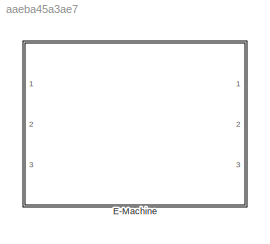
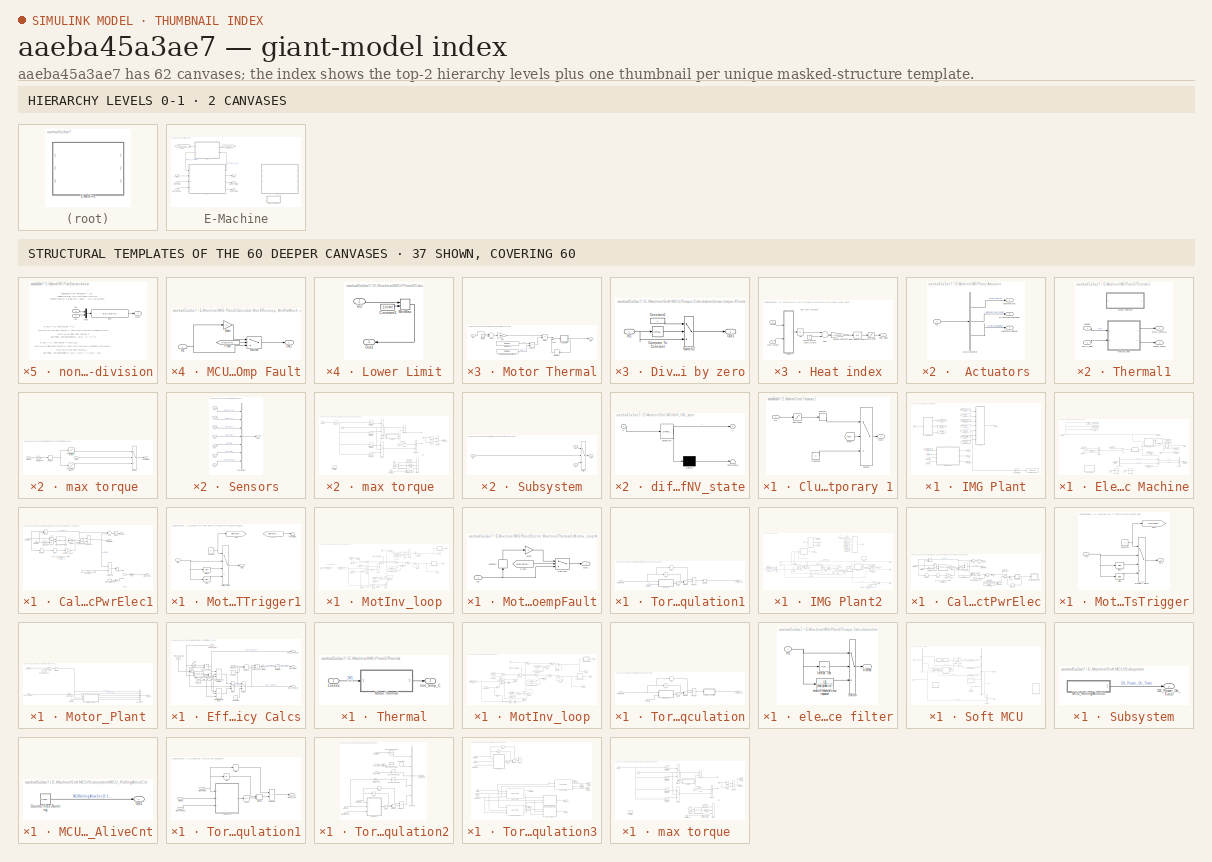
[diagram: thumbnail index - top-2 hierarchy levels (2 canvases) + 37 structural-template representatives of the remaining 60 canvases]
MODEL slx_aaeba45a3ae7
KIND library
CONFIG AbsTol = auto
CONFIG EnableMultiTasking = off
CONFIG FixedStep = auto
CONFIG MaxStep = auto
CONFIG MinStep = auto
CONFIG RelTol = 1e-3
CONFIG SampleTimeConstraint = Unconstrained
CONFIG Solver = VariableStepAuto
CONFIG SolverName = VariableStepAuto
CONFIG StartTime = 0.0
CONFIG StopTime = 10.0
BLOCK [SubSystem] E-Machine
  Ports = [3, 3]
  RequestExecContextInheritance = off
  Variant = off
BLOCK [SubSystem] E-Machine/Clutch Temporary 1
  Commented = on
  Ports = [1, 1]
  RequestExecContextInheritance = off
  Variant = off
BLOCK [Constant] E-Machine/Clutch Temporary 1/Constant
  Value = 0
BLOCK [From] E-Machine/Clutch Temporary 1/From
  GotoTag = cltch
  TagVisibility = global
BLOCK [Inport] E-Machine/Clutch Temporary 1/In1
  IconDisplay = Port number
BLOCK [Memory] E-Machine/Clutch Temporary 1/Memory
BLOCK [Outport] E-Machine/Clutch Temporary 1/Out1
  IconDisplay = Port number
BLOCK [Saturate] E-Machine/Clutch Temporary 1/Saturation
  InputPortMap = u0
  LowerLimit = 0
  Ports = [1, 1]
  UpperLimit = inf
BLOCK [Switch] E-Machine/Clutch Temporary 1/Switch
  Criteria = u2 > Threshold
  InputSameDT = off
  SaturateOnIntegerOverflow = off
BLOCK [From] E-Machine/From14
  GotoTag = HCU_to_HV_CAN
  TagVisibility = global
BLOCK [Goto] E-Machine/Goto5
  GotoTag = MCU_to_HCU
  TagVisibility = global
BLOCK [SubSystem] E-Machine/IMG Plant
  Ports = [4, 4]
  RequestExecContextInheritance = off
  Variant = off
BLOCK [SubSystem] E-Machine/IMG Plant/ Actuators
  Ports = [1, 3]
  RequestExecContextInheritance = off
  Variant = off
BLOCK [BusSelector] E-Machine/IMG Plant/ Actuators/Bus Selector
  OutputAsBus = off
  OutputSignals = MotTrqCmd,Direction_Command,InverterEnabled
  Ports = [1, 3]
BLOCK [Outport] E-Machine/IMG Plant/ Actuators/DirectionCommand
  IconDisplay = Port number
  Port = 2
BLOCK [Inport] E-Machine/IMG Plant/ Actuators/In1
  IconDisplay = Port number
BLOCK [Outport] E-Machine/IMG Plant/ Actuators/InverterEnabled
  IconDisplay = Port number
  Port = 3
BLOCK [Outport] E-Machine/IMG Plant/ Actuators/MotTrqCmd
  IconDisplay = Port number
BLOCK [SubSystem] E-Machine/IMG Plant/Electric Machine
  Ports = [4, 3]
  RequestExecContextInheritance = off
  Variant = off
BLOCK [BusCreator] E-Machine/IMG Plant/Electric Machine/Bus Creator1
  DisplayOption = bar
  InheritFromInputs = on
  Inputs = 2
  Ports = [2, 1]
BLOCK [BusSelector] E-Machine/IMG Plant/Electric Machine/Bus Selector1
  OutputAsBus = off
  OutputSignals = Motor Torque In,Motor Inertia In
  Ports = [1, 2]
BLOCK [SubSystem] E-Machine/IMG Plant/Electric Machine/Calculate Mot Efficiency, MotPwrMech, and, MotPwrElec1
  Ports = [2, 3]
  RequestExecContextInheritance = off
  Variant = off
BLOCK [Gain] E-Machine/IMG Plant/Electric Machine/Calculate Mot Efficiency, MotPwrMech, and, MotPwrElec1/-1
  Gain = 8
  OutDataTypeStr = Inherit: Inherit via internal rule
  ParamDataTypeStr = Inherit: Inherit via internal rule
  SaturateOnIntegerOverflow = off
BLOCK [Gain] E-Machine/IMG Plant/Electric Machine/Calculate Mot Efficiency, MotPwrMech, and, MotPwrElec1/-1 when + 1 when - 
  Gain = -1
  OutDataTypeStr = Inherit: Inherit via internal rule
  ParamDataTypeStr = Inherit: Inherit via internal rule
  SaturateOnIntegerOverflow = off
BLOCK [Gain] E-Machine/IMG Plant/Electric Machine/Calculate Mot Efficiency, MotPwrMech, and, MotPwrElec1/-2
  Gain = tloop
  OutDataTypeStr = Inherit: Inherit via internal rule
  ParamDataTypeStr = Inherit: Inherit via internal rule
  SaturateOnIntegerOverflow = off
BLOCK [Lookup_n-D] E-Machine/IMG Plant/Electric Machine/Calculate Mot Efficiency, MotPwrMech, and, MotPwrElec1/2-D Lookup Table
  BreakpointsForDimension1 = mot.plant.init.eff_trq.idx2_trq
  BreakpointsForDimension2 = mot.plant.init.eff_trq.idx1_spd
  InternalRulePriority = Speed
  Ports = [2, 1]
  RndMeth = Simplest
  Table = mot.plant.init.eff_trq.map
BLOCK [Abs] E-Machine/IMG Plant/Electric Machine/Calculate Mot Efficiency, MotPwrMech, and, MotPwrElec1/Abs
  SaturateOnIntegerOverflow = off
BLOCK [Abs] E-Machine/IMG Plant/Electric Machine/Calculate Mot Efficiency, MotPwrMech, and, MotPwrElec1/Abs1
  SaturateOnIntegerOverflow = off
BLOCK [Abs] E-Machine/IMG Plant/Electric Machine/Calculate Mot Efficiency, MotPwrMech, and, MotPwrElec1/Abs2
  SaturateOnIntegerOverflow = off
BLOCK [Abs] E-Machine/IMG Plant/Electric Machine/Calculate Mot Efficiency, MotPwrMech, and, MotPwrElec1/Abs3
  SaturateOnIntegerOverflow = off
BLOCK [Sum] E-Machine/IMG Plant/Electric Machine/Calculate Mot Efficiency, MotPwrMech, and, MotPwrElec1/Add
  InputSameDT = off
  Inputs = -+
  OutDataTypeStr = Inherit: Inherit via internal rule
  Ports = [2, 1]
  SaturateOnIntegerOverflow = off
BLOCK [Sum] E-Machine/IMG Plant/Electric Machine/Calculate Mot Efficiency, MotPwrMech, and, MotPwrElec1/Add1
  InputSameDT = off
  Inputs = +-
  OutDataTypeStr = Inherit: Inherit via internal rule
  Ports = [2, 1]
  SaturateOnIntegerOverflow = off
BLOCK [Constant] E-Machine/IMG Plant/Electric Machine/Calculate Mot Efficiency, MotPwrMech, and, MotPwrElec1/Constant
  Value = 1-0.8
BLOCK [Gain] E-Machine/IMG Plant/Electric Machine/Calculate Mot Efficiency, MotPwrMech, and, MotPwrElec1/Gain2
  Gain = 1/100
  OutDataTypeStr = Inherit: Inherit via internal rule
  ParamDataTypeStr = Inherit: Inherit via internal rule
  SaturateOnIntegerOverflow = off
BLOCK [Outport] E-Machine/IMG Plant/Electric Machine/Calculate Mot Efficiency, MotPwrMech, and, MotPwrElec1/Losses
  IconDisplay = Port number
BLOCK [Outport] E-Machine/IMG Plant/Electric Machine/Calculate Mot Efficiency, MotPwrMech, and, MotPwrElec1/MCU_Heat
  IconDisplay = Port number
  Port = 2
BLOCK [Constant] E-Machine/IMG Plant/Electric Machine/Calculate Mot Efficiency, MotPwrMech, and, MotPwrElec1/MCU_WEGPmp
  Value = 0
BLOCK [Math] E-Machine/IMG Plant/Electric Machine/Calculate Mot Efficiency, MotPwrMech, and, MotPwrElec1/Math Function1
  Operator = pow
  Ports = [2, 1]
BLOCK [Memory] E-Machine/IMG Plant/Electric Machine/Calculate Mot Efficiency, MotPwrMech, and, MotPwrElec1/Memory
BLOCK [Outport] E-Machine/IMG Plant/Electric Machine/Calculate Mot Efficiency, MotPwrMech, and, MotPwrElec1/MotPwrElec
  IconDisplay = Port number
  Port = 3
BLOCK [Inport] E-Machine/IMG Plant/Electric Machine/Calculate Mot Efficiency, MotPwrMech, and, MotPwrElec1/MotSpd
  IconDisplay = Port number
BLOCK [Inport] E-Machine/IMG Plant/Electric Machine/Calculate Mot Efficiency, MotPwrMech, and, MotPwrElec1/MotTrqAct
  IconDisplay = Port number
  Port = 2
BLOCK [Product] E-Machine/IMG Plant/Electric Machine/Calculate Mot Efficiency, MotPwrMech, and, MotPwrElec1/Product
  InputSameDT = off
  OutDataTypeStr = Inherit: Inherit via internal rule
  Ports = [2, 1]
  RndMeth = Floor
  SaturateOnIntegerOverflow = off
BLOCK [Product] E-Machine/IMG Plant/Electric Machine/Calculate Mot Efficiency, MotPwrMech, and, MotPwrElec1/Product1
  InputSameDT = off
  OutDataTypeStr = Inherit: Inherit via internal rule
  Ports = [2, 1]
  RndMeth = Floor
  SaturateOnIntegerOverflow = off
BLOCK [Product] E-Machine/IMG Plant/Electric Machine/Calculate Mot Efficiency, MotPwrMech, and, MotPwrElec1/Product2
  InputSameDT = off
  OutDataTypeStr = Inherit: Inherit via internal rule
  Ports = [2, 1]
  RndMeth = Floor
  SaturateOnIntegerOverflow = off
BLOCK [Signum] E-Machine/IMG Plant/Electric Machine/Calculate Mot Efficiency, MotPwrMech, and, MotPwrElec1/Sign
BLOCK [Gain] E-Machine/IMG Plant/Electric Machine/Calculate Mot Efficiency, MotPwrMech, and, MotPwrElec1/rad//s to rpm
  Gain = 30/pi
  OutDataTypeStr = Inherit: Inherit via internal rule
  ParamDataTypeStr = Inherit: Inherit via internal rule
  SaturateOnIntegerOverflow = off
BLOCK [Clock] E-Machine/IMG Plant/Electric Machine/Clock1
  Commented = on
BLOCK [Clock] E-Machine/IMG Plant/Electric Machine/Clock8
  Commented = on
BLOCK [Constant] E-Machine/IMG Plant/Electric Machine/Constant3
  Value = 200
BLOCK [From] E-Machine/IMG Plant/Electric Machine/From11
  GotoTag = MotTrqMismatch
BLOCK [From] E-Machine/IMG Plant/Electric Machine/From2
  GotoTag = RegenFault
BLOCK [Goto] E-Machine/IMG Plant/Electric Machine/Goto10
  GotoTag = mot_volt_in
  TagVisibility = global
BLOCK [Goto] E-Machine/IMG Plant/Electric Machine/Goto11
  GotoTag = mot_crr_out
  TagVisibility = global
BLOCK [Goto] E-Machine/IMG Plant/Electric Machine/Goto6
  GotoTag = mot_temp
  TagVisibility = global
BLOCK [Goto] E-Machine/IMG Plant/Electric Machine/Goto7
  GotoTag = mcu_temp
  TagVisibility = global
BLOCK [Goto] E-Machine/IMG Plant/Electric Machine/Goto8
  GotoTag = mot_trq_out
  TagVisibility = global
BLOCK [Goto] E-Machine/IMG Plant/Electric Machine/Goto9
  GotoTag = mot_spd_out
  TagVisibility = global
BLOCK [Constant] E-Machine/IMG Plant/Electric Machine/Inertia (kg-m^2)1
  Value = mot.plant.init.inertia
BLOCK [Outport] E-Machine/IMG Plant/Electric Machine/MotSpdIn1
  IconDisplay = Port number
  Port = 2
BLOCK [Inport] E-Machine/IMG Plant/Electric Machine/MotSpdOut
  IconDisplay = Port number
  Port = 4
BLOCK [Inport] E-Machine/IMG Plant/Electric Machine/MotTrqCmd
  IconDisplay = Port number
BLOCK [SubSystem] E-Machine/IMG Plant/Electric Machine/MotTrqExcessTrigger1
  Ports = [1, 1]
  RequestExecContextInheritance = off
  Variant = off
BLOCK [Bias] E-Machine/IMG Plant/Electric Machine/MotTrqExcessTrigger1/Bias
  Bias = 55
  SaturateOnIntegerOverflow = off
BLOCK [Bias] E-Machine/IMG Plant/Electric Machine/MotTrqExcessTrigger1/Bias1
  Bias = 25
  SaturateOnIntegerOverflow = off
BLOCK [Constant] E-Machine/IMG Plant/Electric Machine/MotTrqExcessTrigger1/Constant
  Value = 0
BLOCK [From] E-Machine/IMG Plant/Electric Machine/MotTrqExcessTrigger1/From
  GotoTag = MotTrqExcessTrig
  TagVisibility = global
BLOCK [Goto] E-Machine/IMG Plant/Electric Machine/MotTrqExcessTrigger1/Goto
  GotoTag = MotTrqExcessTrig
  TagVisibility = global
BLOCK [Inport] E-Machine/IMG Plant/Electric Machine/MotTrqExcessTrigger1/In1
  IconDisplay = Port number
BLOCK [MultiPortSwitch] E-Machine/IMG Plant/Electric Machine/MotTrqExcessTrigger1/Multiport Switch
  DataPortOrder = Zero-based contiguous
  InputSameDT = off
  Ports = [4, 1]
  SaturateOnIntegerOverflow = off
BLOCK [Outport] E-Machine/IMG Plant/Electric Machine/MotTrqExcessTrigger1/Out1
  IconDisplay = Port number
BLOCK [Terminator] E-Machine/IMG Plant/Electric Machine/MotTrqExcessTrigger1/Terminator
BLOCK [Sum] E-Machine/IMG Plant/Electric Machine/Sum2
  IconShape = round
  InputSameDT = off
  Inputs = |++
  OutDataTypeStr = Inherit: Inherit via internal rule
  Ports = [2, 1]
  SaturateOnIntegerOverflow = off
BLOCK [Sum] E-Machine/IMG Plant/Electric Machine/Sum3
  InputSameDT = off
  OutDataTypeStr = Inherit: Inherit via internal rule
  Ports = [2, 1]
  SaturateOnIntegerOverflow = off
BLOCK [Sum] E-Machine/IMG Plant/Electric Machine/Sum4
  InputSameDT = off
  OutDataTypeStr = Inherit: Inherit via internal rule
  Ports = [2, 1]
  SaturateOnIntegerOverflow = off
BLOCK [Sum] E-Machine/IMG Plant/Electric Machine/Sum5
  IconShape = round
  InputSameDT = off
  Inputs = ++|
  OutDataTypeStr = Inherit: Inherit via internal rule
  Ports = [2, 1]
  SaturateOnIntegerOverflow = off
BLOCK [Switch] E-Machine/IMG Plant/Electric Machine/Switch4
  Criteria = u2 > Threshold
  InputSameDT = off
  SaturateOnIntegerOverflow = off
BLOCK [Lookup_n-D] E-Machine/IMG Plant/Electric Machine/TOSS_Data1
  BreakpointsForDimension1 = time
  Commented = on
  InternalRulePriority = Speed
  NumberOfTableDimensions = 1
  Ports = [1, 1]
  RndMeth = Simplest
  Table = EngineTorqueReal
BLOCK [Lookup_n-D] E-Machine/IMG Plant/Electric Machine/TOSS_Data3
  BreakpointsForDimension1 = time
  Commented = on
  InternalRulePriority = Speed
  NumberOfTableDimensions = 1
  Ports = [1, 1]
  RndMeth = Simplest
  Table = motor_Trq
BLOCK [SubSystem] E-Machine/IMG Plant/Electric Machine/Thermal1
  Ports = [2, 2]
  RequestExecContextInheritance = off
  Variant = off
BLOCK [Inport] E-Machine/IMG Plant/Electric Machine/Thermal1/Losses
  IconDisplay = Port number
BLOCK [Inport] E-Machine/IMG Plant/Electric Machine/Thermal1/MCU_heat
  IconDisplay = Port number
  Port = 2
BLOCK [Outport] E-Machine/IMG Plant/Electric Machine/Thermal1/MCU_temp_C
  IconDisplay = Port number
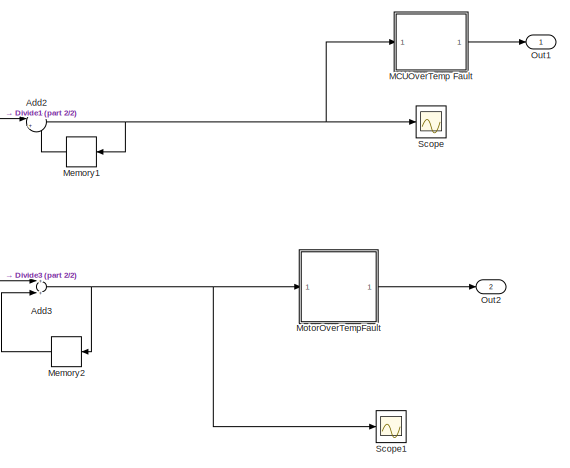
[diagram: E-Machine/IMG Plant/Electric Machine/Thermal1/MotInv_loop - part 1/2, middle right region]
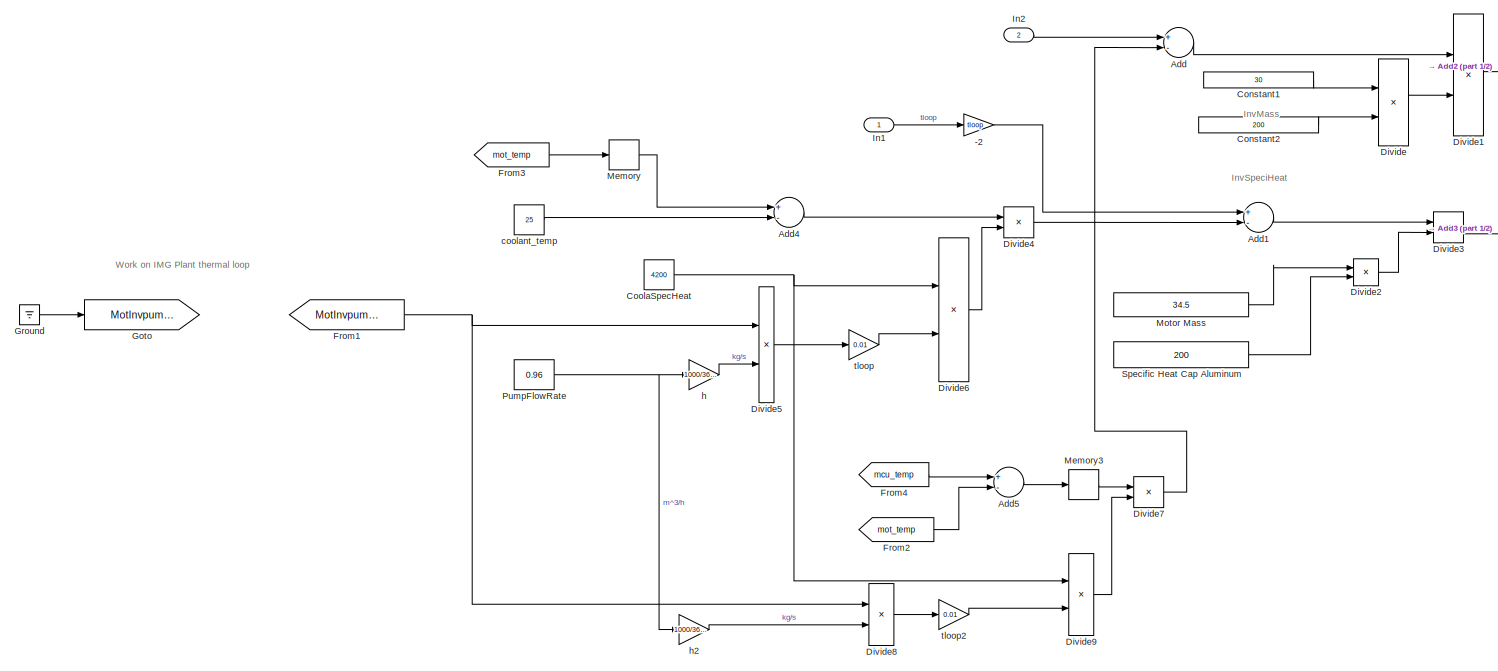
[diagram: E-Machine/IMG Plant/Electric Machine/Thermal1/MotInv_loop - part 2/2, center side, full height]
BLOCK [SubSystem] E-Machine/IMG Plant/Electric Machine/Thermal1/MotInv_loop
  Ports = [2, 2]
  RequestExecContextInheritance = off
  Variant = off
BLOCK [Gain] E-Machine/IMG Plant/Electric Machine/Thermal1/MotInv_loop/-2
  Gain = tloop
  OutDataTypeStr = Inherit: Inherit via internal rule
  ParamDataTypeStr = Inherit: Inherit via internal rule
  SaturateOnIntegerOverflow = off
BLOCK [Sum] E-Machine/IMG Plant/Electric Machine/Thermal1/MotInv_loop/Add
  InputSameDT = off
  Inputs = +-
  OutDataTypeStr = Inherit: Inherit via internal rule
  Ports = [2, 1]
  SaturateOnIntegerOverflow = off
BLOCK [Sum] E-Machine/IMG Plant/Electric Machine/Thermal1/MotInv_loop/Add1
  InputSameDT = off
  Inputs = +-
  OutDataTypeStr = Inherit: Inherit via internal rule
  Ports = [2, 1]
  SaturateOnIntegerOverflow = off
BLOCK [Sum] E-Machine/IMG Plant/Electric Machine/Thermal1/MotInv_loop/Add2
  IconShape = round
  InputSameDT = off
  Inputs = |++
  OutDataTypeStr = Inherit: Inherit via internal rule
  Ports = [2, 1]
  SaturateOnIntegerOverflow = off
BLOCK [Sum] E-Machine/IMG Plant/Electric Machine/Thermal1/MotInv_loop/Add3
  InputSameDT = off
  OutDataTypeStr = Inherit: Inherit via internal rule
  Ports = [2, 1]
  SaturateOnIntegerOverflow = off
BLOCK [Sum] E-Machine/IMG Plant/Electric Machine/Thermal1/MotInv_loop/Add4
  InputSameDT = off
  Inputs = +-
  OutDataTypeStr = Inherit: Inherit via internal rule
  Ports = [2, 1]
  SaturateOnIntegerOverflow = off
BLOCK [Sum] E-Machine/IMG Plant/Electric Machine/Thermal1/MotInv_loop/Add5
  InputSameDT = off
  Inputs = +-
  OutDataTypeStr = Inherit: Inherit via internal rule
  Ports = [2, 1]
  SaturateOnIntegerOverflow = off
BLOCK [Constant] E-Machine/IMG Plant/Electric Machine/Thermal1/MotInv_loop/Constant1
  Value = 30
BLOCK [Constant] E-Machine/IMG Plant/Electric Machine/Thermal1/MotInv_loop/Constant2
  Value = 200
BLOCK [Constant] E-Machine/IMG Plant/Electric Machine/Thermal1/MotInv_loop/CoolaSpecHeat
  Value = 4200
BLOCK [Product] E-Machine/IMG Plant/Electric Machine/Thermal1/MotInv_loop/Divide
  InputSameDT = off
  Inputs = **
  OutDataTypeStr = Inherit: Inherit via internal rule
  Ports = [2, 1]
  RndMeth = Floor
  SaturateOnIntegerOverflow = off
BLOCK [Product] E-Machine/IMG Plant/Electric Machine/Thermal1/MotInv_loop/Divide1
  InputSameDT = off
  Inputs = */
  OutDataTypeStr = Inherit: Inherit via internal rule
  Ports = [2, 1]
  RndMeth = Floor
  SaturateOnIntegerOverflow = off
BLOCK [Product] E-Machine/IMG Plant/Electric Machine/Thermal1/MotInv_loop/Divide2
  InputSameDT = off
  Inputs = **
  OutDataTypeStr = Inherit: Inherit via internal rule
  Ports = [2, 1]
  RndMeth = Floor
  SaturateOnIntegerOverflow = off
BLOCK [Product] E-Machine/IMG Plant/Electric Machine/Thermal1/MotInv_loop/Divide3
  InputSameDT = off
  Inputs = */
  OutDataTypeStr = Inherit: Inherit via internal rule
  Ports = [2, 1]
  RndMeth = Floor
  SaturateOnIntegerOverflow = off
BLOCK [Product] E-Machine/IMG Plant/Electric Machine/Thermal1/MotInv_loop/Divide4
  InputSameDT = off
  Inputs = **
  OutDataTypeStr = Inherit: Inherit via internal rule
  Ports = [2, 1]
  RndMeth = Floor
  SaturateOnIntegerOverflow = off
BLOCK [Product] E-Machine/IMG Plant/Electric Machine/Thermal1/MotInv_loop/Divide5
  InputSameDT = off
  Inputs = **
  OutDataTypeStr = Inherit: Inherit via internal rule
  Ports = [2, 1]
  RndMeth = Floor
  SaturateOnIntegerOverflow = off
BLOCK [Product] E-Machine/IMG Plant/Electric Machine/Thermal1/MotInv_loop/Divide6
  InputSameDT = off
  Inputs = **
  OutDataTypeStr = Inherit: Inherit via internal rule
  Ports = [2, 1]
  RndMeth = Floor
  SaturateOnIntegerOverflow = off
BLOCK [Product] E-Machine/IMG Plant/Electric Machine/Thermal1/MotInv_loop/Divide7
  InputSameDT = off
  Inputs = **
  OutDataTypeStr = Inherit: Inherit via internal rule
  Ports = [2, 1]
  RndMeth = Floor
  SaturateOnIntegerOverflow = off
BLOCK [Product] E-Machine/IMG Plant/Electric Machine/Thermal1/MotInv_loop/Divide8
  InputSameDT = off
  Inputs = **
  OutDataTypeStr = Inherit: Inherit via internal rule
  Ports = [2, 1]
  RndMeth = Floor
  SaturateOnIntegerOverflow = off
BLOCK [Product] E-Machine/IMG Plant/Electric Machine/Thermal1/MotInv_loop/Divide9
  InputSameDT = off
  Inputs = **
  OutDataTypeStr = Inherit: Inherit via internal rule
  Ports = [2, 1]
  RndMeth = Floor
  SaturateOnIntegerOverflow = off
BLOCK [From] E-Machine/IMG Plant/Electric Machine/Thermal1/MotInv_loop/From1
  GotoTag = MotInvpump_control
BLOCK [From] E-Machine/IMG Plant/Electric Machine/Thermal1/MotInv_loop/From2
  GotoTag = mot_temp
  TagVisibility = global
BLOCK [From] E-Machine/IMG Plant/Electric Machine/Thermal1/MotInv_loop/From3
  GotoTag = mot_temp
  TagVisibility = global
BLOCK [From] E-Machine/IMG Plant/Electric Machine/Thermal1/MotInv_loop/From4
  GotoTag = mcu_temp
  TagVisibility = global
BLOCK [Goto] E-Machine/IMG Plant/Electric Machine/Thermal1/MotInv_loop/Goto
  GotoTag = MotInvpump_control
BLOCK [Ground] E-Machine/IMG Plant/Electric Machine/Thermal1/MotInv_loop/Ground
BLOCK [Inport] E-Machine/IMG Plant/Electric Machine/Thermal1/MotInv_loop/In1
  IconDisplay = Port number
BLOCK [Inport] E-Machine/IMG Plant/Electric Machine/Thermal1/MotInv_loop/In2
  IconDisplay = Port number
  Port = 2
BLOCK [SubSystem] E-Machine/IMG Plant/Electric Machine/Thermal1/MotInv_loop/MCUOverTemp Fault
  Ports = [1, 1]
  RequestExecContextInheritance = off
  Variant = off
BLOCK [From] E-Machine/IMG Plant/Electric Machine/Thermal1/MotInv_loop/MCUOverTemp Fault/From
  GotoTag = MCUOverTemp
BLOCK [Gain] E-Machine/IMG Plant/Electric Machine/Thermal1/MotInv_loop/MCUOverTemp Fault/Gain
  Gain = 3
  OutDataTypeStr = Inherit: Inherit via internal rule
  ParamDataTypeStr = Inherit: Inherit via internal rule
  SaturateOnIntegerOverflow = off
BLOCK [Inport] E-Machine/IMG Plant/Electric Machine/Thermal1/MotInv_loop/MCUOverTemp Fault/In1
  IconDisplay = Port number
BLOCK [Outport] E-Machine/IMG Plant/Electric Machine/Thermal1/MotInv_loop/MCUOverTemp Fault/Out1
  IconDisplay = Port number
BLOCK [Switch] E-Machine/IMG Plant/Electric Machine/Thermal1/MotInv_loop/MCUOverTemp Fault/Switch
  InputSameDT = off
  SaturateOnIntegerOverflow = off
  Threshold = 1
BLOCK [Memory] E-Machine/IMG Plant/Electric Machine/Thermal1/MotInv_loop/Memory
BLOCK [Memory] E-Machine/IMG Plant/Electric Machine/Thermal1/MotInv_loop/Memory1
  InitialCondition = 25
BLOCK [Memory] E-Machine/IMG Plant/Electric Machine/Thermal1/MotInv_loop/Memory2
  InitialCondition = 25
BLOCK [Memory] E-Machine/IMG Plant/Electric Machine/Thermal1/MotInv_loop/Memory3
BLOCK [Constant] E-Machine/IMG Plant/Electric Machine/Thermal1/MotInv_loop/Motor Mass
  Value = 34.5
BLOCK [SubSystem] E-Machine/IMG Plant/Electric Machine/Thermal1/MotInv_loop/MotorOverTempFault
  Ports = [1, 1]
  RequestExecContextInheritance = off
  Variant = off
BLOCK [From] E-Machine/IMG Plant/Electric Machine/Thermal1/MotInv_loop/MotorOverTempFault/From
  GotoTag = MotOverTemp
BLOCK [Gain] E-Machine/IMG Plant/Electric Machine/Thermal1/MotInv_loop/MotorOverTempFault/Gain
  Gain = 2
  OutDataTypeStr = Inherit: Inherit via internal rule
  ParamDataTypeStr = Inherit: Inherit via internal rule
  SaturateOnIntegerOverflow = off
BLOCK [Inport] E-Machine/IMG Plant/Electric Machine/Thermal1/MotInv_loop/MotorOverTempFault/In1
  IconDisplay = Port number
BLOCK [Memory] E-Machine/IMG Plant/Electric Machine/Thermal1/MotInv_loop/MotorOverTempFault/Memory
BLOCK [Outport] E-Machine/IMG Plant/Electric Machine/Thermal1/MotInv_loop/MotorOverTempFault/Out1
  IconDisplay = Port number
BLOCK [Switch] E-Machine/IMG Plant/Electric Machine/Thermal1/MotInv_loop/MotorOverTempFault/Switch1
  InputSameDT = off
  SaturateOnIntegerOverflow = off
  Threshold = 1
BLOCK [Outport] E-Machine/IMG Plant/Electric Machine/Thermal1/MotInv_loop/Out1
  IconDisplay = Port number
BLOCK [Outport] E-Machine/IMG Plant/Electric Machine/Thermal1/MotInv_loop/Out2
  IconDisplay = Port number
  Port = 2
BLOCK [Constant] E-Machine/IMG Plant/Electric Machine/Thermal1/MotInv_loop/PumpFlowRate
  Value = 0.96
BLOCK [Scope] E-Machine/IMG Plant/Electric Machine/Thermal1/MotInv_loop/Scope
  NumInputPorts = 1
  Ports = [1]
  ScopeSpecificationString = Simulink.scopes.TimeScopeBlockCfg('CurrentConfiguration', extmgr.ConfigurationSet(extmgr.Configuration('Core','General UI',true),extmgr.Configuration('Core','Source UI',true),extmgr.Configuration('Sources','WiredSimulink',true,'DataLoggingLimitDataPoints',true,'DataLoggingSaveFormat','Array','DataLoggingDecimation','1','DataLoggingDecimateData',true),extmgr.Configuration('Visuals','Time Domain',tr...<+1660ch>
BLOCK [Scope] E-Machine/IMG Plant/Electric Machine/Thermal1/MotInv_loop/Scope1
  NumInputPorts = 1
  Ports = [1]
  ScopeSpecificationString = Simulink.scopes.TimeScopeBlockCfg('CurrentConfiguration', extmgr.ConfigurationSet(extmgr.Configuration('Core','General UI',true),extmgr.Configuration('Core','Source UI',true),extmgr.Configuration('Sources','WiredSimulink',true,'DataLoggingLimitDataPoints',true,'DataLoggingSaveFormat','Array','DataLoggingDecimation','1','DataLoggingDecimateData',true),extmgr.Configuration('Visuals','Time Domain',tr...<+1660ch>
BLOCK [Constant] E-Machine/IMG Plant/Electric Machine/Thermal1/MotInv_loop/Specific Heat Cap Aluminum
  Value = 200
BLOCK [Constant] E-Machine/IMG Plant/Electric Machine/Thermal1/MotInv_loop/coolant_temp
  Value = 25
BLOCK [Gain] E-Machine/IMG Plant/Electric Machine/Thermal1/MotInv_loop/h
  Gain = 1000/3600
  OutDataTypeStr = Inherit: Inherit via internal rule
  ParamDataTypeStr = Inherit: Inherit via internal rule
  SaturateOnIntegerOverflow = off
BLOCK [Gain] E-Machine/IMG Plant/Electric Machine/Thermal1/MotInv_loop/h2
  Gain = 1000/3600
  OutDataTypeStr = Inherit: Inherit via internal rule
  ParamDataTypeStr = Inherit: Inherit via internal rule
  SaturateOnIntegerOverflow = off
BLOCK [Gain] E-Machine/IMG Plant/Electric Machine/Thermal1/MotInv_loop/tloop
  Gain = 0.01
  OutDataTypeStr = Inherit: Inherit via internal rule
  ParamDataTypeStr = Inherit: Inherit via internal rule
  SaturateOnIntegerOverflow = off
BLOCK [Gain] E-Machine/IMG Plant/Electric Machine/Thermal1/MotInv_loop/tloop2
  Gain = 0.01
  OutDataTypeStr = Inherit: Inherit via internal rule
  ParamDataTypeStr = Inherit: Inherit via internal rule
  SaturateOnIntegerOverflow = off
BLOCK [SubSystem] E-Machine/IMG Plant/Electric Machine/Thermal1/Motor Thermal
  Commented = on
  Ports = [1, 1]
  RequestExecContextInheritance = off
  Variant = off
BLOCK [Sum] E-Machine/IMG Plant/Electric Machine/Thermal1/Motor Thermal/Add1
  InputSameDT = off
  Inputs = +-
  OutDataTypeStr = Inherit: Inherit via internal rule
  Ports = [2, 1]
  SaturateOnIntegerOverflow = off
BLOCK [Sum] E-Machine/IMG Plant/Electric Machine/Thermal1/Motor Thermal/Add2
  InputSameDT = off
  OutDataTypeStr = Inherit: Inherit via internal rule
  Ports = [2, 1]
  SaturateOnIntegerOverflow = off
BLOCK [Product] E-Machine/IMG Plant/Electric Machine/Thermal1/Motor Thermal/Divide
  InputSameDT = off
  Inputs = */
  OutDataTypeStr = Inherit: Inherit via internal rule
  Ports = [2, 1]
  RndMeth = Floor
  SaturateOnIntegerOverflow = off
BLOCK [Inport] E-Machine/IMG Plant/Electric Machine/Thermal1/Motor Thermal/In1
  IconDisplay = Port number
BLOCK [SubSystem] E-Machine/IMG Plant/Electric Machine/Thermal1/Motor Thermal/Lower Limit
  Ports = [1, 1]
  RequestExecContextInheritance = off
  Variant = off
BLOCK [Constant] E-Machine/IMG Plant/Electric Machine/Thermal1/Motor Thermal/Lower Limit/Constant3
  Value = Lolimit
BLOCK [Inport] E-Machine/IMG Plant/Electric Machine/Thermal1/Motor Thermal/Lower Limit/In1
  IconDisplay = Port number
BLOCK [MinMax] E-Machine/IMG Plant/Electric Machine/Thermal1/Motor Thermal/Lower Limit/MinMax
  Function = max
  InputSameDT = off
  Inputs = 2
  Ports = [2, 1]
  SaturateOnIntegerOverflow = off
BLOCK [Outport] E-Machine/IMG Plant/Electric Machine/Thermal1/Motor Thermal/Lower Limit/Out1
  IconDisplay = Port number
BLOCK [Memory] E-Machine/IMG Plant/Electric Machine/Thermal1/Motor Thermal/Memory1
BLOCK [Constant] E-Machine/IMG Plant/Electric Machine/Thermal1/Motor Thermal/Motor Mass
  Value = mot.plant.init.motor_mass
BLOCK [Outport] E-Machine/IMG Plant/Electric Machine/Thermal1/Motor Thermal/Out1
  IconDisplay = Port number
BLOCK [Product] E-Machine/IMG Plant/Electric Machine/Thermal1/Motor Thermal/Product
  InputSameDT = off
  OutDataTypeStr = Inherit: Inherit via internal rule
  Ports = [2, 1]
  SaturateOnIntegerOverflow = off
BLOCK [Constant] E-Machine/IMG Plant/Electric Machine/Thermal1/Motor Thermal/Pump 
  Value = 0
BLOCK [Constant] E-Machine/IMG Plant/Electric Machine/Thermal1/Motor Thermal/Specific Heat Cap Aluminum
  Value = mot.plant.init.specific_heat
BLOCK [Gain] E-Machine/IMG Plant/Electric Machine/Thermal1/Motor Thermal/tloop
  Gain = tloop
  OutDataTypeStr = Inherit: Inherit via internal rule
  ParamDataTypeStr = Inherit: Inherit via internal rule
  SaturateOnIntegerOverflow = off
BLOCK [Outport] E-Machine/IMG Plant/Electric Machine/Thermal1/motor_temp
  IconDisplay = Port number
  Port = 2
BLOCK [ToWorkspace] E-Machine/IMG Plant/Electric Machine/To Workspace3
  Decimation = WORKSPACE_DECIMATION
  MaxDataPoints = inf
  Ports = [1]
  SampleTime = -1
  VariableName = mot_spd_out_RPM1
BLOCK [ToWorkspace] E-Machine/IMG Plant/Electric Machine/To Workspace5
  Decimation = WORKSPACE_DECIMATION
  MaxDataPoints = inf
  Ports = [1]
  SampleTime = -1
  VariableName = mot_spd_out1
BLOCK [SubSystem] E-Machine/IMG Plant/Electric Machine/Torque Calculation1
  Commented = on
  Ports = [2, 1]
  RequestExecContextInheritance = off
  Variant = off
BLOCK [Abs] E-Machine/IMG Plant/Electric Machine/Torque Calculation1/Abs
  SaturateOnIntegerOverflow = off
BLOCK [Abs] E-Machine/IMG Plant/Electric Machine/Torque Calculation1/Abs1
  SaturateOnIntegerOverflow = off
BLOCK [Memory] E-Machine/IMG Plant/Electric Machine/Torque Calculation1/Memory
BLOCK [MinMax] E-Machine/IMG Plant/Electric Machine/Torque Calculation1/MinMax
  InputSameDT = off
  Inputs = 2
  Ports = [2, 1]
  SaturateOnIntegerOverflow = off
BLOCK [Inport] E-Machine/IMG Plant/Electric Machine/Torque Calculation1/MotSpd
  IconDisplay = Port number
BLOCK [Inport] E-Machine/IMG Plant/Electric Machine/Torque Calculation1/MotTrqCmd
  IconDisplay = Port number
  Port = 2
BLOCK [Product] E-Machine/IMG Plant/Electric Machine/Torque Calculation1/Product
  InputSameDT = off
  OutDataTypeStr = Inherit: Inherit via internal rule
  Ports = [2, 1]
  RndMeth = Floor
  SaturateOnIntegerOverflow = off
BLOCK [Signum] E-Machine/IMG Plant/Electric Machine/Torque Calculation1/Sign
BLOCK [SubSystem] E-Machine/IMG Plant/Electric Machine/Torque Calculation1/max torque 
  Ports = [2, 1]
  RequestExecContextInheritance = off
  Variant = off
BLOCK [Memory] E-Machine/IMG Plant/Electric Machine/Torque Calculation1/max torque /Memory
BLOCK [Lookup] E-Machine/IMG Plant/Electric Machine/Torque Calculation1/max torque /Peak trq max - Motoring
  InputValues = mot.plant.init.regen.trq_max.idx1_spd
  LookUpMeth = Interpolation-Use End Values
  Table = mot.plant.init.motor.trq_max.map
BLOCK [Lookup] E-Machine/IMG Plant/Electric Machine/Torque Calculation1/max torque /Peak trq max - Regen
  InputValues = mot.plant.init.regen.trq_max.idx1_spd
  LookUpMeth = Interpolation-Use End Values
  Table = mot.plant.init.regen.trq_max.map
BLOCK [Switch] E-Machine/IMG Plant/Electric Machine/Torque Calculation1/max torque /Switch1
  InputSameDT = off
BLOCK [Inport] E-Machine/IMG Plant/Electric Machine/Torque Calculation1/max torque /cmd
  IconDisplay = Port number
BLOCK [Outport] E-Machine/IMG Plant/Electric Machine/Torque Calculation1/max torque /max torque
  IconDisplay = Port number
BLOCK [Gain] E-Machine/IMG Plant/Electric Machine/Torque Calculation1/max torque /rad//s  to RPM
  Gain = 30/pi
  OutDataTypeStr = Inherit: Inherit via internal rule
  ParamDataTypeStr = Inherit: Inherit via internal rule
  SaturateOnIntegerOverflow = off
BLOCK [Inport] E-Machine/IMG Plant/Electric Machine/Torque Calculation1/max torque /speed
  IconDisplay = Port number
  Port = 2
BLOCK [Outport] E-Machine/IMG Plant/Electric Machine/Torque Calculation1/mot_trq_out
  IconDisplay = Port number
BLOCK [Outport] E-Machine/IMG Plant/Electric Machine/current
  IconDisplay = Port number
BLOCK [Inport] E-Machine/IMG Plant/Electric Machine/mot_trq_in mot_inertia_in
  IconDisplay = Port number
  Port = 3
BLOCK [Outport] E-Machine/IMG Plant/Electric Machine/mot_trq_out mot_inertia_out2
  IconDisplay = Port number
  Port = 3
BLOCK [SubSystem] E-Machine/IMG Plant/Electric Machine/non-zero division1
  Ports = [2, 1]
  RequestExecContextInheritance = off
  Variant = off
BLOCK [Fcn] E-Machine/IMG Plant/Electric Machine/non-zero division1/Fcn
  Expr = u[1]/(u[2]+(u[2]==0))*(u[2]!=0)
BLOCK [Inport] E-Machine/IMG Plant/Electric Machine/non-zero division1/In1
  IconDisplay = Port number
BLOCK [Inport] E-Machine/IMG Plant/Electric Machine/non-zero division1/In2
  IconDisplay = Port number
  Port = 2
BLOCK [Mux] E-Machine/IMG Plant/Electric Machine/non-zero division1/Mux
  DisplayOption = bar
  Inputs = 2
  Ports = [2, 1]
BLOCK [Outport] E-Machine/IMG Plant/Electric Machine/non-zero division1/Out1
  IconDisplay = Port number
BLOCK [Gain] E-Machine/IMG Plant/Electric Machine/rad//s to RPM1
  Gain = 30/pi
  OutDataTypeStr = Inherit: Inherit via internal rule
  ParamDataTypeStr = Inherit: Inherit via internal rule
  SaturateOnIntegerOverflow = off
BLOCK [Inport] E-Machine/IMG Plant/Electric Machine/voltage
  IconDisplay = Port number
  Port = 2
BLOCK [From] E-Machine/IMG Plant/From
  GotoTag = MotTrqCmd
  TagVisibility = global
BLOCK [From] E-Machine/IMG Plant/From1
  GotoTag = clt_plant_spd_in
BLOCK [From] E-Machine/IMG Plant/From10
  GotoTag = mot_temp
  TagVisibility = global
BLOCK [From] E-Machine/IMG Plant/From3
  GotoTag = mcu_temp
  TagVisibility = global
BLOCK [From] E-Machine/IMG Plant/From5
  GotoTag = mot_trq_out
  TagVisibility = global
BLOCK [From] E-Machine/IMG Plant/From6
  GotoTag = mot_spd_out
  TagVisibility = global
BLOCK [From] E-Machine/IMG Plant/From8
  GotoTag = mot_crr_out
  TagVisibility = global
BLOCK [From] E-Machine/IMG Plant/From9
  GotoTag = mot_volt_in
  TagVisibility = global
BLOCK [Goto] E-Machine/IMG Plant/Goto1
  GotoTag = MotTrqCmd
  TagVisibility = global
BLOCK [Goto] E-Machine/IMG Plant/Goto2
  GotoTag = DirectionCommand
  TagVisibility = global
BLOCK [Goto] E-Machine/IMG Plant/Goto4
  GotoTag = InverterEnabled
  TagVisibility = global
BLOCK [Inport] E-Machine/IMG Plant/In1 
  IconDisplay = Port number
BLOCK [Inport] E-Machine/IMG Plant/MotShaftIn
  IconDisplay = Port number
  Port = 3
BLOCK [Outport] E-Machine/IMG Plant/MotShaftOut
  IconDisplay = Port number
  Port = 3
BLOCK [Outport] E-Machine/IMG Plant/Out1
  IconDisplay = Port number
BLOCK [RateTransition] E-Machine/IMG Plant/Rate Transition7
  OutPortSampleTime = 1
BLOCK [SubSystem] E-Machine/IMG Plant/Sensors
  Ports = [7, 1]
  RequestExecContextInheritance = off
  Variant = off
BLOCK [BusCreator] E-Machine/IMG Plant/Sensors/Bus Creator
  DisplayOption = bar
  InheritFromInputs = on
  Inputs = 7
  Ports = [7, 1]
BLOCK [Inport] E-Machine/IMG Plant/Sensors/In1
  IconDisplay = Port number
  Port = 6
BLOCK [Inport] E-Machine/IMG Plant/Sensors/In2
  IconDisplay = Port number
BLOCK [Inport] E-Machine/IMG Plant/Sensors/In3
  IconDisplay = Port number
  Port = 2
BLOCK [Inport] E-Machine/IMG Plant/Sensors/In4
  IconDisplay = Port number
  Port = 3
BLOCK [Inport] E-Machine/IMG Plant/Sensors/In5
  IconDisplay = Port number
  Port = 4
BLOCK [Inport] E-Machine/IMG Plant/Sensors/In6
  IconDisplay = Port number
  Port = 5
BLOCK [Inport] E-Machine/IMG Plant/Sensors/In7
  IconDisplay = Port number
  Port = 7
BLOCK [Outport] E-Machine/IMG Plant/Sensors/Out1
  IconDisplay = Port number
BLOCK [Outport] E-Machine/IMG Plant/SpdIn
  IconDisplay = Port number
  Port = 4
BLOCK [Inport] E-Machine/IMG Plant/SpdOut
  IconDisplay = Port number
  Port = 4
BLOCK [ToWorkspace] E-Machine/IMG Plant/To Workspace1
  FixptAsFi = on
  MaxDataPoints = inf
  Ports = [1]
  SampleTime = -1
  Save2DSignal = 3-D array (concatenate along third dimension)
  VariableName = INV_ElectricMachineTemperature
BLOCK [Outport] E-Machine/IMG Plant/current
  IconDisplay = Port number
  Port = 2
BLOCK [Inport] E-Machine/IMG Plant/voltage
  IconDisplay = Port number
  Port = 2
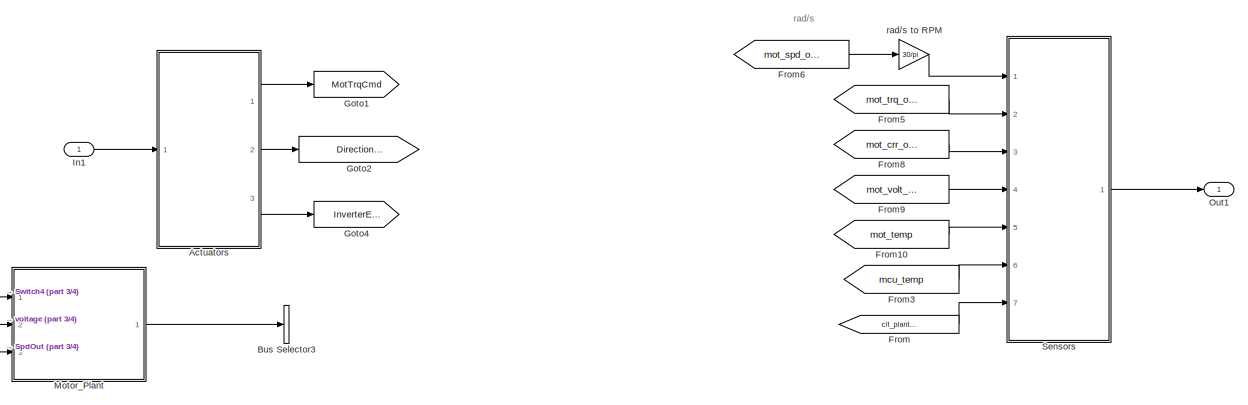
[diagram: E-Machine/IMG Plant2 - part 1/4, top center region]
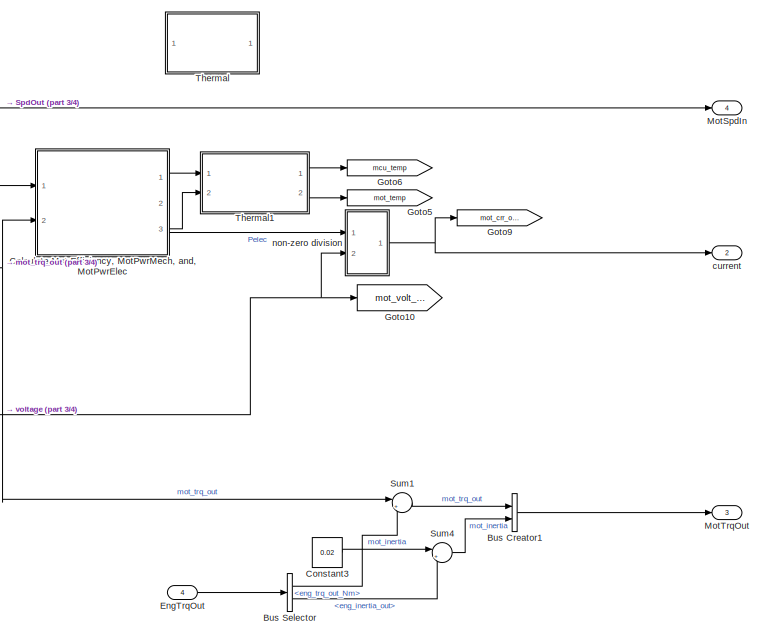
[diagram: E-Machine/IMG Plant2 - part 2/4, bottom right region]
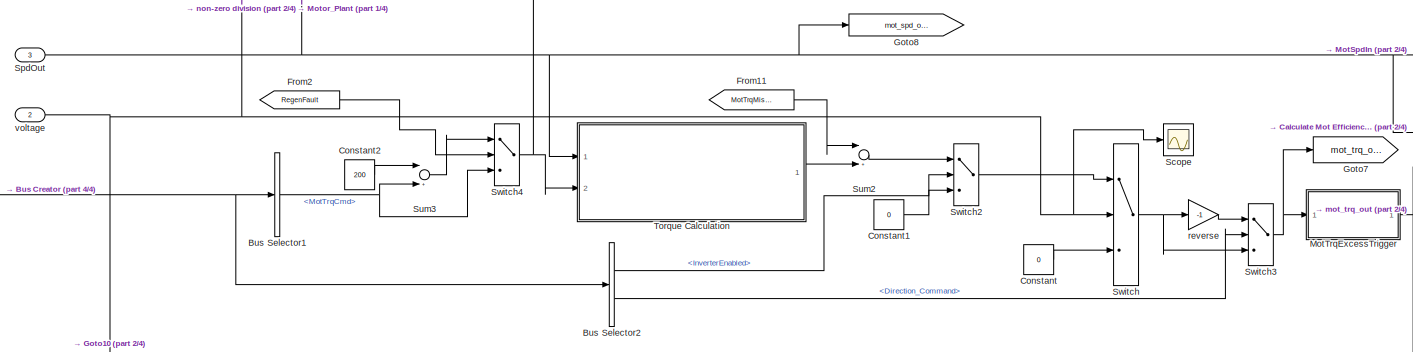
[diagram: E-Machine/IMG Plant2 - part 3/4, central region]
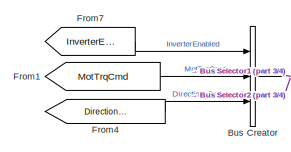
[diagram: E-Machine/IMG Plant2 - part 4/4, middle left region]
BLOCK [SubSystem] E-Machine/IMG Plant2
  Commented = on
  Ports = [4, 4]
  RequestExecContextInheritance = off
  Variant = off
BLOCK [SubSystem] E-Machine/IMG Plant2/ Actuators
  Ports = [1, 3]
  RequestExecContextInheritance = off
  Variant = off
BLOCK [BusSelector] E-Machine/IMG Plant2/ Actuators/Bus Selector
  OutputAsBus = off
  OutputSignals = MotTrqCmd,Direction_Command,InverterEnabled
  Ports = [1, 3]
BLOCK [Inport] E-Machine/IMG Plant2/ Actuators/In1
  IconDisplay = Port number
BLOCK [Outport] E-Machine/IMG Plant2/ Actuators/Out2
  IconDisplay = Port number
BLOCK [Outport] E-Machine/IMG Plant2/ Actuators/Out3
  IconDisplay = Port number
  Port = 2
BLOCK [Outport] E-Machine/IMG Plant2/ Actuators/Out4
  IconDisplay = Port number
  Port = 3
BLOCK [BusCreator] E-Machine/IMG Plant2/Bus Creator
  DisplayOption = bar
  InheritFromInputs = on
  Inputs = 3
  Ports = [3, 1]
BLOCK [BusCreator] E-Machine/IMG Plant2/Bus Creator1
  DisplayOption = bar
  InheritFromInputs = on
  Inputs = 2
  Ports = [2, 1]
BLOCK [BusSelector] E-Machine/IMG Plant2/Bus Selector
  OutputAsBus = off
  OutputSignals = eng_trq_out_Nm,eng_inertia_out
  Ports = [1, 2]
BLOCK [BusSelector] E-Machine/IMG Plant2/Bus Selector1
  OutputAsBus = off
  OutputSignals = MotTrqCmd
  Ports = [1, 1]
BLOCK [BusSelector] E-Machine/IMG Plant2/Bus Selector2
  OutputAsBus = off
  OutputSignals = InverterEnabled,Direction_Command
  Ports = [1, 2]
BLOCK [BusSelector] E-Machine/IMG Plant2/Bus Selector3
  Commented = on
  OutputAsBus = off
  OutputSignals = Mot_current_A
  Ports = [1, 1]
BLOCK [SubSystem] E-Machine/IMG Plant2/Calculate Mot Efficiency, MotPwrMech, and, MotPwrElec
  Ports = [2, 3]
  RequestExecContextInheritance = off
  Variant = off
BLOCK [Gain] E-Machine/IMG Plant2/Calculate Mot Efficiency, MotPwrMech, and, MotPwrElec/-1
  Gain = 8
  OutDataTypeStr = Inherit: Inherit via internal rule
  ParamDataTypeStr = Inherit: Inherit via internal rule
  SaturateOnIntegerOverflow = off
BLOCK [Gain] E-Machine/IMG Plant2/Calculate Mot Efficiency, MotPwrMech, and, MotPwrElec/-1 when + 1 when - 
  Gain = -1
  OutDataTypeStr = Inherit: Inherit via internal rule
  ParamDataTypeStr = Inherit: Inherit via internal rule
  SaturateOnIntegerOverflow = off
BLOCK [Gain] E-Machine/IMG Plant2/Calculate Mot Efficiency, MotPwrMech, and, MotPwrElec/-2
  Gain = tloop
  OutDataTypeStr = Inherit: Inherit via internal rule
  ParamDataTypeStr = Inherit: Inherit via internal rule
  SaturateOnIntegerOverflow = off
BLOCK [Lookup_n-D] E-Machine/IMG Plant2/Calculate Mot Efficiency, MotPwrMech, and, MotPwrElec/2-D Lookup Table
  BreakpointsForDimension1 = mot.plant.init.eff_trq.idx2_trq
  BreakpointsForDimension2 = mot.plant.init.eff_trq.idx1_spd
  InternalRulePriority = Speed
  Ports = [2, 1]
  RndMeth = Simplest
  Table = mot.plant.init.eff_trq.map
BLOCK [Abs] E-Machine/IMG Plant2/Calculate Mot Efficiency, MotPwrMech, and, MotPwrElec/Abs
  SaturateOnIntegerOverflow = off
BLOCK [Abs] E-Machine/IMG Plant2/Calculate Mot Efficiency, MotPwrMech, and, MotPwrElec/Abs1
  SaturateOnIntegerOverflow = off
BLOCK [Abs] E-Machine/IMG Plant2/Calculate Mot Efficiency, MotPwrMech, and, MotPwrElec/Abs2
  SaturateOnIntegerOverflow = off
BLOCK [Abs] E-Machine/IMG Plant2/Calculate Mot Efficiency, MotPwrMech, and, MotPwrElec/Abs3
  SaturateOnIntegerOverflow = off
BLOCK [Sum] E-Machine/IMG Plant2/Calculate Mot Efficiency, MotPwrMech, and, MotPwrElec/Add
  InputSameDT = off
  Inputs = -+
  OutDataTypeStr = Inherit: Inherit via internal rule
  Ports = [2, 1]
  SaturateOnIntegerOverflow = off
BLOCK [Sum] E-Machine/IMG Plant2/Calculate Mot Efficiency, MotPwrMech, and, MotPwrElec/Add1
  InputSameDT = off
  Inputs = +-
  OutDataTypeStr = Inherit: Inherit via internal rule
  Ports = [2, 1]
  SaturateOnIntegerOverflow = off
BLOCK [Sum] E-Machine/IMG Plant2/Calculate Mot Efficiency, MotPwrMech, and, MotPwrElec/Add2
  Commented = on
  InputSameDT = off
  OutDataTypeStr = Inherit: Inherit via internal rule
  Ports = [2, 1]
  SaturateOnIntegerOverflow = off
BLOCK [Constant] E-Machine/IMG Plant2/Calculate Mot Efficiency, MotPwrMech, and, MotPwrElec/Constant
  Value = 1-0.8
BLOCK [Constant] E-Machine/IMG Plant2/Calculate Mot Efficiency, MotPwrMech, and, MotPwrElec/Constant1
  Commented = on
  Value = mot.plant.init.mcu_mass
BLOCK [Constant] E-Machine/IMG Plant2/Calculate Mot Efficiency, MotPwrMech, and, MotPwrElec/Constant2
  Commented = on
  Value = mot.plant.init.specific_heat
BLOCK [Product] E-Machine/IMG Plant2/Calculate Mot Efficiency, MotPwrMech, and, MotPwrElec/Divide
  Commented = on
  InputSameDT = off
  Inputs = */
  OutDataTypeStr = Inherit: Inherit via internal rule
  Ports = [2, 1]
  RndMeth = Floor
  SaturateOnIntegerOverflow = off
BLOCK [Gain] E-Machine/IMG Plant2/Calculate Mot Efficiency, MotPwrMech, and, MotPwrElec/Gain2
  Gain = 1/100
  OutDataTypeStr = Inherit: Inherit via internal rule
  ParamDataTypeStr = Inherit: Inherit via internal rule
  SaturateOnIntegerOverflow = off
BLOCK [Outport] E-Machine/IMG Plant2/Calculate Mot Efficiency, MotPwrMech, and, MotPwrElec/Losses
  IconDisplay = Port number
BLOCK [SubSystem] E-Machine/IMG Plant2/Calculate Mot Efficiency, MotPwrMech, and, MotPwrElec/Lower Limit
  Commented = on
  Ports = [1, 1]
  RequestExecContextInheritance = off
  Variant = off
BLOCK [Constant] E-Machine/IMG Plant2/Calculate Mot Efficiency, MotPwrMech, and, MotPwrElec/Lower Limit/Constant3
  Value = Lolimit
BLOCK [Inport] E-Machine/IMG Plant2/Calculate Mot Efficiency, MotPwrMech, and, MotPwrElec/Lower Limit/In1
  IconDisplay = Port number
BLOCK [MinMax] E-Machine/IMG Plant2/Calculate Mot Efficiency, MotPwrMech, and, MotPwrElec/Lower Limit/MinMax
  Function = max
  InputSameDT = off
  Inputs = 2
  Ports = [2, 1]
  SaturateOnIntegerOverflow = off
BLOCK [Outport] E-Machine/IMG Plant2/Calculate Mot Efficiency, MotPwrMech, and, MotPwrElec/Lower Limit/Out1
  IconDisplay = Port number
BLOCK [SubSystem] E-Machine/IMG Plant2/Calculate Mot Efficiency, MotPwrMech, and, MotPwrElec/MCUOverTemp Fault
  Commented = on
  Ports = [1, 1]
  RequestExecContextInheritance = off
  Variant = off
BLOCK [From] E-Machine/IMG Plant2/Calculate Mot Efficiency, MotPwrMech, and, MotPwrElec/MCUOverTemp Fault/From
  GotoTag = MCUOverTemp
  TagVisibility = global
BLOCK [Gain] E-Machine/IMG Plant2/Calculate Mot Efficiency, MotPwrMech, and, MotPwrElec/MCUOverTemp Fault/Gain
  Gain = 3
  OutDataTypeStr = Inherit: Inherit via internal rule
  ParamDataTypeStr = Inherit: Inherit via internal rule
  SaturateOnIntegerOverflow = off
BLOCK [Inport] E-Machine/IMG Plant2/Calculate Mot Efficiency, MotPwrMech, and, MotPwrElec/MCUOverTemp Fault/In1
  IconDisplay = Port number
BLOCK [Outport] E-Machine/IMG Plant2/Calculate Mot Efficiency, MotPwrMech, and, MotPwrElec/MCUOverTemp Fault/Out1
  IconDisplay = Port number
BLOCK [Switch] E-Machine/IMG Plant2/Calculate Mot Efficiency, MotPwrMech, and, MotPwrElec/MCUOverTemp Fault/Switch
  InputSameDT = off
  SaturateOnIntegerOverflow = off
  Threshold = 1
BLOCK [Outport] E-Machine/IMG Plant2/Calculate Mot Efficiency, MotPwrMech, and, MotPwrElec/MCU_Heat
  IconDisplay = Port number
  Port = 3
BLOCK [Constant] E-Machine/IMG Plant2/Calculate Mot Efficiency, MotPwrMech, and, MotPwrElec/MCU_WEGPmp
  Value = 0
BLOCK [Math] E-Machine/IMG Plant2/Calculate Mot Efficiency, MotPwrMech, and, MotPwrElec/Math Function1
  Operator = pow
  Ports = [2, 1]
BLOCK [Memory] E-Machine/IMG Plant2/Calculate Mot Efficiency, MotPwrMech, and, MotPwrElec/Memory
BLOCK [Memory] E-Machine/IMG Plant2/Calculate Mot Efficiency, MotPwrMech, and, MotPwrElec/Memory1
  Commented = on
BLOCK [Outport] E-Machine/IMG Plant2/Calculate Mot Efficiency, MotPwrMech, and, MotPwrElec/MotPwrElec
  IconDisplay = Port number
  Port = 2
BLOCK [Inport] E-Machine/IMG Plant2/Calculate Mot Efficiency, MotPwrMech, and, MotPwrElec/MotSpd
  IconDisplay = Port number
BLOCK [Inport] E-Machine/IMG Plant2/Calculate Mot Efficiency, MotPwrMech, and, MotPwrElec/MotTrqAct
  IconDisplay = Port number
  Port = 2
BLOCK [Product] E-Machine/IMG Plant2/Calculate Mot Efficiency, MotPwrMech, and, MotPwrElec/Product
  InputSameDT = off
  OutDataTypeStr = Inherit: Inherit via internal rule
  Ports = [2, 1]
  RndMeth = Floor
  SaturateOnIntegerOverflow = off
BLOCK [Product] E-Machine/IMG Plant2/Calculate Mot Efficiency, MotPwrMech, and, MotPwrElec/Product1
  InputSameDT = off
  OutDataTypeStr = Inherit: Inherit via internal rule
  Ports = [2, 1]
  RndMeth = Floor
  SaturateOnIntegerOverflow = off
BLOCK [Product] E-Machine/IMG Plant2/Calculate Mot Efficiency, MotPwrMech, and, MotPwrElec/Product2
  InputSameDT = off
  OutDataTypeStr = Inherit: Inherit via internal rule
  Ports = [2, 1]
  RndMeth = Floor
  SaturateOnIntegerOverflow = off
BLOCK [Product] E-Machine/IMG Plant2/Calculate Mot Efficiency, MotPwrMech, and, MotPwrElec/Product3
  Commented = on
  InputSameDT = off
  OutDataTypeStr = Inherit: Inherit via internal rule
  Ports = [2, 1]
  RndMeth = Floor
  SaturateOnIntegerOverflow = off
BLOCK [Signum] E-Machine/IMG Plant2/Calculate Mot Efficiency, MotPwrMech, and, MotPwrElec/Sign
BLOCK [Gain] E-Machine/IMG Plant2/Calculate Mot Efficiency, MotPwrMech, and, MotPwrElec/rad//s to rpm
  Gain = 30/pi
  OutDataTypeStr = Inherit: Inherit via internal rule
  ParamDataTypeStr = Inherit: Inherit via internal rule
  SaturateOnIntegerOverflow = off
BLOCK [Constant] E-Machine/IMG Plant2/Constant
  Value = 0
BLOCK [Constant] E-Machine/IMG Plant2/Constant1
  Value = 0
BLOCK [Constant] E-Machine/IMG Plant2/Constant2
  Value = 200
BLOCK [Constant] E-Machine/IMG Plant2/Constant3
  Value = 0.02
BLOCK [Inport] E-Machine/IMG Plant2/EngTrqOut
  IconDisplay = Port number
  Port = 4
BLOCK [From] E-Machine/IMG Plant2/From
  GotoTag = clt_plant_spd_in
BLOCK [From] E-Machine/IMG Plant2/From1
  GotoTag = MotTrqCmd
BLOCK [From] E-Machine/IMG Plant2/From10
  GotoTag = mot_temp
  TagVisibility = global
BLOCK [From] E-Machine/IMG Plant2/From11
  GotoTag = MotTrqMismatch
  TagVisibility = global
BLOCK [From] E-Machine/IMG Plant2/From2
  GotoTag = RegenFault
  TagVisibility = global
BLOCK [From] E-Machine/IMG Plant2/From3
  GotoTag = mcu_temp
  TagVisibility = global
BLOCK [From] E-Machine/IMG Plant2/From4
  GotoTag = Direction_Command
BLOCK [From] E-Machine/IMG Plant2/From5
  GotoTag = mot_trq_out
  TagVisibility = global
BLOCK [From] E-Machine/IMG Plant2/From6
  GotoTag = mot_spd_out
  TagVisibility = global
BLOCK [From] E-Machine/IMG Plant2/From7
  GotoTag = InverterEnabled
BLOCK [From] E-Machine/IMG Plant2/From8
  GotoTag = mot_crr_out
  TagVisibility = global
BLOCK [From] E-Machine/IMG Plant2/From9
  GotoTag = mot_volt_in
  TagVisibility = global
BLOCK [Goto] E-Machine/IMG Plant2/Goto1
  GotoTag = MotTrqCmd
BLOCK [Goto] E-Machine/IMG Plant2/Goto10
  GotoTag = mot_volt_in
  TagVisibility = global
BLOCK [Goto] E-Machine/IMG Plant2/Goto2
  GotoTag = Direction_Command
BLOCK [Goto] E-Machine/IMG Plant2/Goto4
  GotoTag = InverterEnabled
BLOCK [Goto] E-Machine/IMG Plant2/Goto5
  GotoTag = mot_temp
  TagVisibility = global
BLOCK [Goto] E-Machine/IMG Plant2/Goto6
  GotoTag = mcu_temp
  TagVisibility = global
BLOCK [Goto] E-Machine/IMG Plant2/Goto7
  GotoTag = mot_trq_out
  TagVisibility = global
BLOCK [Goto] E-Machine/IMG Plant2/Goto8
  GotoTag = mot_spd_out
  TagVisibility = global
BLOCK [Goto] E-Machine/IMG Plant2/Goto9
  GotoTag = mot_crr_out
  TagVisibility = global
BLOCK [Inport] E-Machine/IMG Plant2/In1 
  IconDisplay = Port number
BLOCK [Outport] E-Machine/IMG Plant2/MotSpdIn
  IconDisplay = Port number
  Port = 4
BLOCK [SubSystem] E-Machine/IMG Plant2/MotTrqExcessTrigger
  Ports = [1, 1]
  RequestExecContextInheritance = off
  Variant = off
BLOCK [Bias] E-Machine/IMG Plant2/MotTrqExcessTrigger/Bias
  Bias = 55
  SaturateOnIntegerOverflow = off
BLOCK [Bias] E-Machine/IMG Plant2/MotTrqExcessTrigger/Bias1
  Bias = 25
  SaturateOnIntegerOverflow = off
BLOCK [Constant] E-Machine/IMG Plant2/MotTrqExcessTrigger/Constant
  Value = 0
BLOCK [Goto] E-Machine/IMG Plant2/MotTrqExcessTrigger/Goto
  GotoTag = MotTrqExcessTrig
  TagVisibility = global
BLOCK [Inport] E-Machine/IMG Plant2/MotTrqExcessTrigger/In1
  IconDisplay = Port number
BLOCK [MultiPortSwitch] E-Machine/IMG Plant2/MotTrqExcessTrigger/Multiport Switch
  DataPortOrder = Zero-based contiguous
  InputSameDT = off
  Ports = [4, 1]
  SaturateOnIntegerOverflow = off
BLOCK [Outport] E-Machine/IMG Plant2/MotTrqExcessTrigger/Out1
  IconDisplay = Port number
BLOCK [Outport] E-Machine/IMG Plant2/MotTrqOut
  IconDisplay = Port number
  Port = 3
BLOCK [SubSystem] E-Machine/IMG Plant2/Motor_Plant
  Commented = on
  Ports = [3, 1]
  RequestExecContextInheritance = off
  Variant = off
BLOCK [Sum] E-Machine/IMG Plant2/Motor_Plant/Add
  InputSameDT = off
  OutDataTypeStr = Inherit: Inherit via internal rule
  Ports = [2, 1]
  SaturateOnIntegerOverflow = off
BLOCK [Inport] E-Machine/IMG Plant2/Motor_Plant/Batt_volt
  IconDisplay = Port number
  Port = 2
BLOCK [BusCreator] E-Machine/IMG Plant2/Motor_Plant/Bus Creator
  DisplayOption = bar
  InheritFromInputs = on
  Inputs = 5
  Ports = [5, 1]
BLOCK [SubSystem] E-Machine/IMG Plant2/Motor_Plant/Efficiency Calcs
  Ports = [3, 3]
  RequestExecContextInheritance = off
  Variant = off
BLOCK [Abs] E-Machine/IMG Plant2/Motor_Plant/Efficiency Calcs/Abs1
  SaturateOnIntegerOverflow = off
BLOCK [Inport] E-Machine/IMG Plant2/Motor_Plant/Efficiency Calcs/Batt_volt
  IconDisplay = Port number
  Port = 3
BLOCK [Constant] E-Machine/IMG Plant2/Motor_Plant/Efficiency Calcs/Constant
BLOCK [Constant] E-Machine/IMG Plant2/Motor_Plant/Efficiency Calcs/Constant1
  Value = 0
BLOCK [Product] E-Machine/IMG Plant2/Motor_Plant/Efficiency Calcs/Current_consum
  InputSameDT = off
  Inputs = */
  OutDataTypeStr = Inherit: Inherit via internal rule
  Ports = [2, 1]
  RndMeth = Floor
  SaturateOnIntegerOverflow = off
BLOCK [Lookup_n-D] E-Machine/IMG Plant2/Motor_Plant/Efficiency Calcs/Efficiency Map
  BreakpointsForDimension1 = mot.map.trqindex
  BreakpointsForDimension2 = mot.map.spdindex
  InternalRulePriority = Speed
  Ports = [2, 1]
  RndMeth = Simplest
  Table = mot.map.eff
BLOCK [Outport] E-Machine/IMG Plant2/Motor_Plant/Efficiency Calcs/Elec_power_W
  IconDisplay = Port number
  Port = 3
BLOCK [Product] E-Machine/IMG Plant2/Motor_Plant/Efficiency Calcs/Electrical power motoring
  InputSameDT = off
  Inputs = *//
  OutDataTypeStr = Inherit: Inherit via internal rule
  Ports = [3, 1]
  RndMeth = Floor
  SaturateOnIntegerOverflow = off
BLOCK [Product] E-Machine/IMG Plant2/Motor_Plant/Efficiency Calcs/Electrical power regen
  InputSameDT = off
  Inputs = ***
  OutDataTypeStr = Inherit: Inherit via internal rule
  Ports = [3, 1]
  RndMeth = Floor
  SaturateOnIntegerOverflow = off
BLOCK [Gain] E-Machine/IMG Plant2/Motor_Plant/Efficiency Calcs/Gain
  Gain = 2*3.14/60
  OutDataTypeStr = Inherit: Inherit via internal rule
  ParamDataTypeStr = Inherit: Inherit via internal rule
  SaturateOnIntegerOverflow = off
BLOCK [Gain] E-Machine/IMG Plant2/Motor_Plant/Efficiency Calcs/Gain1
  Gain = -1
  OutDataTypeStr = Inherit: Inherit via internal rule
  ParamDataTypeStr = Inherit: Inherit via internal rule
  SaturateOnIntegerOverflow = off
BLOCK [Constant] E-Machine/IMG Plant2/Motor_Plant/Efficiency Calcs/MCU_eff
  Value = 0.97
BLOCK [Product] E-Machine/IMG Plant2/Motor_Plant/Efficiency Calcs/Mech_power
  InputSameDT = off
  Inputs = **
  OutDataTypeStr = Inherit: Inherit via internal rule
  Ports = [2, 1]
  RndMeth = Floor
  SaturateOnIntegerOverflow = off
BLOCK [Outport] E-Machine/IMG Plant2/Motor_Plant/Efficiency Calcs/Mech_power_W
  IconDisplay = Port number
  Port = 2
BLOCK [MinMax] E-Machine/IMG Plant2/Motor_Plant/Efficiency Calcs/MinMax
  Function = max
  InputSameDT = off
  Inputs = 2
  Ports = [2, 1]
  SaturateOnIntegerOverflow = off
BLOCK [MinMax] E-Machine/IMG Plant2/Motor_Plant/Efficiency Calcs/MinMax1
  Function = max
  InputSameDT = off
  Inputs = 2
  Ports = [2, 1]
  SaturateOnIntegerOverflow = off
BLOCK [Outport] E-Machine/IMG Plant2/Motor_Plant/Efficiency Calcs/Mot_current
  IconDisplay = Port number
BLOCK [Saturate] E-Machine/IMG Plant2/Motor_Plant/Efficiency Calcs/Saturation
  InputPortMap = u0
  LowerLimit = -400
  Ports = [1, 1]
  UpperLimit = 400
BLOCK [Inport] E-Machine/IMG Plant2/Motor_Plant/Efficiency Calcs/Speed_rpm
  IconDisplay = Port number
BLOCK [Switch] E-Machine/IMG Plant2/Motor_Plant/Efficiency Calcs/Switch
  Criteria = u2 > Threshold
  InputSameDT = off
  SaturateOnIntegerOverflow = off
BLOCK [Switch] E-Machine/IMG Plant2/Motor_Plant/Efficiency Calcs/Switch1
  Criteria = u2 > Threshold
  InputSameDT = off
  SaturateOnIntegerOverflow = off
  Threshold = 100
BLOCK [Inport] E-Machine/IMG Plant2/Motor_Plant/Efficiency Calcs/Torq_cmd_Nm
  IconDisplay = Port number
  Port = 2
BLOCK [Constant] E-Machine/IMG Plant2/Motor_Plant/Efficiency Calcs/min_eff
  Value = 0.1
BLOCK [Memory] E-Machine/IMG Plant2/Motor_Plant/Memory
BLOCK [Outport] E-Machine/IMG Plant2/Motor_Plant/Mot_out
  IconDisplay = Port number
BLOCK [RandomNumber] E-Machine/IMG Plant2/Motor_Plant/Random Number
  Mean = 0.1
  SampleTime = 0.01
  Variance = 0.1
BLOCK [Inport] E-Machine/IMG Plant2/Motor_Plant/Speed_rad//sec
  IconDisplay = Port number
  Port = 3
BLOCK [Inport] E-Machine/IMG Plant2/Motor_Plant/Trq_cmd
  IconDisplay = Port number
BLOCK [Gain] E-Machine/IMG Plant2/Motor_Plant/rad//sec to rpm
  Gain = 60/(2*3.14)
  OutDataTypeStr = Inherit: Inherit via internal rule
  ParamDataTypeStr = Inherit: Inherit via internal rule
  SaturateOnIntegerOverflow = off
BLOCK [Outport] E-Machine/IMG Plant2/Out1
  IconDisplay = Port number
BLOCK [Scope] E-Machine/IMG Plant2/Scope
  NumInputPorts = 1
  Ports = [1]
  ScopeSpecificationString = Simulink.scopes.TimeScopeBlockCfg('CurrentConfiguration', extmgr.ConfigurationSet(extmgr.Configuration('Core','General UI',true),extmgr.Configuration('Core','Source UI',true),extmgr.Configuration('Sources','WiredSimulink',true,'DataLoggingLimitDataPoints',true,'DataLoggingSaveFormat','Array','DataLoggingDecimation','1','DataLoggingDecimateData',true),extmgr.Configuration('Visuals','Time Domain',tr...<+860ch>  <repeated x3 — deduplicated; at blocks: Scope, Scope1>
BLOCK [SubSystem] E-Machine/IMG Plant2/Sensors
  Ports = [7, 1]
  RequestExecContextInheritance = off
  Variant = off
BLOCK [BusCreator] E-Machine/IMG Plant2/Sensors/Bus Creator
  DisplayOption = bar
  InheritFromInputs = on
  Inputs = 7
  Ports = [7, 1]
BLOCK [Inport] E-Machine/IMG Plant2/Sensors/In1
  IconDisplay = Port number
  Port = 6
BLOCK [Inport] E-Machine/IMG Plant2/Sensors/In2
  IconDisplay = Port number
BLOCK [Inport] E-Machine/IMG Plant2/Sensors/In3
  IconDisplay = Port number
  Port = 2
BLOCK [Inport] E-Machine/IMG Plant2/Sensors/In4
  IconDisplay = Port number
  Port = 3
BLOCK [Inport] E-Machine/IMG Plant2/Sensors/In5
  IconDisplay = Port number
  Port = 4
BLOCK [Inport] E-Machine/IMG Plant2/Sensors/In6
  IconDisplay = Port number
  Port = 5
BLOCK [Inport] E-Machine/IMG Plant2/Sensors/In7
  IconDisplay = Port number
  Port = 7
BLOCK [Outport] E-Machine/IMG Plant2/Sensors/Out1
  IconDisplay = Port number
BLOCK [Inport] E-Machine/IMG Plant2/SpdOut
  IconDisplay = Port number
  Port = 3
BLOCK [Sum] E-Machine/IMG Plant2/Sum1
  IconShape = round
  InputSameDT = off
  Inputs = |++
  OutDataTypeStr = Inherit: Inherit via internal rule
  Ports = [2, 1]
  SaturateOnIntegerOverflow = off
BLOCK [Sum] E-Machine/IMG Plant2/Sum2
  InputSameDT = off
  Inputs = |++
  OutDataTypeStr = Inherit: Inherit via internal rule
  Ports = [2, 1]
  SaturateOnIntegerOverflow = off
BLOCK [Sum] E-Machine/IMG Plant2/Sum3
  InputSameDT = off
  Inputs = |++
  OutDataTypeStr = Inherit: Inherit via internal rule
  Ports = [2, 1]
  SaturateOnIntegerOverflow = off
BLOCK [Sum] E-Machine/IMG Plant2/Sum4
  IconShape = round
  InputSameDT = off
  Inputs = |++
  OutDataTypeStr = Inherit: Inherit via internal rule
  Ports = [2, 1]
  SaturateOnIntegerOverflow = off
BLOCK [Switch] E-Machine/IMG Plant2/Switch
  Criteria = u2 > Threshold
  InputSameDT = off
  SaturateOnIntegerOverflow = off
BLOCK [Switch] E-Machine/IMG Plant2/Switch2
  Criteria = u2 > Threshold
  InputSameDT = off
  SaturateOnIntegerOverflow = off
BLOCK [Switch] E-Machine/IMG Plant2/Switch3
  Criteria = u2 > Threshold
  InputSameDT = off
  SaturateOnIntegerOverflow = off
BLOCK [Switch] E-Machine/IMG Plant2/Switch4
  Criteria = u2 > Threshold
  InputSameDT = off
  SaturateOnIntegerOverflow = off
BLOCK [SubSystem] E-Machine/IMG Plant2/Thermal
  Commented = on
  Ports = [1, 1]
  RequestExecContextInheritance = off
  Variant = off
BLOCK [Inport] E-Machine/IMG Plant2/Thermal/Losses
  IconDisplay = Port number
BLOCK [SubSystem] E-Machine/IMG Plant2/Thermal/Motor Thermal
  Ports = [1, 1]
  RequestExecContextInheritance = off
  Variant = off
BLOCK [Sum] E-Machine/IMG Plant2/Thermal/Motor Thermal/Add1
  InputSameDT = off
  Inputs = +-
  OutDataTypeStr = Inherit: Inherit via internal rule
  Ports = [2, 1]
  SaturateOnIntegerOverflow = off
BLOCK [Sum] E-Machine/IMG Plant2/Thermal/Motor Thermal/Add2
  InputSameDT = off
  OutDataTypeStr = Inherit: Inherit via internal rule
  Ports = [2, 1]
  SaturateOnIntegerOverflow = off
BLOCK [Product] E-Machine/IMG Plant2/Thermal/Motor Thermal/Divide
  InputSameDT = off
  Inputs = */
  OutDataTypeStr = Inherit: Inherit via internal rule
  Ports = [2, 1]
  RndMeth = Floor
  SaturateOnIntegerOverflow = off
BLOCK [Inport] E-Machine/IMG Plant2/Thermal/Motor Thermal/In1
  IconDisplay = Port number
BLOCK [SubSystem] E-Machine/IMG Plant2/Thermal/Motor Thermal/Lower Limit
  Ports = [1, 1]
  RequestExecContextInheritance = off
  Variant = off
BLOCK [Constant] E-Machine/IMG Plant2/Thermal/Motor Thermal/Lower Limit/Constant3
  Value = Lolimit
BLOCK [Inport] E-Machine/IMG Plant2/Thermal/Motor Thermal/Lower Limit/In1
  IconDisplay = Port number
BLOCK [MinMax] E-Machine/IMG Plant2/Thermal/Motor Thermal/Lower Limit/MinMax
  Function = max
  InputSameDT = off
  Inputs = 2
  Ports = [2, 1]
  SaturateOnIntegerOverflow = off
BLOCK [Outport] E-Machine/IMG Plant2/Thermal/Motor Thermal/Lower Limit/Out1
  IconDisplay = Port number
BLOCK [Memory] E-Machine/IMG Plant2/Thermal/Motor Thermal/Memory1
BLOCK [Constant] E-Machine/IMG Plant2/Thermal/Motor Thermal/Motor Mass
  Value = mot.plant.init.motor_mass
BLOCK [Outport] E-Machine/IMG Plant2/Thermal/Motor Thermal/Out1
  IconDisplay = Port number
BLOCK [Product] E-Machine/IMG Plant2/Thermal/Motor Thermal/Product
  InputSameDT = off
  OutDataTypeStr = Inherit: Inherit via internal rule
  Ports = [2, 1]
  SaturateOnIntegerOverflow = off
BLOCK [Constant] E-Machine/IMG Plant2/Thermal/Motor Thermal/Pump 
  Value = 0
BLOCK [Constant] E-Machine/IMG Plant2/Thermal/Motor Thermal/Specific Heat Cap Aluminum
  Value = mot.plant.init.specific_heat
BLOCK [Gain] E-Machine/IMG Plant2/Thermal/Motor Thermal/tloop
  Gain = tloop
  OutDataTypeStr = Inherit: Inherit via internal rule
  ParamDataTypeStr = Inherit: Inherit via internal rule
  SaturateOnIntegerOverflow = off
BLOCK [Outport] E-Machine/IMG Plant2/Thermal/mot_temp_C
  IconDisplay = Port number
BLOCK [SubSystem] E-Machine/IMG Plant2/Thermal1
  Ports = [2, 2]
  RequestExecContextInheritance = off
  Variant = off
BLOCK [Inport] E-Machine/IMG Plant2/Thermal1/Losses
  IconDisplay = Port number
BLOCK [Inport] E-Machine/IMG Plant2/Thermal1/MCU_heat
  IconDisplay = Port number
  Port = 2
BLOCK [Outport] E-Machine/IMG Plant2/Thermal1/MCU_temp_C
  IconDisplay = Port number
BLOCK [SubSystem] E-Machine/IMG Plant2/Thermal1/MotInv_loop
  Ports = [2, 2]
  RequestExecContextInheritance = off
  Variant = off
BLOCK [Gain] E-Machine/IMG Plant2/Thermal1/MotInv_loop/-2
  Gain = tloop
  OutDataTypeStr = Inherit: Inherit via internal rule
  ParamDataTypeStr = Inherit: Inherit via internal rule
  SaturateOnIntegerOverflow = off
BLOCK [Sum] E-Machine/IMG Plant2/Thermal1/MotInv_loop/Add
  InputSameDT = off
  Inputs = +-
  OutDataTypeStr = Inherit: Inherit via internal rule
  Ports = [2, 1]
  SaturateOnIntegerOverflow = off
BLOCK [Sum] E-Machine/IMG Plant2/Thermal1/MotInv_loop/Add1
  InputSameDT = off
  Inputs = +-
  OutDataTypeStr = Inherit: Inherit via internal rule
  Ports = [2, 1]
  SaturateOnIntegerOverflow = off
BLOCK [Sum] E-Machine/IMG Plant2/Thermal1/MotInv_loop/Add2
  InputSameDT = off
  OutDataTypeStr = Inherit: Inherit via internal rule
  Ports = [2, 1]
  SaturateOnIntegerOverflow = off
BLOCK [Sum] E-Machine/IMG Plant2/Thermal1/MotInv_loop/Add3
  InputSameDT = off
  OutDataTypeStr = Inherit: Inherit via internal rule
  Ports = [2, 1]
  SaturateOnIntegerOverflow = off
BLOCK [Sum] E-Machine/IMG Plant2/Thermal1/MotInv_loop/Add4
  InputSameDT = off
  Inputs = +-
  OutDataTypeStr = Inherit: Inherit via internal rule
  Ports = [2, 1]
  SaturateOnIntegerOverflow = off
BLOCK [Sum] E-Machine/IMG Plant2/Thermal1/MotInv_loop/Add5
  InputSameDT = off
  Inputs = +-
  OutDataTypeStr = Inherit: Inherit via internal rule
  Ports = [2, 1]
  SaturateOnIntegerOverflow = off
BLOCK [Constant] E-Machine/IMG Plant2/Thermal1/MotInv_loop/Constant1
  Value = 30
BLOCK [Constant] E-Machine/IMG Plant2/Thermal1/MotInv_loop/Constant2
  Value = 200
BLOCK [Constant] E-Machine/IMG Plant2/Thermal1/MotInv_loop/CoolaSpecHeat
  Value = 4200
BLOCK [Product] E-Machine/IMG Plant2/Thermal1/MotInv_loop/Divide
  InputSameDT = off
  Inputs = **
  OutDataTypeStr = Inherit: Inherit via internal rule
  Ports = [2, 1]
  RndMeth = Floor
  SaturateOnIntegerOverflow = off
BLOCK [Product] E-Machine/IMG Plant2/Thermal1/MotInv_loop/Divide1
  InputSameDT = off
  Inputs = */
  OutDataTypeStr = Inherit: Inherit via internal rule
  Ports = [2, 1]
  RndMeth = Floor
  SaturateOnIntegerOverflow = off
BLOCK [Product] E-Machine/IMG Plant2/Thermal1/MotInv_loop/Divide2
  InputSameDT = off
  Inputs = **
  OutDataTypeStr = Inherit: Inherit via internal rule
  Ports = [2, 1]
  RndMeth = Floor
  SaturateOnIntegerOverflow = off
BLOCK [Product] E-Machine/IMG Plant2/Thermal1/MotInv_loop/Divide3
  InputSameDT = off
  Inputs = */
  OutDataTypeStr = Inherit: Inherit via internal rule
  Ports = [2, 1]
  RndMeth = Floor
  SaturateOnIntegerOverflow = off
BLOCK [Product] E-Machine/IMG Plant2/Thermal1/MotInv_loop/Divide4
  InputSameDT = off
  Inputs = **
  OutDataTypeStr = Inherit: Inherit via internal rule
  Ports = [2, 1]
  RndMeth = Floor
  SaturateOnIntegerOverflow = off
BLOCK [Product] E-Machine/IMG Plant2/Thermal1/MotInv_loop/Divide5
  InputSameDT = off
  Inputs = **
  OutDataTypeStr = Inherit: Inherit via internal rule
  Ports = [2, 1]
  RndMeth = Floor
  SaturateOnIntegerOverflow = off
BLOCK [Product] E-Machine/IMG Plant2/Thermal1/MotInv_loop/Divide6
  InputSameDT = off
  Inputs = **
  OutDataTypeStr = Inherit: Inherit via internal rule
  Ports = [2, 1]
  RndMeth = Floor
  SaturateOnIntegerOverflow = off
BLOCK [Product] E-Machine/IMG Plant2/Thermal1/MotInv_loop/Divide7
  InputSameDT = off
  Inputs = **
  OutDataTypeStr = Inherit: Inherit via internal rule
  Ports = [2, 1]
  RndMeth = Floor
  SaturateOnIntegerOverflow = off
BLOCK [Product] E-Machine/IMG Plant2/Thermal1/MotInv_loop/Divide8
  InputSameDT = off
  Inputs = **
  OutDataTypeStr = Inherit: Inherit via internal rule
  Ports = [2, 1]
  RndMeth = Floor
  SaturateOnIntegerOverflow = off
BLOCK [Product] E-Machine/IMG Plant2/Thermal1/MotInv_loop/Divide9
  InputSameDT = off
  Inputs = **
  OutDataTypeStr = Inherit: Inherit via internal rule
  Ports = [2, 1]
  RndMeth = Floor
  SaturateOnIntegerOverflow = off
BLOCK [From] E-Machine/IMG Plant2/Thermal1/MotInv_loop/From1
  GotoTag = MotInvpump_control
BLOCK [From] E-Machine/IMG Plant2/Thermal1/MotInv_loop/From2
  GotoTag = mot_temp
  TagVisibility = global
BLOCK [From] E-Machine/IMG Plant2/Thermal1/MotInv_loop/From3
  GotoTag = mot_temp
  TagVisibility = global
BLOCK [From] E-Machine/IMG Plant2/Thermal1/MotInv_loop/From4
  GotoTag = mcu_temp
  TagVisibility = global
BLOCK [Inport] E-Machine/IMG Plant2/Thermal1/MotInv_loop/In1
  IconDisplay = Port number
BLOCK [Inport] E-Machine/IMG Plant2/Thermal1/MotInv_loop/In2
  IconDisplay = Port number
  Port = 2
BLOCK [SubSystem] E-Machine/IMG Plant2/Thermal1/MotInv_loop/MCUOverTemp Fault
  Ports = [1, 1]
  RequestExecContextInheritance = off
  Variant = off
BLOCK [From] E-Machine/IMG Plant2/Thermal1/MotInv_loop/MCUOverTemp Fault/From
  GotoTag = MCUOverTemp
  TagVisibility = global
BLOCK [Gain] E-Machine/IMG Plant2/Thermal1/MotInv_loop/MCUOverTemp Fault/Gain
  Gain = 3
  OutDataTypeStr = Inherit: Inherit via internal rule
  ParamDataTypeStr = Inherit: Inherit via internal rule
  SaturateOnIntegerOverflow = off
BLOCK [Inport] E-Machine/IMG Plant2/Thermal1/MotInv_loop/MCUOverTemp Fault/In1
  IconDisplay = Port number
BLOCK [Outport] E-Machine/IMG Plant2/Thermal1/MotInv_loop/MCUOverTemp Fault/Out1
  IconDisplay = Port number
BLOCK [Switch] E-Machine/IMG Plant2/Thermal1/MotInv_loop/MCUOverTemp Fault/Switch
  InputSameDT = off
  SaturateOnIntegerOverflow = off
  Threshold = 1
BLOCK [Memory] E-Machine/IMG Plant2/Thermal1/MotInv_loop/Memory1
  InitialCondition = 25
BLOCK [Memory] E-Machine/IMG Plant2/Thermal1/MotInv_loop/Memory2
  InitialCondition = 25
BLOCK [Memory] E-Machine/IMG Plant2/Thermal1/MotInv_loop/Memory3
BLOCK [Constant] E-Machine/IMG Plant2/Thermal1/MotInv_loop/Motor Mass
  Value = 30
BLOCK [SubSystem] E-Machine/IMG Plant2/Thermal1/MotInv_loop/MotorOverTempFault
  Ports = [1, 1]
  RequestExecContextInheritance = off
  Variant = off
BLOCK [From] E-Machine/IMG Plant2/Thermal1/MotInv_loop/MotorOverTempFault/From
  GotoTag = MotOverTemp
  TagVisibility = global
BLOCK [Gain] E-Machine/IMG Plant2/Thermal1/MotInv_loop/MotorOverTempFault/Gain
  Gain = 2
  OutDataTypeStr = Inherit: Inherit via internal rule
  ParamDataTypeStr = Inherit: Inherit via internal rule
  SaturateOnIntegerOverflow = off
BLOCK [Inport] E-Machine/IMG Plant2/Thermal1/MotInv_loop/MotorOverTempFault/In1
  IconDisplay = Port number
BLOCK [Outport] E-Machine/IMG Plant2/Thermal1/MotInv_loop/MotorOverTempFault/Out1
  IconDisplay = Port number
BLOCK [Switch] E-Machine/IMG Plant2/Thermal1/MotInv_loop/MotorOverTempFault/Switch1
  InputSameDT = off
  SaturateOnIntegerOverflow = off
  Threshold = 1
BLOCK [Outport] E-Machine/IMG Plant2/Thermal1/MotInv_loop/Out1
  IconDisplay = Port number
BLOCK [Outport] E-Machine/IMG Plant2/Thermal1/MotInv_loop/Out2
  IconDisplay = Port number
  Port = 2
BLOCK [Constant] E-Machine/IMG Plant2/Thermal1/MotInv_loop/PumpFlowRate
  Value = 1.8
BLOCK [Scope] E-Machine/IMG Plant2/Thermal1/MotInv_loop/Scope
  NumInputPorts = 1
  Ports = [1]
BLOCK [Scope] E-Machine/IMG Plant2/Thermal1/MotInv_loop/Scope1
  NumInputPorts = 1
  Ports = [1]
BLOCK [Constant] E-Machine/IMG Plant2/Thermal1/MotInv_loop/Specific Heat Cap Aluminum
  Value = 200
BLOCK [Constant] E-Machine/IMG Plant2/Thermal1/MotInv_loop/coolant_temp
  Value = 25
BLOCK [Gain] E-Machine/IMG Plant2/Thermal1/MotInv_loop/h
  Gain = 1000/3600
  OutDataTypeStr = Inherit: Inherit via internal rule
  ParamDataTypeStr = Inherit: Inherit via internal rule
  SaturateOnIntegerOverflow = off
BLOCK [Gain] E-Machine/IMG Plant2/Thermal1/MotInv_loop/h2
  Gain = 1000/3600
  OutDataTypeStr = Inherit: Inherit via internal rule
  ParamDataTypeStr = Inherit: Inherit via internal rule
  SaturateOnIntegerOverflow = off
BLOCK [Gain] E-Machine/IMG Plant2/Thermal1/MotInv_loop/tloop
  Gain = 0.01
  OutDataTypeStr = Inherit: Inherit via internal rule
  ParamDataTypeStr = Inherit: Inherit via internal rule
  SaturateOnIntegerOverflow = off
BLOCK [Gain] E-Machine/IMG Plant2/Thermal1/MotInv_loop/tloop2
  Gain = 0.01
  OutDataTypeStr = Inherit: Inherit via internal rule
  ParamDataTypeStr = Inherit: Inherit via internal rule
  SaturateOnIntegerOverflow = off
BLOCK [SubSystem] E-Machine/IMG Plant2/Thermal1/Motor Thermal
  Commented = on
  Ports = [1, 1]
  RequestExecContextInheritance = off
  Variant = off
BLOCK [Sum] E-Machine/IMG Plant2/Thermal1/Motor Thermal/Add1
  InputSameDT = off
  Inputs = +-
  OutDataTypeStr = Inherit: Inherit via internal rule
  Ports = [2, 1]
  SaturateOnIntegerOverflow = off
BLOCK [Sum] E-Machine/IMG Plant2/Thermal1/Motor Thermal/Add2
  InputSameDT = off
  OutDataTypeStr = Inherit: Inherit via internal rule
  Ports = [2, 1]
  SaturateOnIntegerOverflow = off
BLOCK [Product] E-Machine/IMG Plant2/Thermal1/Motor Thermal/Divide
  InputSameDT = off
  Inputs = */
  OutDataTypeStr = Inherit: Inherit via internal rule
  Ports = [2, 1]
  RndMeth = Floor
  SaturateOnIntegerOverflow = off
BLOCK [Inport] E-Machine/IMG Plant2/Thermal1/Motor Thermal/In1
  IconDisplay = Port number
BLOCK [SubSystem] E-Machine/IMG Plant2/Thermal1/Motor Thermal/Lower Limit
  Ports = [1, 1]
  RequestExecContextInheritance = off
  Variant = off
BLOCK [Constant] E-Machine/IMG Plant2/Thermal1/Motor Thermal/Lower Limit/Constant3
  Value = Lolimit
BLOCK [Inport] E-Machine/IMG Plant2/Thermal1/Motor Thermal/Lower Limit/In1
  IconDisplay = Port number
BLOCK [MinMax] E-Machine/IMG Plant2/Thermal1/Motor Thermal/Lower Limit/MinMax
  Function = max
  InputSameDT = off
  Inputs = 2
  Ports = [2, 1]
  SaturateOnIntegerOverflow = off
BLOCK [Outport] E-Machine/IMG Plant2/Thermal1/Motor Thermal/Lower Limit/Out1
  IconDisplay = Port number
BLOCK [Memory] E-Machine/IMG Plant2/Thermal1/Motor Thermal/Memory1
BLOCK [Constant] E-Machine/IMG Plant2/Thermal1/Motor Thermal/Motor Mass
  Value = mot.plant.init.motor_mass
BLOCK [Outport] E-Machine/IMG Plant2/Thermal1/Motor Thermal/Out1
  IconDisplay = Port number
BLOCK [Product] E-Machine/IMG Plant2/Thermal1/Motor Thermal/Product
  InputSameDT = off
  OutDataTypeStr = Inherit: Inherit via internal rule
  Ports = [2, 1]
  SaturateOnIntegerOverflow = off
BLOCK [Constant] E-Machine/IMG Plant2/Thermal1/Motor Thermal/Pump 
  Value = 0
BLOCK [Constant] E-Machine/IMG Plant2/Thermal1/Motor Thermal/Specific Heat Cap Aluminum
  Value = mot.plant.init.specific_heat
BLOCK [Gain] E-Machine/IMG Plant2/Thermal1/Motor Thermal/tloop
  Gain = tloop
  OutDataTypeStr = Inherit: Inherit via internal rule
  ParamDataTypeStr = Inherit: Inherit via internal rule
  SaturateOnIntegerOverflow = off
BLOCK [Outport] E-Machine/IMG Plant2/Thermal1/motor_temp
  IconDisplay = Port number
  Port = 2
BLOCK [SubSystem] E-Machine/IMG Plant2/Torque Calculation
  Ports = [2, 1]
  RequestExecContextInheritance = off
  Variant = off
BLOCK [Abs] E-Machine/IMG Plant2/Torque Calculation/Abs
  SaturateOnIntegerOverflow = off
BLOCK [Abs] E-Machine/IMG Plant2/Torque Calculation/Abs1
  SaturateOnIntegerOverflow = off
BLOCK [MinMax] E-Machine/IMG Plant2/Torque Calculation/MinMax
  InputSameDT = off
  Inputs = 2
  Ports = [2, 1]
  SaturateOnIntegerOverflow = off
BLOCK [Inport] E-Machine/IMG Plant2/Torque Calculation/MotSpd
  IconDisplay = Port number
BLOCK [Inport] E-Machine/IMG Plant2/Torque Calculation/MotTrqCmd
  IconDisplay = Port number
  Port = 2
BLOCK [Product] E-Machine/IMG Plant2/Torque Calculation/Product
  InputSameDT = off
  OutDataTypeStr = Inherit: Inherit via internal rule
  Ports = [2, 1]
  RndMeth = Floor
  SaturateOnIntegerOverflow = off
BLOCK [Signum] E-Machine/IMG Plant2/Torque Calculation/Sign
BLOCK [SubSystem] E-Machine/IMG Plant2/Torque Calculation/electric machine filter
  Ports = [1, 1]
  RequestExecContextInheritance = off
  Variant = off
BLOCK [Reference] E-Machine/IMG Plant2/Torque Calculation/electric machine filter/Interval Test  REF=simulink/Logic and Bit
Operations/Interval Test
  Ports = [1, 1]
  SourceBlock = simulink/Logic and Bit\nOperations/Interval Test
  SourceProductBaseCode = SL
  SourceProductName = Simulink
  SourceType = Interval Test
BLOCK [Switch] E-Machine/IMG Plant2/Torque Calculation/electric machine filter/Switch
  InputSameDT = off
  SaturateOnIntegerOverflow = off
  Threshold = 0.5
BLOCK [TransferFcn] E-Machine/IMG Plant2/Torque Calculation/electric machine filter/electric machine time response
  Denominator = [mot.plant.init.time_response 1]
BLOCK [Outport] E-Machine/IMG Plant2/Torque Calculation/electric machine filter/filtered
  IconDisplay = Port number
BLOCK [Inport] E-Machine/IMG Plant2/Torque Calculation/electric machine filter/trq
  IconDisplay = Port number
BLOCK [SubSystem] E-Machine/IMG Plant2/Torque Calculation/max torque 
  Ports = [2, 1]
  RequestExecContextInheritance = off
  Variant = off
BLOCK [Memory] E-Machine/IMG Plant2/Torque Calculation/max torque /Memory
BLOCK [Lookup] E-Machine/IMG Plant2/Torque Calculation/max torque /Peak trq max - Motoring
  InputValues = mot.plant.init.regen.trq_max.idx1_spd
  LookUpMeth = Interpolation-Use End Values
  Table = mot.plant.init.motor.trq_max.map
BLOCK [Lookup] E-Machine/IMG Plant2/Torque Calculation/max torque /Peak trq max - Regen
  InputValues = mot.plant.init.regen.trq_max.idx1_spd
  LookUpMeth = Interpolation-Use End Values
  Table = mot.plant.init.regen.trq_max.map
BLOCK [Switch] E-Machine/IMG Plant2/Torque Calculation/max torque /Switch1
  InputSameDT = off
BLOCK [Inport] E-Machine/IMG Plant2/Torque Calculation/max torque /cmd
  IconDisplay = Port number
BLOCK [Outport] E-Machine/IMG Plant2/Torque Calculation/max torque /max torque
  IconDisplay = Port number
BLOCK [Gain] E-Machine/IMG Plant2/Torque Calculation/max torque /rad//s  to RPM
  Gain = 30/pi
  OutDataTypeStr = Inherit: Inherit via internal rule
  ParamDataTypeStr = Inherit: Inherit via internal rule
  SaturateOnIntegerOverflow = off
BLOCK [Inport] E-Machine/IMG Plant2/Torque Calculation/max torque /speed
  IconDisplay = Port number
  Port = 2
BLOCK [Outport] E-Machine/IMG Plant2/Torque Calculation/mot_trq_out
  IconDisplay = Port number
BLOCK [Outport] E-Machine/IMG Plant2/current
  IconDisplay = Port number
  Port = 2
BLOCK [SubSystem] E-Machine/IMG Plant2/non-zero division
  Ports = [2, 1]
  RequestExecContextInheritance = off
  Variant = off
BLOCK [Fcn] E-Machine/IMG Plant2/non-zero division/Fcn
  Expr = u[1]/(u[2]+(u[2]==0))*(u[2]!=0)
BLOCK [Inport] E-Machine/IMG Plant2/non-zero division/In1
  IconDisplay = Port number
BLOCK [Inport] E-Machine/IMG Plant2/non-zero division/In2
  IconDisplay = Port number
  Port = 2
BLOCK [Mux] E-Machine/IMG Plant2/non-zero division/Mux
  DisplayOption = bar
  Inputs = 2
  Ports = [2, 1]
BLOCK [Outport] E-Machine/IMG Plant2/non-zero division/Out1
  IconDisplay = Port number
BLOCK [Gain] E-Machine/IMG Plant2/rad//s  to RPM
  Gain = 30/pi
  OutDataTypeStr = Inherit: Inherit via internal rule
  ParamDataTypeStr = Inherit: Inherit via internal rule
  SaturateOnIntegerOverflow = off
BLOCK [Gain] E-Machine/IMG Plant2/reverse
  Gain = -1
  OutDataTypeStr = Inherit: Inherit via internal rule
  ParamDataTypeStr = Inherit: Inherit via internal rule
  SaturateOnIntegerOverflow = off
BLOCK [Inport] E-Machine/IMG Plant2/voltage
  IconDisplay = Port number
  Port = 2
BLOCK [Inport] E-Machine/Mot_ShaftIn
  IconDisplay = Port number
  Port = 2
BLOCK [Inport] E-Machine/Mot_SpdOut
  IconDisplay = Port number
  Port = 3
BLOCK [Outport] E-Machine/Motor_ShaftOut
  IconDisplay = Port number
  Port = 2
BLOCK [Outport] E-Machine/Motor_SpdIn
  IconDisplay = Port number
  Port = 3
BLOCK [SubSystem] E-Machine/Soft MCU
  Ports = [2, 2]
  RequestExecContextInheritance = off
  Variant = off
BLOCK [BusCreator] E-Machine/Soft MCU/Bus Creator
  DisplayOption = bar
  InheritFromInputs = on
  Inputs = 5
  Ports = [5, 1]
BLOCK [BusCreator] E-Machine/Soft MCU/Bus Creator1
  DisplayOption = bar
  InheritFromInputs = on
  Inputs = 2
  Ports = [2, 1]
BLOCK [BusSelector] E-Machine/Soft MCU/Bus Selector
  OutputAsBus = off
  OutputSignals = mot_spd_out,mot_trq_out,mot_volt_in
  Ports = [1, 3]
BLOCK [BusSelector] E-Machine/Soft MCU/Bus Selector1
  OutputAsBus = off
  OutputSignals = M192_Command_Message.Inverter_Enable,M192_Command_Message.Torque_Command
  Ports = [1, 2]
BLOCK [Constant] E-Machine/Soft MCU/Constant
  Value = 0
BLOCK [DataTypeConversion] E-Machine/Soft MCU/Data Type Conversion1
  RndMeth = Floor
  SaturateOnIntegerOverflow = off
BLOCK [DataTypeConversion] E-Machine/Soft MCU/Data Type Conversion2
  RndMeth = Floor
  SaturateOnIntegerOverflow = off
BLOCK [DataTypeConversion] E-Machine/Soft MCU/Data Type Conversion3
  RndMeth = Floor
  SaturateOnIntegerOverflow = off
BLOCK [Constant] E-Machine/Soft MCU/ForwardDirection
  Value = 0
BLOCK [Inport] E-Machine/Soft MCU/In
  IconDisplay = Port number
BLOCK [Inport] E-Machine/Soft MCU/In1
  IconDisplay = Port number
  Port = 2
BLOCK [Memory] E-Machine/Soft MCU/Memory
BLOCK [Outport] E-Machine/Soft MCU/Out
  IconDisplay = Port number
BLOCK [Outport] E-Machine/Soft MCU/Out1
  IconDisplay = Port number
  Port = 2
BLOCK [SubSystem] E-Machine/Soft MCU/Subsystem
  Ports = [0, 1]
  RequestExecContextInheritance = off
  Variant = off
BLOCK [Outport] E-Machine/Soft MCU/Subsystem/D3_Power_On_Timer
  IconDisplay = Port number
BLOCK [SubSystem] E-Machine/Soft MCU/Subsystem/MCU_RollingAliveCnt
  Ports = [0, 1]
  RequestExecContextInheritance = off
  Variant = off
BLOCK [Reference] E-Machine/Soft MCU/Subsystem/MCU_RollingAliveCnt/Counter Free-Running  REF=simulink/Sources/Counter
Free-Running
  Ports = [0, 1]
  SourceBlock = simulink/Sources/Counter\nFree-Running
  SourceProductBaseCode = SL
  SourceProductName = Simulink
  SourceType = Counter Free-Running
BLOCK [Outport] E-Machine/Soft MCU/Subsystem/MCU_RollingAliveCnt/Out1
  IconDisplay = Port number
BLOCK [Switch] E-Machine/Soft MCU/Switch
  Criteria = u2 ~= 0
  InputSameDT = off
  SaturateOnIntegerOverflow = off
  Threshold = 1
BLOCK [Terminator] E-Machine/Soft MCU/Terminator
BLOCK [SubSystem] E-Machine/Soft MCU/Torque Calculation1
  Commented = on
  Ports = [3, 1]
  RequestExecContextInheritance = off
  Variant = off
BLOCK [Abs] E-Machine/Soft MCU/Torque Calculation1/Abs
  SaturateOnIntegerOverflow = off
BLOCK [Abs] E-Machine/Soft MCU/Torque Calculation1/Abs1
  SaturateOnIntegerOverflow = off
BLOCK [MinMax] E-Machine/Soft MCU/Torque Calculation1/MinMax
  InputSameDT = off
  Inputs = 2
  Ports = [2, 1]
  SaturateOnIntegerOverflow = off
BLOCK [Inport] E-Machine/Soft MCU/Torque Calculation1/MotSpd
  IconDisplay = Port number
  Port = 2
BLOCK [Inport] E-Machine/Soft MCU/Torque Calculation1/MotTrqFdbck
  IconDisplay = Port number
  Port = 3
BLOCK [Inport] E-Machine/Soft MCU/Torque Calculation1/MotTrqReq
  IconDisplay = Port number
BLOCK [Product] E-Machine/Soft MCU/Torque Calculation1/Product
  InputSameDT = off
  OutDataTypeStr = Inherit: Inherit via internal rule
  Ports = [2, 1]
  RndMeth = Floor
  SaturateOnIntegerOverflow = off
BLOCK [Signum] E-Machine/Soft MCU/Torque Calculation1/Sign
BLOCK [SubSystem] E-Machine/Soft MCU/Torque Calculation1/max torque 
  Ports = [3, 1]
  RequestExecContextInheritance = off
  Variant = off
BLOCK [Lookup_n-D] E-Machine/Soft MCU/Torque Calculation1/max torque /2-D Lookup Table
  BreakpointsForDimension1 = mot.plant.init.eff_trq.idx2_trq
  BreakpointsForDimension2 = mot.plant.init.eff_trq.idx1_spd
  Commented = on
  InternalRulePriority = Speed
  Ports = [2, 1]
  RndMeth = Simplest
  Table = mot.plant.init.eff_trq.map
BLOCK [Abs] E-Machine/Soft MCU/Torque Calculation1/max torque /Abs
BLOCK [Abs] E-Machine/Soft MCU/Torque Calculation1/max torque /Abs1
  Commented = on
  SaturateOnIntegerOverflow = off
BLOCK [Abs] E-Machine/Soft MCU/Torque Calculation1/max torque /Abs2
  Commented = on
  SaturateOnIntegerOverflow = off
BLOCK [Constant] E-Machine/Soft MCU/Torque Calculation1/max torque /Constant
  Commented = on
  Value = 84500
BLOCK [Lookup] E-Machine/Soft MCU/Torque Calculation1/max torque /Cont trq max - Motoring
  InputValues = mot.plant.init.motor.trq_cont.idx1_spd
  LookUpMeth = Interpolation-Use End Values
  Table = mot.plant.init.motor.trq_cont.map
BLOCK [Lookup] E-Machine/Soft MCU/Torque Calculation1/max torque /Cont trq max - Regen
  InputValues = mot.plant.init.regen.trq_cont.idx1_spd
  LookUpMeth = Interpolation-Use End Values
  Table = mot.plant.init.regen.trq_cont.map
BLOCK [Product] E-Machine/Soft MCU/Torque Calculation1/max torque /Divide
  Commented = on
  InputSameDT = off
  Inputs = **/
  OutDataTypeStr = Inherit: Inherit via internal rule
  Ports = [3, 1]
  RndMeth = Floor
  SaturateOnIntegerOverflow = off
BLOCK [SubSystem] E-Machine/Soft MCU/Torque Calculation1/max torque /Divide by zero
  Commented = on
  Ports = [1, 1]
  RequestExecContextInheritance = off
  Variant = off
BLOCK [Reference] E-Machine/Soft MCU/Torque Calculation1/max torque /Divide by zero/Compare To Constant  REF=simulink/Logic and Bit
Operations/Compare
To Constant
  Ports = [1, 1]
  SourceBlock = simulink/Logic and Bit\nOperations/Compare\nTo Constant
  SourceProductBaseCode = SL
  SourceProductName = Simulink
  SourceType = Compare To Constant
BLOCK [Constant] E-Machine/Soft MCU/Torque Calculation1/max torque /Divide by zero/Constant1
BLOCK [Inport] E-Machine/Soft MCU/Torque Calculation1/max torque /Divide by zero/In1
  IconDisplay = Port number
BLOCK [Outport] E-Machine/Soft MCU/Torque Calculation1/max torque /Divide by zero/Out1
  IconDisplay = Port number
BLOCK [Switch] E-Machine/Soft MCU/Torque Calculation1/max torque /Divide by zero/Switch2
  Criteria = u2 > Threshold
  InputSameDT = off
  SaturateOnIntegerOverflow = off
BLOCK [Gain] E-Machine/Soft MCU/Torque Calculation1/max torque /Gain2
  Commented = on
  Gain = 1/100
  OutDataTypeStr = Inherit: Inherit via internal rule
  ParamDataTypeStr = Inherit: Inherit via internal rule
  SaturateOnIntegerOverflow = off
BLOCK [SubSystem] E-Machine/Soft MCU/Torque Calculation1/max torque /Heat index
  Ports = [2, 1]
  RequestExecContextInheritance = off
  Variant = off
BLOCK [Abs] E-Machine/Soft MCU/Torque Calculation1/max torque /Heat index/Abs
BLOCK [SubSystem] E-Machine/Soft MCU/Torque Calculation1/max torque /Heat index/Divide
  Ports = [2, 1]
  RequestExecContextInheritance = off
  ShowPortLabels = none
  Variant = off
BLOCK [Fcn] E-Machine/Soft MCU/Torque Calculation1/max torque /Heat index/Divide/Fcn
  Expr = u[1] / ( u[2] + eps*(u[2]==0) )
BLOCK [Mux] E-Machine/Soft MCU/Torque Calculation1/max torque /Heat index/Divide/Mux
  DisplayOption = bar
  Inputs = 2
  Ports = [2, 1]
BLOCK [Inport] E-Machine/Soft MCU/Torque Calculation1/max torque /Heat index/Divide/denominator
  IconDisplay = Port number
  Port = 2
BLOCK [Inport] E-Machine/Soft MCU/Torque Calculation1/max torque /Heat index/Divide/numerator
  IconDisplay = Port number
BLOCK [Outport] E-Machine/Soft MCU/Torque Calculation1/max torque /Heat index/Divide/quotient
  IconDisplay = Port number
BLOCK [Integrator] E-Machine/Soft MCU/Torque Calculation1/max torque /Heat index/Heat Energy Factor
  InitialCondition = -0.3
  LimitOutput = on
  LowerSaturationLimit = -0.3
  Ports = [1, 1]
  UpperSaturationLimit = 1
BLOCK [Outport] E-Machine/Soft MCU/Torque Calculation1/max torque /Heat index/Heat index
  IconDisplay = Port number
BLOCK [Gain] E-Machine/Soft MCU/Torque Calculation1/max torque /Heat index/Heating Constant
  Gain = 0.3/mot.plant.init.t_max_trq
BLOCK [Saturate] E-Machine/Soft MCU/Torque Calculation1/max torque /Heat index/Saturation
  InputPortMap = u0
  LowerLimit = 0
  Ports = [1, 1]
  UpperLimit = 1
BLOCK [Sum] E-Machine/Soft MCU/Torque Calculation1/max torque /Heat index/Sum
  Inputs = +-
  Ports = [2, 1]
BLOCK [Inport] E-Machine/Soft MCU/Torque Calculation1/max torque /Heat index/cont torque
  IconDisplay = Port number
BLOCK [Constant] E-Machine/Soft MCU/Torque Calculation1/max torque /Heat index/motor inertia (Nms^2\rad)5
BLOCK [Inport] E-Machine/Soft MCU/Torque Calculation1/max torque /Heat index/torque
  IconDisplay = Port number
  Port = 2
BLOCK [Memory] E-Machine/Soft MCU/Torque Calculation1/max torque /Memory
BLOCK [Lookup] E-Machine/Soft MCU/Torque Calculation1/max torque /Peak trq max - Motoring
  Commented = on
  InputValues = mot.plant.init.regen.trq_max.idx1_spd
  LookUpMeth = Interpolation-Use End Values
  Table = mot.plant.init.motor.trq_max.map
BLOCK [Lookup] E-Machine/Soft MCU/Torque Calculation1/max torque /Peak trq max - Motoring1
  InputValues = mot.plant.init.regen.trq_max.idx1_spd
  LookUpMeth = Interpolation-Use End Values
  Table = mot.plant.init.motor.trq_max.map
BLOCK [Lookup] E-Machine/Soft MCU/Torque Calculation1/max torque /Peak trq max - Regen
  InputValues = mot.plant.init.regen.trq_max.idx1_spd
  LookUpMeth = Interpolation-Use End Values
  Table = mot.plant.init.regen.trq_max.map
BLOCK [Product] E-Machine/Soft MCU/Torque Calculation1/max torque /Product2
  Ports = [2, 1]
  RndMeth = Floor
BLOCK [Product] E-Machine/Soft MCU/Torque Calculation1/max torque /Product3
  Ports = [2, 1]
  RndMeth = Floor
BLOCK [Product] E-Machine/Soft MCU/Torque Calculation1/max torque /Product5
  Ports = [2, 1]
  RndMeth = Floor
BLOCK [Gain] E-Machine/Soft MCU/Torque Calculation1/max torque /RPM to rad//s
  Commented = on
  Gain = pi/30
  OutDataTypeStr = Inherit: Inherit via internal rule
  ParamDataTypeStr = Inherit: Inherit via internal rule
  SaturateOnIntegerOverflow = off
BLOCK [Inport] E-Machine/Soft MCU/Torque Calculation1/max torque /Req
  IconDisplay = Port number
BLOCK [Signum] E-Machine/Soft MCU/Torque Calculation1/max torque /Sign
BLOCK [Sum] E-Machine/Soft MCU/Torque Calculation1/max torque /Sum
  Ports = [2, 1]
BLOCK [Sum] E-Machine/Soft MCU/Torque Calculation1/max torque /Sum1
  Inputs = -+
  Ports = [2, 1]
BLOCK [Switch] E-Machine/Soft MCU/Torque Calculation1/max torque /Switch
  InputSameDT = off
BLOCK [Switch] E-Machine/Soft MCU/Torque Calculation1/max torque /Switch1
  InputSameDT = off
BLOCK [Constant] E-Machine/Soft MCU/Torque Calculation1/max torque /cst
BLOCK [Outport] E-Machine/Soft MCU/Torque Calculation1/max torque /max torque
  IconDisplay = Port number
BLOCK [Inport] E-Machine/Soft MCU/Torque Calculation1/max torque /speed
  IconDisplay = Port number
  Port = 2
BLOCK [Inport] E-Machine/Soft MCU/Torque Calculation1/max torque /torque
  IconDisplay = Port number
  Port = 3
BLOCK [Outport] E-Machine/Soft MCU/Torque Calculation1/mot_trq_out
  IconDisplay = Port number
BLOCK [SubSystem] E-Machine/Soft MCU/Torque Calculation2
  Commented = on
  Ports = [6, 1]
  RequestExecContextInheritance = off
  Variant = off
BLOCK [Lookup_n-D] E-Machine/Soft MCU/Torque Calculation2/1-D Lookup Table
  BreakpointsForDimension1 = [0,12600,12700,12800,12900,13000]
  InternalRulePriority = Speed
  NumberOfTableDimensions = 1
  Ports = [1, 1]
  RndMeth = Simplest
  Table = [1,1,0.75,0.5,0.25,0]
BLOCK [Lookup_n-D] E-Machine/Soft MCU/Torque Calculation2/1-D Lookup Table1
  BreakpointsForDimension1 = [0,410,415,420,425,430]
  InternalRulePriority = Speed
  NumberOfTableDimensions = 1
  Ports = [1, 1]
  RndMeth = Simplest
  Table = [1,1,0.75,0.5,0.25,0]
BLOCK [Lookup_n-D] E-Machine/Soft MCU/Torque Calculation2/1-D Lookup Table2
  BreakpointsForDimension1 = [0,90,100]
  Commented = on
  InternalRulePriority = Speed
  NumberOfTableDimensions = 1
  Ports = [1, 1]
  RndMeth = Simplest
  Table = [1,1,0]
BLOCK [Lookup_n-D] E-Machine/Soft MCU/Torque Calculation2/1-D Lookup Table3
  BreakpointsForDimension1 = [0,150,170]
  InternalRulePriority = Speed
  NumberOfTableDimensions = 1
  Ports = [1, 1]
  RndMeth = Simplest
  Table = [1,1,0]
BLOCK [Abs] E-Machine/Soft MCU/Torque Calculation2/Abs
  SaturateOnIntegerOverflow = off
BLOCK [Abs] E-Machine/Soft MCU/Torque Calculation2/Abs1
  SaturateOnIntegerOverflow = off
BLOCK [Constant] E-Machine/Soft MCU/Torque Calculation2/Constant
BLOCK [MinMax] E-Machine/Soft MCU/Torque Calculation2/MinMax
  InputSameDT = off
  Inputs = 2
  Ports = [2, 1]
  SaturateOnIntegerOverflow = off
BLOCK [Inport] E-Machine/Soft MCU/Torque Calculation2/MotSpd
  IconDisplay = Port number
  Port = 2
BLOCK [Inport] E-Machine/Soft MCU/Torque Calculation2/MotTrqFdbck
  IconDisplay = Port number
  Port = 3
BLOCK [Inport] E-Machine/Soft MCU/Torque Calculation2/MotTrqReq
  IconDisplay = Port number
BLOCK [Product] E-Machine/Soft MCU/Torque Calculation2/Product
  InputSameDT = off
  OutDataTypeStr = Inherit: Inherit via internal rule
  Ports = [2, 1]
  RndMeth = Floor
  SaturateOnIntegerOverflow = off
BLOCK [Product] E-Machine/Soft MCU/Torque Calculation2/Product1
  InputSameDT = off
  Inputs = 5
  OutDataTypeStr = Inherit: Inherit via internal rule
  Ports = [5, 1]
  RndMeth = Floor
  SaturateOnIntegerOverflow = off
BLOCK [Signum] E-Machine/Soft MCU/Torque Calculation2/Sign
BLOCK [Terminator] E-Machine/Soft MCU/Torque Calculation2/Terminator1
BLOCK [SubSystem] E-Machine/Soft MCU/Torque Calculation2/max torque 
  Ports = [3, 1]
  RequestExecContextInheritance = off
  Variant = off
BLOCK [Lookup_n-D] E-Machine/Soft MCU/Torque Calculation2/max torque /2-D Lookup Table
  BreakpointsForDimension1 = mot.plant.init.eff_trq.idx2_trq
  BreakpointsForDimension2 = mot.plant.init.eff_trq.idx1_spd
  Commented = on
  InternalRulePriority = Speed
  Ports = [2, 1]
  RndMeth = Simplest
  Table = mot.plant.init.eff_trq.map
BLOCK [Abs] E-Machine/Soft MCU/Torque Calculation2/max torque /Abs
BLOCK [Abs] E-Machine/Soft MCU/Torque Calculation2/max torque /Abs1
  Commented = on
  SaturateOnIntegerOverflow = off
BLOCK [Abs] E-Machine/Soft MCU/Torque Calculation2/max torque /Abs2
  Commented = on
  SaturateOnIntegerOverflow = off
BLOCK [Constant] E-Machine/Soft MCU/Torque Calculation2/max torque /Constant
  Commented = on
  Value = 84500
BLOCK [Lookup] E-Machine/Soft MCU/Torque Calculation2/max torque /Cont trq max - Motoring
  InputValues = mot.plant.init.motor.trq_cont.idx1_spd
  LookUpMeth = Interpolation-Use End Values
  Table = mot.plant.init.motor.trq_cont.map
BLOCK [Lookup] E-Machine/Soft MCU/Torque Calculation2/max torque /Cont trq max - Regen
  InputValues = mot.plant.init.regen.trq_cont.idx1_spd
  LookUpMeth = Interpolation-Use End Values
  Table = mot.plant.init.regen.trq_cont.map
BLOCK [Product] E-Machine/Soft MCU/Torque Calculation2/max torque /Divide
  Commented = on
  InputSameDT = off
  Inputs = **/
  OutDataTypeStr = Inherit: Inherit via internal rule
  Ports = [3, 1]
  RndMeth = Floor
  SaturateOnIntegerOverflow = off
BLOCK [SubSystem] E-Machine/Soft MCU/Torque Calculation2/max torque /Divide by zero
  Commented = on
  Ports = [1, 1]
  RequestExecContextInheritance = off
  Variant = off
BLOCK [Reference] E-Machine/Soft MCU/Torque Calculation2/max torque /Divide by zero/Compare To Constant  REF=simulink/Logic and Bit
Operations/Compare
To Constant
  Ports = [1, 1]
  SourceBlock = simulink/Logic and Bit\nOperations/Compare\nTo Constant
  SourceProductBaseCode = SL
  SourceProductName = Simulink
  SourceType = Compare To Constant
BLOCK [Constant] E-Machine/Soft MCU/Torque Calculation2/max torque /Divide by zero/Constant1
BLOCK [Inport] E-Machine/Soft MCU/Torque Calculation2/max torque /Divide by zero/In1
  IconDisplay = Port number
BLOCK [Outport] E-Machine/Soft MCU/Torque Calculation2/max torque /Divide by zero/Out1
  IconDisplay = Port number
BLOCK [Switch] E-Machine/Soft MCU/Torque Calculation2/max torque /Divide by zero/Switch2
  Criteria = u2 > Threshold
  InputSameDT = off
  SaturateOnIntegerOverflow = off
BLOCK [Gain] E-Machine/Soft MCU/Torque Calculation2/max torque /Gain2
  Commented = on
  Gain = 1/100
  OutDataTypeStr = Inherit: Inherit via internal rule
  ParamDataTypeStr = Inherit: Inherit via internal rule
  SaturateOnIntegerOverflow = off
BLOCK [SubSystem] E-Machine/Soft MCU/Torque Calculation2/max torque /Heat index
  Ports = [2, 1]
  RequestExecContextInheritance = off
  Variant = off
BLOCK [Abs] E-Machine/Soft MCU/Torque Calculation2/max torque /Heat index/Abs
BLOCK [SubSystem] E-Machine/Soft MCU/Torque Calculation2/max torque /Heat index/Divide
  Ports = [2, 1]
  RequestExecContextInheritance = off
  ShowPortLabels = none
  Variant = off
BLOCK [Fcn] E-Machine/Soft MCU/Torque Calculation2/max torque /Heat index/Divide/Fcn
  Expr = u[1] / ( u[2] + eps*(u[2]==0) )
BLOCK [Mux] E-Machine/Soft MCU/Torque Calculation2/max torque /Heat index/Divide/Mux
  DisplayOption = bar
  Inputs = 2
  Ports = [2, 1]
BLOCK [Inport] E-Machine/Soft MCU/Torque Calculation2/max torque /Heat index/Divide/denominator
  IconDisplay = Port number
  Port = 2
BLOCK [Inport] E-Machine/Soft MCU/Torque Calculation2/max torque /Heat index/Divide/numerator
  IconDisplay = Port number
BLOCK [Outport] E-Machine/Soft MCU/Torque Calculation2/max torque /Heat index/Divide/quotient
  IconDisplay = Port number
BLOCK [Integrator] E-Machine/Soft MCU/Torque Calculation2/max torque /Heat index/Heat Energy Factor
  InitialCondition = -0.3
  LimitOutput = on
  LowerSaturationLimit = -0.3
  Ports = [1, 1]
  UpperSaturationLimit = 1
BLOCK [Outport] E-Machine/Soft MCU/Torque Calculation2/max torque /Heat index/Heat index
  IconDisplay = Port number
BLOCK [Gain] E-Machine/Soft MCU/Torque Calculation2/max torque /Heat index/Heating Constant
  Gain = 0.3/mot.plant.init.t_max_trq
BLOCK [Saturate] E-Machine/Soft MCU/Torque Calculation2/max torque /Heat index/Saturation
  InputPortMap = u0
  LowerLimit = 0
  Ports = [1, 1]
  UpperLimit = 1
BLOCK [Sum] E-Machine/Soft MCU/Torque Calculation2/max torque /Heat index/Sum
  Inputs = +-
  Ports = [2, 1]
BLOCK [Inport] E-Machine/Soft MCU/Torque Calculation2/max torque /Heat index/cont torque
  IconDisplay = Port number
BLOCK [Constant] E-Machine/Soft MCU/Torque Calculation2/max torque /Heat index/motor inertia (Nms^2\rad)5
BLOCK [Inport] E-Machine/Soft MCU/Torque Calculation2/max torque /Heat index/torque
  IconDisplay = Port number
  Port = 2
BLOCK [Memory] E-Machine/Soft MCU/Torque Calculation2/max torque /Memory
BLOCK [Lookup] E-Machine/Soft MCU/Torque Calculation2/max torque /Peak trq max - Motoring
  Commented = on
  InputValues = mot.plant.init.regen.trq_max.idx1_spd
  LookUpMeth = Interpolation-Use End Values
  Table = mot.plant.init.motor.trq_max.map
BLOCK [Lookup] E-Machine/Soft MCU/Torque Calculation2/max torque /Peak trq max - Motoring1
  InputValues = mot.plant.init.regen.trq_max.idx1_spd
  LookUpMeth = Interpolation-Use End Values
  Table = mot.plant.init.motor.trq_max.map
BLOCK [Lookup] E-Machine/Soft MCU/Torque Calculation2/max torque /Peak trq max - Regen
  InputValues = mot.plant.init.regen.trq_max.idx1_spd
  LookUpMeth = Interpolation-Use End Values
  Table = mot.plant.init.regen.trq_max.map
BLOCK [Product] E-Machine/Soft MCU/Torque Calculation2/max torque /Product2
  Ports = [2, 1]
  RndMeth = Floor
BLOCK [Product] E-Machine/Soft MCU/Torque Calculation2/max torque /Product3
  Ports = [2, 1]
  RndMeth = Floor
BLOCK [Product] E-Machine/Soft MCU/Torque Calculation2/max torque /Product5
  Ports = [2, 1]
  RndMeth = Floor
BLOCK [Gain] E-Machine/Soft MCU/Torque Calculation2/max torque /RPM to rad//s
  Commented = on
  Gain = pi/30
  OutDataTypeStr = Inherit: Inherit via internal rule
  ParamDataTypeStr = Inherit: Inherit via internal rule
  SaturateOnIntegerOverflow = off
BLOCK [Inport] E-Machine/Soft MCU/Torque Calculation2/max torque /Req
  IconDisplay = Port number
BLOCK [Signum] E-Machine/Soft MCU/Torque Calculation2/max torque /Sign
BLOCK [Sum] E-Machine/Soft MCU/Torque Calculation2/max torque /Sum
  Ports = [2, 1]
BLOCK [Sum] E-Machine/Soft MCU/Torque Calculation2/max torque /Sum1
  Inputs = -+
  Ports = [2, 1]
BLOCK [Switch] E-Machine/Soft MCU/Torque Calculation2/max torque /Switch
  InputSameDT = off
BLOCK [Switch] E-Machine/Soft MCU/Torque Calculation2/max torque /Switch1
  InputSameDT = off
BLOCK [Constant] E-Machine/Soft MCU/Torque Calculation2/max torque /cst
BLOCK [Outport] E-Machine/Soft MCU/Torque Calculation2/max torque /max torque
  IconDisplay = Port number
BLOCK [Inport] E-Machine/Soft MCU/Torque Calculation2/max torque /speed
  IconDisplay = Port number
  Port = 2
BLOCK [Inport] E-Machine/Soft MCU/Torque Calculation2/max torque /torque
  IconDisplay = Port number
  Port = 3
BLOCK [Inport] E-Machine/Soft MCU/Torque Calculation2/mcu_temp
  IconDisplay = Port number
  Port = 5
BLOCK [Inport] E-Machine/Soft MCU/Torque Calculation2/mot_temp
  IconDisplay = Port number
  Port = 4
BLOCK [Outport] E-Machine/Soft MCU/Torque Calculation2/mot_trq_out
  IconDisplay = Port number
BLOCK [Inport] E-Machine/Soft MCU/Torque Calculation2/mot_volt_in
  IconDisplay = Port number
  Port = 6
BLOCK [Gain] E-Machine/Soft MCU/Torque Calculation2/rad//s to RPM1
  Gain = 30/pi
  OutDataTypeStr = Inherit: Inherit via internal rule
  ParamDataTypeStr = Inherit: Inherit via internal rule
  SaturateOnIntegerOverflow = off
BLOCK [SubSystem] E-Machine/Soft MCU/Torque Calculation3
  Ports = [4, 2]
  RequestExecContextInheritance = off
  Variant = off
BLOCK [Abs] E-Machine/Soft MCU/Torque Calculation3/Abs
  Commented = on
  SaturateOnIntegerOverflow = off
  ZeroCross = off
BLOCK [Abs] E-Machine/Soft MCU/Torque Calculation3/Abs1
  Commented = on
  SaturateOnIntegerOverflow = off
  ZeroCross = off
BLOCK [Reference] E-Machine/Soft MCU/Torque Calculation3/Mapped Generator  REF=autolibmappedmotor/Mapped Motor
  Ports = [3, 3]
  SourceBlock = autolibmappedmotor/Mapped Motor
  SourceProductBaseCode = PW
  SourceProductName = Powertrain Blockset
  SourceType = MappedMotor
BLOCK [Reference] E-Machine/Soft MCU/Torque Calculation3/Mapped Motor  REF=autolibmappedmotor/Mapped Motor
  Ports = [3, 3]
  SourceBlock = autolibmappedmotor/Mapped Motor
  SourceProductBaseCode = PW
  SourceProductName = Powertrain Blockset
  SourceType = MappedMotor
BLOCK [Reference] E-Machine/Soft MCU/Torque Calculation3/Mapped Motor1  REF=autolibmappedmotor/Mapped Motor
  Commented = on
  Ports = [2, 4]
  SourceBlock = autolibmappedmotor/Mapped Motor
  SourceProductBaseCode = PW
  SourceProductName = Powertrain Blockset
  SourceType = MappedMotor
BLOCK [MinMax] E-Machine/Soft MCU/Torque Calculation3/MinMax
  Commented = on
  InputSameDT = off
  Inputs = 2
  Ports = [2, 1]
  SaturateOnIntegerOverflow = off
  ZeroCross = off
BLOCK [Inport] E-Machine/Soft MCU/Torque Calculation3/MotSpd
  IconDisplay = Port number
  Port = 2
BLOCK [InportShadow] E-Machine/Soft MCU/Torque Calculation3/MotSpd1
  IconDisplay = Port number
  Port = 2
BLOCK [Inport] E-Machine/Soft MCU/Torque Calculation3/MotTrqFdbck
  IconDisplay = Port number
  Port = 3
BLOCK [Inport] E-Machine/Soft MCU/Torque Calculation3/MotTrqReq
  IconDisplay = Port number
BLOCK [InportShadow] E-Machine/Soft MCU/Torque Calculation3/MotTrqReq1
  IconDisplay = Port number
BLOCK [Product] E-Machine/Soft MCU/Torque Calculation3/Product
  Commented = on
  InputSameDT = off
  OutDataTypeStr = Inherit: Inherit via internal rule
  Ports = [2, 1]
  RndMeth = Floor
  SaturateOnIntegerOverflow = off
BLOCK [Scope] E-Machine/Soft MCU/Torque Calculation3/Scope
  Commented = on
  NumInputPorts = 1
  Ports = [1]
  ScopeSpecificationString = Simulink.scopes.TimeScopeBlockCfg('CurrentConfiguration', extmgr.ConfigurationSet(extmgr.Configuration('Core','General UI',true),extmgr.Configuration('Core','Source UI',true),extmgr.Configuration('Sources','WiredSimulink',true,'DataLoggingVariableName','ScopeData1'),extmgr.Configuration('Visuals','Time Domain',true,'SerializedDisplays',{struct('MinYLimReal','-10458.25033','MaxYLimReal','94124.2529...<+1429ch>
BLOCK [Scope] E-Machine/Soft MCU/Torque Calculation3/Scope1
  Commented = on
  NumInputPorts = 1
  Ports = [1]
  ScopeSpecificationString = Simulink.scopes.TimeScopeBlockCfg('CurrentConfiguration', extmgr.ConfigurationSet(extmgr.Configuration('Core','General UI',true),extmgr.Configuration('Core','Source UI',true),extmgr.Configuration('Sources','WiredSimulink',true,'DataLoggingVariableName','ScopeData2'),extmgr.Configuration('Visuals','Time Domain',true,'SerializedDisplays',{struct('MinYLimReal','-2.02478','MaxYLimReal','18.22304','YLa...<+1403ch>
BLOCK [Scope] E-Machine/Soft MCU/Torque Calculation3/Scope2
  Commented = on
  NumInputPorts = 1
  Ports = [1]
  ScopeSpecificationString = Simulink.scopes.TimeScopeBlockCfg('CurrentConfiguration', extmgr.ConfigurationSet(extmgr.Configuration('Core','General UI',true),extmgr.Configuration('Core','Source UI',true),extmgr.Configuration('Sources','WiredSimulink',true,'DataLoggingVariableName','ScopeData3'),extmgr.Configuration('Visuals','Time Domain',true),extmgr.Configuration('Tools','Plot Navigation',true),extmgr.Configuration('Tools',...<+40ch>
BLOCK [Signum] E-Machine/Soft MCU/Torque Calculation3/Sign
  Commented = on
  ZeroCross = off
BLOCK [SubSystem] E-Machine/Soft MCU/Torque Calculation3/Subsystem
  Ports = [3, 1]
  RequestExecContextInheritance = off
  Variant = off
BLOCK [Inport] E-Machine/Soft MCU/Torque Calculation3/Subsystem/In1
  IconDisplay = Port number
BLOCK [Inport] E-Machine/Soft MCU/Torque Calculation3/Subsystem/In2
  IconDisplay = Port number
  Port = 2
BLOCK [Inport] E-Machine/Soft MCU/Torque Calculation3/Subsystem/In3
  IconDisplay = Port number
  Port = 3
BLOCK [Switch] E-Machine/Soft MCU/Torque Calculation3/Subsystem/Switch
  Criteria = u2 > Threshold
  InputSameDT = off
  SaturateOnIntegerOverflow = off
  ZeroCross = off
BLOCK [Outport] E-Machine/Soft MCU/Torque Calculation3/Subsystem/Torq
  IconDisplay = Port number
BLOCK [SubSystem] E-Machine/Soft MCU/Torque Calculation3/Subsystem1
  Ports = [3, 1]
  RequestExecContextInheritance = off
  Variant = off
BLOCK [Outport] E-Machine/Soft MCU/Torque Calculation3/Subsystem1/Current
  IconDisplay = Port number
BLOCK [Inport] E-Machine/Soft MCU/Torque Calculation3/Subsystem1/In1
  IconDisplay = Port number
BLOCK [Inport] E-Machine/Soft MCU/Torque Calculation3/Subsystem1/In2
  IconDisplay = Port number
  Port = 2
BLOCK [Inport] E-Machine/Soft MCU/Torque Calculation3/Subsystem1/In3
  IconDisplay = Port number
  Port = 3
BLOCK [Switch] E-Machine/Soft MCU/Torque Calculation3/Subsystem1/Switch
  Criteria = u2 > Threshold
  InputSameDT = off
  SaturateOnIntegerOverflow = off
  ZeroCross = off
BLOCK [Terminator] E-Machine/Soft MCU/Torque Calculation3/Terminator
BLOCK [Terminator] E-Machine/Soft MCU/Torque Calculation3/Terminator1
BLOCK [Terminator] E-Machine/Soft MCU/Torque Calculation3/Terminator3
BLOCK [Inport] E-Machine/Soft MCU/Torque Calculation3/Voltage
  IconDisplay = Port number
  Port = 4
BLOCK [Outport] E-Machine/Soft MCU/Torque Calculation3/current
  IconDisplay = Port number
BLOCK [SubSystem] E-Machine/Soft MCU/Torque Calculation3/max torque 
  Commented = on
  Ports = [3, 1]
  RequestExecContextInheritance = off
  Variant = off
BLOCK [Lookup_n-D] E-Machine/Soft MCU/Torque Calculation3/max torque /2-D Lookup Table
  BreakpointsForDimension1 = mot.plant.init.eff_trq.idx2_trq
  BreakpointsForDimension2 = mot.plant.init.eff_trq.idx1_spd
  Commented = on
  InternalRulePriority = Speed
  Ports = [2, 1]
  RndMeth = Simplest
  Table = mot.plant.init.eff_trq.map
BLOCK [Abs] E-Machine/Soft MCU/Torque Calculation3/max torque /Abs
  ZeroCross = off
BLOCK [Abs] E-Machine/Soft MCU/Torque Calculation3/max torque /Abs1
  Commented = on
  SaturateOnIntegerOverflow = off
BLOCK [Abs] E-Machine/Soft MCU/Torque Calculation3/max torque /Abs2
  Commented = on
  SaturateOnIntegerOverflow = off
BLOCK [Constant] E-Machine/Soft MCU/Torque Calculation3/max torque /Constant
  Commented = on
  Value = 84500
BLOCK [Lookup] E-Machine/Soft MCU/Torque Calculation3/max torque /Cont trq max - Motoring
  InputValues = mot.plant.init.motor.trq_cont.idx1_spd
  LookUpMeth = Interpolation-Use End Values
  Table = mot.plant.init.motor.trq_cont.map
BLOCK [Lookup] E-Machine/Soft MCU/Torque Calculation3/max torque /Cont trq max - Regen
  InputValues = mot.plant.init.regen.trq_cont.idx1_spd
  LookUpMeth = Interpolation-Use End Values
  Table = mot.plant.init.regen.trq_cont.map
BLOCK [Product] E-Machine/Soft MCU/Torque Calculation3/max torque /Divide
  Commented = on
  InputSameDT = off
  Inputs = **/
  OutDataTypeStr = Inherit: Inherit via internal rule
  Ports = [3, 1]
  RndMeth = Floor
  SaturateOnIntegerOverflow = off
BLOCK [SubSystem] E-Machine/Soft MCU/Torque Calculation3/max torque /Divide by zero
  Commented = on
  Ports = [1, 1]
  RequestExecContextInheritance = off
  Variant = off
BLOCK [Reference] E-Machine/Soft MCU/Torque Calculation3/max torque /Divide by zero/Compare To Constant  REF=simulink/Logic and Bit
Operations/Compare
To Constant
  Ports = [1, 1]
  SourceBlock = simulink/Logic and Bit\nOperations/Compare\nTo Constant
  SourceProductBaseCode = SL
  SourceProductName = Simulink
  SourceType = Compare To Constant
BLOCK [Constant] E-Machine/Soft MCU/Torque Calculation3/max torque /Divide by zero/Constant1
BLOCK [Inport] E-Machine/Soft MCU/Torque Calculation3/max torque /Divide by zero/In1
  IconDisplay = Port number
BLOCK [Outport] E-Machine/Soft MCU/Torque Calculation3/max torque /Divide by zero/Out1
  IconDisplay = Port number
BLOCK [Switch] E-Machine/Soft MCU/Torque Calculation3/max torque /Divide by zero/Switch2
  Criteria = u2 > Threshold
  InputSameDT = off
  SaturateOnIntegerOverflow = off
BLOCK [Gain] E-Machine/Soft MCU/Torque Calculation3/max torque /Gain2
  Commented = on
  Gain = 1/100
  OutDataTypeStr = Inherit: Inherit via internal rule
  ParamDataTypeStr = Inherit: Inherit via internal rule
  SaturateOnIntegerOverflow = off
BLOCK [SubSystem] E-Machine/Soft MCU/Torque Calculation3/max torque /Heat index
  Ports = [2, 1]
  RequestExecContextInheritance = off
  Variant = off
BLOCK [Abs] E-Machine/Soft MCU/Torque Calculation3/max torque /Heat index/Abs
  ZeroCross = off
BLOCK [SubSystem] E-Machine/Soft MCU/Torque Calculation3/max torque /Heat index/Divide
  Ports = [2, 1]
  RequestExecContextInheritance = off
  ShowPortLabels = none
  Variant = off
BLOCK [Fcn] E-Machine/Soft MCU/Torque Calculation3/max torque /Heat index/Divide/Fcn
  Expr = u[1] / ( u[2] + eps*(u[2]==0) )
BLOCK [Mux] E-Machine/Soft MCU/Torque Calculation3/max torque /Heat index/Divide/Mux
  DisplayOption = bar
  Inputs = 2
  Ports = [2, 1]
BLOCK [Inport] E-Machine/Soft MCU/Torque Calculation3/max torque /Heat index/Divide/denominator
  IconDisplay = Port number
  Port = 2
BLOCK [Inport] E-Machine/Soft MCU/Torque Calculation3/max torque /Heat index/Divide/numerator
  IconDisplay = Port number
BLOCK [Outport] E-Machine/Soft MCU/Torque Calculation3/max torque /Heat index/Divide/quotient
  IconDisplay = Port number
BLOCK [Integrator] E-Machine/Soft MCU/Torque Calculation3/max torque /Heat index/Heat Energy Factor
  InitialCondition = -0.3
  LimitOutput = on
  LowerSaturationLimit = -0.3
  Ports = [1, 1]
  UpperSaturationLimit = 1
  ZeroCross = off
BLOCK [Outport] E-Machine/Soft MCU/Torque Calculation3/max torque /Heat index/Heat index
  IconDisplay = Port number
BLOCK [Gain] E-Machine/Soft MCU/Torque Calculation3/max torque /Heat index/Heating Constant
  Gain = 0.3/mot.plant.init.t_max_trq
BLOCK [Saturate] E-Machine/Soft MCU/Torque Calculation3/max torque /Heat index/Saturation
  InputPortMap = u0
  LowerLimit = 0
  Ports = [1, 1]
  UpperLimit = 1
  ZeroCross = off
BLOCK [Sum] E-Machine/Soft MCU/Torque Calculation3/max torque /Heat index/Sum
  Inputs = +-
  Ports = [2, 1]
BLOCK [Inport] E-Machine/Soft MCU/Torque Calculation3/max torque /Heat index/cont torque
  IconDisplay = Port number
BLOCK [Constant] E-Machine/Soft MCU/Torque Calculation3/max torque /Heat index/motor inertia (Nms^2\rad)5
BLOCK [Inport] E-Machine/Soft MCU/Torque Calculation3/max torque /Heat index/torque
  IconDisplay = Port number
  Port = 2
BLOCK [Lookup] E-Machine/Soft MCU/Torque Calculation3/max torque /Peak trq max - Motoring
  Commented = on
  InputValues = mot.plant.init.regen.trq_max.idx1_spd
  LookUpMeth = Interpolation-Use End Values
  Table = mot.plant.init.motor.trq_max.map
BLOCK [Lookup] E-Machine/Soft MCU/Torque Calculation3/max torque /Peak trq max - Motoring1
  InputValues = mot.plant.init.regen.trq_max.idx1_spd
  LookUpMeth = Interpolation-Use End Values
  Table = mot.plant.init.motor.trq_max.map
BLOCK [Lookup] E-Machine/Soft MCU/Torque Calculation3/max torque /Peak trq max - Regen
  InputValues = mot.plant.init.regen.trq_max.idx1_spd
  LookUpMeth = Interpolation-Use End Values
  Table = mot.plant.init.regen.trq_max.map
BLOCK [Product] E-Machine/Soft MCU/Torque Calculation3/max torque /Product2
  Ports = [2, 1]
  RndMeth = Floor
BLOCK [Product] E-Machine/Soft MCU/Torque Calculation3/max torque /Product3
  Ports = [2, 1]
  RndMeth = Floor
BLOCK [Product] E-Machine/Soft MCU/Torque Calculation3/max torque /Product5
  Ports = [2, 1]
  RndMeth = Floor
BLOCK [Gain] E-Machine/Soft MCU/Torque Calculation3/max torque /RPM to rad//s
  Commented = on
  Gain = pi/30
  OutDataTypeStr = Inherit: Inherit via internal rule
  ParamDataTypeStr = Inherit: Inherit via internal rule
  SaturateOnIntegerOverflow = off
BLOCK [Inport] E-Machine/Soft MCU/Torque Calculation3/max torque /Req
  IconDisplay = Port number
BLOCK [Scope] E-Machine/Soft MCU/Torque Calculation3/max torque /Scope
  NumInputPorts = 1
  Ports = [1]
  ScopeSpecificationString = Simulink.scopes.TimeScopeBlockCfg('CurrentConfiguration', extmgr.ConfigurationSet(extmgr.Configuration('Core','General UI',true),extmgr.Configuration('Core','Source UI',true),extmgr.Configuration('Sources','WiredSimulink',true,'DataLoggingVariableName','ScopeData6'),extmgr.Configuration('Visuals','Time Domain',true,'SerializedDisplays',{struct('MinYLimReal','334.80949','MaxYLimReal','335.02006','Y...<+1406ch>
BLOCK [Signum] E-Machine/Soft MCU/Torque Calculation3/max torque /Sign
  ZeroCross = off
BLOCK [Sum] E-Machine/Soft MCU/Torque Calculation3/max torque /Sum
  Ports = [2, 1]
BLOCK [Sum] E-Machine/Soft MCU/Torque Calculation3/max torque /Sum1
  Inputs = -+
  Ports = [2, 1]
BLOCK [Switch] E-Machine/Soft MCU/Torque Calculation3/max torque /Switch
  InputSameDT = off
BLOCK [Switch] E-Machine/Soft MCU/Torque Calculation3/max torque /Switch1
  InputSameDT = off
BLOCK [Constant] E-Machine/Soft MCU/Torque Calculation3/max torque /cst
BLOCK [Outport] E-Machine/Soft MCU/Torque Calculation3/max torque /max torque
  IconDisplay = Port number
BLOCK [Inport] E-Machine/Soft MCU/Torque Calculation3/max torque /speed
  IconDisplay = Port number
  Port = 2
BLOCK [Inport] E-Machine/Soft MCU/Torque Calculation3/max torque /torque
  IconDisplay = Port number
  Port = 3
BLOCK [Outport] E-Machine/Soft MCU/Torque Calculation3/mot_trq_out1
  IconDisplay = Port number
  Port = 2
BLOCK [SubSystem] E-Machine/Soft MCU/diff_INV_state
  ErrorFcn = Stateflow.Translate.translate
  PermitHierarchicalResolution = ExplicitOnly
  Ports = [1, 1]
  RequestExecContextInheritance = off
  SFBlockType = MATLAB Function
  TreatAsAtomicUnit = on
  Variant = off
BLOCK [Demux] E-Machine/Soft MCU/diff_INV_state/ Demux 
  Outputs = 1
  Ports = [1, 1]
BLOCK [S-Function] E-Machine/Soft MCU/diff_INV_state/ SFunction 
  EnableBusSupport = off
  FunctionName = sf_sfun
  PortCounts = [1 2]
  Ports = [1, 2]
  SFcnIsStateOwnerBlock = off
  SFunctionDeploymentMode = off
  Tag = Stateflow S-Function lib_EMachine_2017a 1
BLOCK [Terminator] E-Machine/Soft MCU/diff_INV_state/ Terminator 
BLOCK [Inport] E-Machine/Soft MCU/diff_INV_state/u
  IconDisplay = Port number
BLOCK [Outport] E-Machine/Soft MCU/diff_INV_state/y
  IconDisplay = Port number
BLOCK [SubSystem] E-Machine/Soft MCU/diff_INV_state1
  ErrorFcn = Stateflow.Translate.translate
  PermitHierarchicalResolution = ExplicitOnly
  Ports = [1, 1]
  RequestExecContextInheritance = off
  SFBlockType = MATLAB Function
  TreatAsAtomicUnit = on
  Variant = off
BLOCK [Demux] E-Machine/Soft MCU/diff_INV_state1/ Demux 
  Outputs = 1
  Ports = [1, 1]
BLOCK [S-Function] E-Machine/Soft MCU/diff_INV_state1/ SFunction 
  EnableBusSupport = off
  FunctionName = sf_sfun
  PortCounts = [1 2]
  Ports = [1, 2]
  SFcnIsStateOwnerBlock = off
  SFunctionDeploymentMode = off
  Tag = Stateflow S-Function lib_EMachine_2017a 18
BLOCK [Terminator] E-Machine/Soft MCU/diff_INV_state1/ Terminator 
BLOCK [Inport] E-Machine/Soft MCU/diff_INV_state1/u
  IconDisplay = Port number
BLOCK [Outport] E-Machine/Soft MCU/diff_INV_state1/y
  IconDisplay = Port number
BLOCK [Outport] E-Machine/current
  IconDisplay = Port number
BLOCK [Inport] E-Machine/voltage
  IconDisplay = Port number
ANNOTATION E-Machine/IMG Plant/Electric Machine/Calculate Mot Efficiency, MotPwrMech, and, MotPwrElec1: Pelec_req = Pmech_req*Eff^k, k = -1 if Trq >= 0, k = 1 if Trq < 0
ANNOTATION E-Machine/IMG Plant/Electric Machine/Thermal1/MotInv_loop: InvMass
ANNOTATION E-Machine/IMG Plant/Electric Machine/Thermal1/MotInv_loop: InvSpeciHeat
ANNOTATION E-Machine/IMG Plant/Electric Machine/Thermal1/MotInv_loop: Work on IMG Plant thermal loop
ANNOTATION E-Machine/IMG Plant/Electric Machine/non-zero division1: (u[2]!=0) is false then returns 0
ANNOTATION E-Machine/IMG Plant/Electric Machine/non-zero division1: (u[2]!=0) is true then returns 1
ANNOTATION E-Machine/IMG Plant/Electric Machine/non-zero division1: (u[2]==0) is false then returns 0, thus (u[2]+(u[2]==0)) is equal to u[2]+0=u[2]
ANNOTATION E-Machine/IMG Plant/Electric Machine/non-zero division1: (u[2]==0) is true then returns 1, thus (u[2]+(u[2]==0)) is equal to 0+1=1
ANNOTATION E-Machine/IMG Plant/Electric Machine/non-zero division1: and finally, the expression is: (u[1] \ 1) * 0 = 0
ANNOTATION E-Machine/IMG Plant/Electric Machine/non-zero division1: and finally, the expression is: (u[1] \ u[2]) * 1 = u[1] \ u[2]
ANNOTATION E-Machine/IMG Plant/Electric Machine/non-zero division1: if u[2] != 0, then output == u[1]\u[2]:
ANNOTATION E-Machine/IMG Plant/Electric Machine/non-zero division1: if u[2] == 0, then output == 0:
ANNOTATION E-Machine/IMG Plant/Electric Machine/non-zero division1: original idea from Phil Sharer - ANL original formula: u[1]\(u[2]+eps)*(u[2]!=0) changes done by Gerald ZINI (dgey) - ANL (05\02\2001)
ANNOTATION E-Machine/IMG Plant2: rad/s
ANNOTATION E-Machine/IMG Plant2/Calculate Mot Efficiency, MotPwrMech, and, MotPwrElec: Pelec_req = Pmech_req*Eff^k, k = -1 if Trq >= 0, k = 1 if Trq < 0
ANNOTATION E-Machine/IMG Plant2/Thermal1/MotInv_loop: InvMass
ANNOTATION E-Machine/IMG Plant2/Thermal1/MotInv_loop: InvSpeciHeat
ANNOTATION E-Machine/IMG Plant2/non-zero division: (u[2]!=0) is false then returns 0
ANNOTATION E-Machine/IMG Plant2/non-zero division: (u[2]!=0) is true then returns 1
ANNOTATION E-Machine/IMG Plant2/non-zero division: (u[2]==0) is false then returns 0, thus (u[2]+(u[2]==0)) is equal to u[2]+0=u[2]
ANNOTATION E-Machine/IMG Plant2/non-zero division: (u[2]==0) is true then returns 1, thus (u[2]+(u[2]==0)) is equal to 0+1=1
ANNOTATION E-Machine/IMG Plant2/non-zero division: and finally, the expression is: (u[1] \ 1) * 0 = 0
ANNOTATION E-Machine/IMG Plant2/non-zero division: and finally, the expression is: (u[1] \ u[2]) * 1 = u[1] \ u[2]
ANNOTATION E-Machine/IMG Plant2/non-zero division: if u[2] != 0, then output == u[1]\u[2]:
ANNOTATION E-Machine/IMG Plant2/non-zero division: if u[2] == 0, then output == 0:
ANNOTATION E-Machine/IMG Plant2/non-zero division: original idea from Phil Sharer - ANL original formula: u[1]\(u[2]+eps)*(u[2]!=0) changes done by Gerald ZINI (dgey) - ANL (05\02\2001)
ANNOTATION E-Machine/Soft MCU/Torque Calculation1/max torque /Heat index: Heat index calculation
ANNOTATION E-Machine/Soft MCU/Torque Calculation1/max torque /Heat index/Divide: Take care of division by 0
ANNOTATION E-Machine/Soft MCU/Torque Calculation2/max torque /Heat index: Heat index calculation
ANNOTATION E-Machine/Soft MCU/Torque Calculation2/max torque /Heat index/Divide: Take care of division by 0
ANNOTATION E-Machine/Soft MCU/Torque Calculation3/max torque /Heat index: Heat index calculation
ANNOTATION E-Machine/Soft MCU/Torque Calculation3/max torque /Heat index/Divide: Take care of division by 0
LINE E-Machine/Clutch Temporary 1/Constant:1 -> E-Machine/Clutch Temporary 1/Switch:3
LINE E-Machine/Clutch Temporary 1/From:1 -> E-Machine/Clutch Temporary 1/Switch:2
LINE E-Machine/Clutch Temporary 1/In1:1 -> E-Machine/Clutch Temporary 1/Saturation:1
LINE E-Machine/Clutch Temporary 1/Memory:1 -> E-Machine/Clutch Temporary 1/Switch:1
LINE E-Machine/Clutch Temporary 1/Saturation:1 -> E-Machine/Clutch Temporary 1/Memory:1
LINE E-Machine/Clutch Temporary 1/Switch:1 -> E-Machine/Clutch Temporary 1/Out1:1
LINE E-Machine/From14:1 -> E-Machine/Soft MCU:1
LINE E-Machine/IMG Plant/ Actuators/Bus Selector:1 -> E-Machine/IMG Plant/ Actuators/MotTrqCmd:1
LINE E-Machine/IMG Plant/ Actuators/Bus Selector:2 -> E-Machine/IMG Plant/ Actuators/DirectionCommand:1
LINE E-Machine/IMG Plant/ Actuators/Bus Selector:3 -> E-Machine/IMG Plant/ Actuators/InverterEnabled:1
LINE E-Machine/IMG Plant/ Actuators/In1:1 -> E-Machine/IMG Plant/ Actuators/Bus Selector:1
LINE E-Machine/IMG Plant/ Actuators:1 -> E-Machine/IMG Plant/Goto1:1
LINE E-Machine/IMG Plant/ Actuators:2 -> E-Machine/IMG Plant/Goto2:1
LINE E-Machine/IMG Plant/ Actuators:3 -> E-Machine/IMG Plant/Goto4:1
LINE E-Machine/IMG Plant/Electric Machine/Bus Creator1:1 -> E-Machine/IMG Plant/Electric Machine/mot_trq_out mot_inertia_out2:1
LINE E-Machine/IMG Plant/Electric Machine/Bus Selector1:1 -> E-Machine/IMG Plant/Electric Machine/Sum5:2
LINE E-Machine/IMG Plant/Electric Machine/Bus Selector1:2 -> E-Machine/IMG Plant/Electric Machine/Sum2:1
LINE E-Machine/IMG Plant/Electric Machine/Calculate Mot Efficiency, MotPwrMech, and, MotPwrElec1/-1 when + 1 when - :1 -> E-Machine/IMG Plant/Electric Machine/Calculate Mot Efficiency, MotPwrMech, and, MotPwrElec1/Math Function1:2
LINE E-Machine/IMG Plant/Electric Machine/Calculate Mot Efficiency, MotPwrMech, and, MotPwrElec1/-1:1 -> E-Machine/IMG Plant/Electric Machine/Calculate Mot Efficiency, MotPwrMech, and, MotPwrElec1/Add1:2
LINE E-Machine/IMG Plant/Electric Machine/Calculate Mot Efficiency, MotPwrMech, and, MotPwrElec1/-2:1 -> E-Machine/IMG Plant/Electric Machine/Calculate Mot Efficiency, MotPwrMech, and, MotPwrElec1/MCU_Heat:1
LINE E-Machine/IMG Plant/Electric Machine/Calculate Mot Efficiency, MotPwrMech, and, MotPwrElec1/2-D Lookup Table:1 -> E-Machine/IMG Plant/Electric Machine/Calculate Mot Efficiency, MotPwrMech, and, MotPwrElec1/Gain2:1
LINE E-Machine/IMG Plant/Electric Machine/Calculate Mot Efficiency, MotPwrMech, and, MotPwrElec1/Abs1:1 -> E-Machine/IMG Plant/Electric Machine/Calculate Mot Efficiency, MotPwrMech, and, MotPwrElec1/2-D Lookup Table:2
LINE E-Machine/IMG Plant/Electric Machine/Calculate Mot Efficiency, MotPwrMech, and, MotPwrElec1/Abs2:1 -> E-Machine/IMG Plant/Electric Machine/Calculate Mot Efficiency, MotPwrMech, and, MotPwrElec1/Losses:1
LINE E-Machine/IMG Plant/Electric Machine/Calculate Mot Efficiency, MotPwrMech, and, MotPwrElec1/Abs3:1 -> E-Machine/IMG Plant/Electric Machine/Calculate Mot Efficiency, MotPwrMech, and, MotPwrElec1/Add1:1
LINE E-Machine/IMG Plant/Electric Machine/Calculate Mot Efficiency, MotPwrMech, and, MotPwrElec1/Abs:1 -> E-Machine/IMG Plant/Electric Machine/Calculate Mot Efficiency, MotPwrMech, and, MotPwrElec1/2-D Lookup Table:1
LINE E-Machine/IMG Plant/Electric Machine/Calculate Mot Efficiency, MotPwrMech, and, MotPwrElec1/Add1:1 -> E-Machine/IMG Plant/Electric Machine/Calculate Mot Efficiency, MotPwrMech, and, MotPwrElec1/-2:1
LINE E-Machine/IMG Plant/Electric Machine/Calculate Mot Efficiency, MotPwrMech, and, MotPwrElec1/Add:1 -> E-Machine/IMG Plant/Electric Machine/Calculate Mot Efficiency, MotPwrMech, and, MotPwrElec1/Abs2:1
LINE E-Machine/IMG Plant/Electric Machine/Calculate Mot Efficiency, MotPwrMech, and, MotPwrElec1/Constant:1 -> E-Machine/IMG Plant/Electric Machine/Calculate Mot Efficiency, MotPwrMech, and, MotPwrElec1/Product2:2
LINE E-Machine/IMG Plant/Electric Machine/Calculate Mot Efficiency, MotPwrMech, and, MotPwrElec1/Gain2:1 -> E-Machine/IMG Plant/Electric Machine/Calculate Mot Efficiency, MotPwrMech, and, MotPwrElec1/Math Function1:1
LINE E-Machine/IMG Plant/Electric Machine/Calculate Mot Efficiency, MotPwrMech, and, MotPwrElec1/MCU_WEGPmp:1 -> E-Machine/IMG Plant/Electric Machine/Calculate Mot Efficiency, MotPwrMech, and, MotPwrElec1/-1:1
LINE E-Machine/IMG Plant/Electric Machine/Calculate Mot Efficiency, MotPwrMech, and, MotPwrElec1/Math Function1:1 -> E-Machine/IMG Plant/Electric Machine/Calculate Mot Efficiency, MotPwrMech, and, MotPwrElec1/Product1:2
LINE E-Machine/IMG Plant/Electric Machine/Calculate Mot Efficiency, MotPwrMech, and, MotPwrElec1/Memory:1 -> E-Machine/IMG Plant/Electric Machine/Calculate Mot Efficiency, MotPwrMech, and, MotPwrElec1/Sign:1
NET E-Machine/IMG Plant/Electric Machine/Calculate Mot Efficiency, MotPwrMech, and, MotPwrElec1/MotSpd:1 -> E-Machine/IMG Plant/Electric Machine/Calculate Mot Efficiency, MotPwrMech, and, MotPwrElec1/Product:2, E-Machine/IMG Plant/Electric Machine/Calculate Mot Efficiency, MotPwrMech, and, MotPwrElec1/rad//s to rpm:1
NET E-Machine/IMG Plant/Electric Machine/Calculate Mot Efficiency, MotPwrMech, and, MotPwrElec1/MotTrqAct:1 -> E-Machine/IMG Plant/Electric Machine/Calculate Mot Efficiency, MotPwrMech, and, MotPwrElec1/Abs:1, E-Machine/IMG Plant/Electric Machine/Calculate Mot Efficiency, MotPwrMech, and, MotPwrElec1/Memory:1, E-Machine/IMG Plant/Electric Machine/Calculate Mot Efficiency, MotPwrMech, and, MotPwrElec1/Product:1
NET E-Machine/IMG Plant/Electric Machine/Calculate Mot Efficiency, MotPwrMech, and, MotPwrElec1/Product1:1 -> E-Machine/IMG Plant/Electric Machine/Calculate Mot Efficiency, MotPwrMech, and, MotPwrElec1/Add:2, E-Machine/IMG Plant/Electric Machine/Calculate Mot Efficiency, MotPwrMech, and, MotPwrElec1/MotPwrElec:1, E-Machine/IMG Plant/Electric Machine/Calculate Mot Efficiency, MotPwrMech, and, MotPwrElec1/Product2:1
LINE E-Machine/IMG Plant/Electric Machine/Calculate Mot Efficiency, MotPwrMech, and, MotPwrElec1/Product2:1 -> E-Machine/IMG Plant/Electric Machine/Calculate Mot Efficiency, MotPwrMech, and, MotPwrElec1/Abs3:1
NET E-Machine/IMG Plant/Electric Machine/Calculate Mot Efficiency, MotPwrMech, and, MotPwrElec1/Product:1 -> E-Machine/IMG Plant/Electric Machine/Calculate Mot Efficiency, MotPwrMech, and, MotPwrElec1/Add:1, E-Machine/IMG Plant/Electric Machine/Calculate Mot Efficiency, MotPwrMech, and, MotPwrElec1/Product1:1
LINE E-Machine/IMG Plant/Electric Machine/Calculate Mot Efficiency, MotPwrMech, and, MotPwrElec1/Sign:1 -> E-Machine/IMG Plant/Electric Machine/Calculate Mot Efficiency, MotPwrMech, and, MotPwrElec1/-1 when + 1 when - :1
LINE E-Machine/IMG Plant/Electric Machine/Calculate Mot Efficiency, MotPwrMech, and, MotPwrElec1/rad//s to rpm:1 -> E-Machine/IMG Plant/Electric Machine/Calculate Mot Efficiency, MotPwrMech, and, MotPwrElec1/Abs1:1
LINE E-Machine/IMG Plant/Electric Machine/Calculate Mot Efficiency, MotPwrMech, and, MotPwrElec1:1 -> E-Machine/IMG Plant/Electric Machine/Thermal1:1
LINE E-Machine/IMG Plant/Electric Machine/Calculate Mot Efficiency, MotPwrMech, and, MotPwrElec1:2 -> E-Machine/IMG Plant/Electric Machine/Thermal1:2
LINE E-Machine/IMG Plant/Electric Machine/Calculate Mot Efficiency, MotPwrMech, and, MotPwrElec1:3 -> E-Machine/IMG Plant/Electric Machine/non-zero division1:1
LINE E-Machine/IMG Plant/Electric Machine/Clock1:1 -> E-Machine/IMG Plant/Electric Machine/TOSS_Data1:1
LINE E-Machine/IMG Plant/Electric Machine/Clock8:1 -> E-Machine/IMG Plant/Electric Machine/TOSS_Data3:1
LINE E-Machine/IMG Plant/Electric Machine/Constant3:1 -> E-Machine/IMG Plant/Electric Machine/Sum4:1
LINE E-Machine/IMG Plant/Electric Machine/From11:1 -> E-Machine/IMG Plant/Electric Machine/Sum3:1
LINE E-Machine/IMG Plant/Electric Machine/From2:1 -> E-Machine/IMG Plant/Electric Machine/Switch4:2
LINE E-Machine/IMG Plant/Electric Machine/Inertia (kg-m^2)1:1 -> E-Machine/IMG Plant/Electric Machine/Sum2:2
NET E-Machine/IMG Plant/Electric Machine/MotSpdOut:1 -> E-Machine/IMG Plant/Electric Machine/Calculate Mot Efficiency, MotPwrMech, and, MotPwrElec1:1, E-Machine/IMG Plant/Electric Machine/Goto9:1, E-Machine/IMG Plant/Electric Machine/MotSpdIn1:1, E-Machine/IMG Plant/Electric Machine/To Workspace5:1, E-Machine/IMG Plant/Electric Machine/rad//s to RPM1:1
NET E-Machine/IMG Plant/Electric Machine/MotTrqCmd:1 -> E-Machine/IMG Plant/Electric Machine/Sum4:2, E-Machine/IMG Plant/Electric Machine/Switch4:3
LINE E-Machine/IMG Plant/Electric Machine/MotTrqExcessTrigger1/Bias1:1 -> E-Machine/IMG Plant/Electric Machine/MotTrqExcessTrigger1/Multiport Switch:3
LINE E-Machine/IMG Plant/Electric Machine/MotTrqExcessTrigger1/Bias:1 -> E-Machine/IMG Plant/Electric Machine/MotTrqExcessTrigger1/Multiport Switch:4
NET E-Machine/IMG Plant/Electric Machine/MotTrqExcessTrigger1/Constant:1 -> E-Machine/IMG Plant/Electric Machine/MotTrqExcessTrigger1/Goto:1, E-Machine/IMG Plant/Electric Machine/MotTrqExcessTrigger1/Multiport Switch:1
LINE E-Machine/IMG Plant/Electric Machine/MotTrqExcessTrigger1/From:1 -> E-Machine/IMG Plant/Electric Machine/MotTrqExcessTrigger1/Terminator:1
NET E-Machine/IMG Plant/Electric Machine/MotTrqExcessTrigger1/In1:1 -> E-Machine/IMG Plant/Electric Machine/MotTrqExcessTrigger1/Bias1:1, E-Machine/IMG Plant/Electric Machine/MotTrqExcessTrigger1/Bias:1, E-Machine/IMG Plant/Electric Machine/MotTrqExcessTrigger1/Multiport Switch:2
LINE E-Machine/IMG Plant/Electric Machine/MotTrqExcessTrigger1/Multiport Switch:1 -> E-Machine/IMG Plant/Electric Machine/MotTrqExcessTrigger1/Out1:1
NET E-Machine/IMG Plant/Electric Machine/MotTrqExcessTrigger1:1 -> E-Machine/IMG Plant/Electric Machine/Calculate Mot Efficiency, MotPwrMech, and, MotPwrElec1:2, E-Machine/IMG Plant/Electric Machine/Goto8:1, E-Machine/IMG Plant/Electric Machine/Sum5:1
LINE E-Machine/IMG Plant/Electric Machine/Sum2:1 -> E-Machine/IMG Plant/Electric Machine/Bus Creator1:2
LINE E-Machine/IMG Plant/Electric Machine/Sum3:1 -> E-Machine/IMG Plant/Electric Machine/MotTrqExcessTrigger1:1
LINE E-Machine/IMG Plant/Electric Machine/Sum4:1 -> E-Machine/IMG Plant/Electric Machine/Switch4:1
LINE E-Machine/IMG Plant/Electric Machine/Sum5:1 -> E-Machine/IMG Plant/Electric Machine/Bus Creator1:1
LINE E-Machine/IMG Plant/Electric Machine/Switch4:1 -> E-Machine/IMG Plant/Electric Machine/Sum3:2
LINE E-Machine/IMG Plant/Electric Machine/Thermal1/Losses:1 -> E-Machine/IMG Plant/Electric Machine/Thermal1/MotInv_loop:1
LINE E-Machine/IMG Plant/Electric Machine/Thermal1/MCU_heat:1 -> E-Machine/IMG Plant/Electric Machine/Thermal1/MotInv_loop:2
LINE E-Machine/IMG Plant/Electric Machine/Thermal1/MotInv_loop/-2:1 -> E-Machine/IMG Plant/Electric Machine/Thermal1/MotInv_loop/Add1:1
LINE E-Machine/IMG Plant/Electric Machine/Thermal1/MotInv_loop/Add1:1 -> E-Machine/IMG Plant/Electric Machine/Thermal1/MotInv_loop/Divide3:1
NET E-Machine/IMG Plant/Electric Machine/Thermal1/MotInv_loop/Add2:1 -> E-Machine/IMG Plant/Electric Machine/Thermal1/MotInv_loop/MCUOverTemp Fault:1, E-Machine/IMG Plant/Electric Machine/Thermal1/MotInv_loop/Memory1:1, E-Machine/IMG Plant/Electric Machine/Thermal1/MotInv_loop/Scope:1
NET E-Machine/IMG Plant/Electric Machine/Thermal1/MotInv_loop/Add3:1 -> E-Machine/IMG Plant/Electric Machine/Thermal1/MotInv_loop/Memory2:1, E-Machine/IMG Plant/Electric Machine/Thermal1/MotInv_loop/MotorOverTempFault:1, E-Machine/IMG Plant/Electric Machine/Thermal1/MotInv_loop/Scope1:1
LINE E-Machine/IMG Plant/Electric Machine/Thermal1/MotInv_loop/Add4:1 -> E-Machine/IMG Plant/Electric Machine/Thermal1/MotInv_loop/Divide4:1
LINE E-Machine/IMG Plant/Electric Machine/Thermal1/MotInv_loop/Add5:1 -> E-Machine/IMG Plant/Electric Machine/Thermal1/MotInv_loop/Memory3:1
LINE E-Machine/IMG Plant/Electric Machine/Thermal1/MotInv_loop/Add:1 -> E-Machine/IMG Plant/Electric Machine/Thermal1/MotInv_loop/Divide1:1
LINE E-Machine/IMG Plant/Electric Machine/Thermal1/MotInv_loop/Constant1:1 -> E-Machine/IMG Plant/Electric Machine/Thermal1/MotInv_loop/Divide:1
LINE E-Machine/IMG Plant/Electric Machine/Thermal1/MotInv_loop/Constant2:1 -> E-Machine/IMG Plant/Electric Machine/Thermal1/MotInv_loop/Divide:2
NET E-Machine/IMG Plant/Electric Machine/Thermal1/MotInv_loop/CoolaSpecHeat:1 -> E-Machine/IMG Plant/Electric Machine/Thermal1/MotInv_loop/Divide6:1, E-Machine/IMG Plant/Electric Machine/Thermal1/MotInv_loop/Divide9:1
LINE E-Machine/IMG Plant/Electric Machine/Thermal1/MotInv_loop/Divide1:1 -> E-Machine/IMG Plant/Electric Machine/Thermal1/MotInv_loop/Add2:1
LINE E-Machine/IMG Plant/Electric Machine/Thermal1/MotInv_loop/Divide2:1 -> E-Machine/IMG Plant/Electric Machine/Thermal1/MotInv_loop/Divide3:2
LINE E-Machine/IMG Plant/Electric Machine/Thermal1/MotInv_loop/Divide3:1 -> E-Machine/IMG Plant/Electric Machine/Thermal1/MotInv_loop/Add3:1
LINE E-Machine/IMG Plant/Electric Machine/Thermal1/MotInv_loop/Divide4:1 -> E-Machine/IMG Plant/Electric Machine/Thermal1/MotInv_loop/Add1:2
LINE E-Machine/IMG Plant/Electric Machine/Thermal1/MotInv_loop/Divide5:1 -> E-Machine/IMG Plant/Electric Machine/Thermal1/MotInv_loop/tloop:1
LINE E-Machine/IMG Plant/Electric Machine/Thermal1/MotInv_loop/Divide6:1 -> E-Machine/IMG Plant/Electric Machine/Thermal1/MotInv_loop/Divide4:2
LINE E-Machine/IMG Plant/Electric Machine/Thermal1/MotInv_loop/Divide7:1 -> E-Machine/IMG Plant/Electric Machine/Thermal1/MotInv_loop/Add:2
LINE E-Machine/IMG Plant/Electric Machine/Thermal1/MotInv_loop/Divide8:1 -> E-Machine/IMG Plant/Electric Machine/Thermal1/MotInv_loop/tloop2:1
LINE E-Machine/IMG Plant/Electric Machine/Thermal1/MotInv_loop/Divide9:1 -> E-Machine/IMG Plant/Electric Machine/Thermal1/MotInv_loop/Divide7:2
LINE E-Machine/IMG Plant/Electric Machine/Thermal1/MotInv_loop/Divide:1 -> E-Machine/IMG Plant/Electric Machine/Thermal1/MotInv_loop/Divide1:2
NET E-Machine/IMG Plant/Electric Machine/Thermal1/MotInv_loop/From1:1 -> E-Machine/IMG Plant/Electric Machine/Thermal1/MotInv_loop/Divide5:1, E-Machine/IMG Plant/Electric Machine/Thermal1/MotInv_loop/Divide8:1
LINE E-Machine/IMG Plant/Electric Machine/Thermal1/MotInv_loop/From2:1 -> E-Machine/IMG Plant/Electric Machine/Thermal1/MotInv_loop/Add5:2
LINE E-Machine/IMG Plant/Electric Machine/Thermal1/MotInv_loop/From3:1 -> E-Machine/IMG Plant/Electric Machine/Thermal1/MotInv_loop/Memory:1
LINE E-Machine/IMG Plant/Electric Machine/Thermal1/MotInv_loop/From4:1 -> E-Machine/IMG Plant/Electric Machine/Thermal1/MotInv_loop/Add5:1
LINE E-Machine/IMG Plant/Electric Machine/Thermal1/MotInv_loop/Ground:1 -> E-Machine/IMG Plant/Electric Machine/Thermal1/MotInv_loop/Goto:1
LINE E-Machine/IMG Plant/Electric Machine/Thermal1/MotInv_loop/In1:1 -> E-Machine/IMG Plant/Electric Machine/Thermal1/MotInv_loop/-2:1
LINE E-Machine/IMG Plant/Electric Machine/Thermal1/MotInv_loop/In2:1 -> E-Machine/IMG Plant/Electric Machine/Thermal1/MotInv_loop/Add:1
LINE E-Machine/IMG Plant/Electric Machine/Thermal1/MotInv_loop/MCUOverTemp Fault/From:1 -> E-Machine/IMG Plant/Electric Machine/Thermal1/MotInv_loop/MCUOverTemp Fault/Switch:2
LINE E-Machine/IMG Plant/Electric Machine/Thermal1/MotInv_loop/MCUOverTemp Fault/Gain:1 -> E-Machine/IMG Plant/Electric Machine/Thermal1/MotInv_loop/MCUOverTemp Fault/Switch:1
NET E-Machine/IMG Plant/Electric Machine/Thermal1/MotInv_loop/MCUOverTemp Fault/In1:1 -> E-Machine/IMG Plant/Electric Machine/Thermal1/MotInv_loop/MCUOverTemp Fault/Gain:1, E-Machine/IMG Plant/Electric Machine/Thermal1/MotInv_loop/MCUOverTemp Fault/Switch:3
LINE E-Machine/IMG Plant/Electric Machine/Thermal1/MotInv_loop/MCUOverTemp Fault/Switch:1 -> E-Machine/IMG Plant/Electric Machine/Thermal1/MotInv_loop/MCUOverTemp Fault/Out1:1
LINE E-Machine/IMG Plant/Electric Machine/Thermal1/MotInv_loop/MCUOverTemp Fault:1 -> E-Machine/IMG Plant/Electric Machine/Thermal1/MotInv_loop/Out1:1
LINE E-Machine/IMG Plant/Electric Machine/Thermal1/MotInv_loop/Memory1:1 -> E-Machine/IMG Plant/Electric Machine/Thermal1/MotInv_loop/Add2:2
LINE E-Machine/IMG Plant/Electric Machine/Thermal1/MotInv_loop/Memory2:1 -> E-Machine/IMG Plant/Electric Machine/Thermal1/MotInv_loop/Add3:2
LINE E-Machine/IMG Plant/Electric Machine/Thermal1/MotInv_loop/Memory3:1 -> E-Machine/IMG Plant/Electric Machine/Thermal1/MotInv_loop/Divide7:1
LINE E-Machine/IMG Plant/Electric Machine/Thermal1/MotInv_loop/Memory:1 -> E-Machine/IMG Plant/Electric Machine/Thermal1/MotInv_loop/Add4:1
LINE E-Machine/IMG Plant/Electric Machine/Thermal1/MotInv_loop/Motor Mass:1 -> E-Machine/IMG Plant/Electric Machine/Thermal1/MotInv_loop/Divide2:1
LINE E-Machine/IMG Plant/Electric Machine/Thermal1/MotInv_loop/MotorOverTempFault/From:1 -> E-Machine/IMG Plant/Electric Machine/Thermal1/MotInv_loop/MotorOverTempFault/Switch1:2
LINE E-Machine/IMG Plant/Electric Machine/Thermal1/MotInv_loop/MotorOverTempFault/Gain:1 -> E-Machine/IMG Plant/Electric Machine/Thermal1/MotInv_loop/MotorOverTempFault/Switch1:1
NET E-Machine/IMG Plant/Electric Machine/Thermal1/MotInv_loop/MotorOverTempFault/In1:1 -> E-Machine/IMG Plant/Electric Machine/Thermal1/MotInv_loop/MotorOverTempFault/Memory:1, E-Machine/IMG Plant/Electric Machine/Thermal1/MotInv_loop/MotorOverTempFault/Switch1:3
LINE E-Machine/IMG Plant/Electric Machine/Thermal1/MotInv_loop/MotorOverTempFault/Memory:1 -> E-Machine/IMG Plant/Electric Machine/Thermal1/MotInv_loop/MotorOverTempFault/Gain:1
LINE E-Machine/IMG Plant/Electric Machine/Thermal1/MotInv_loop/MotorOverTempFault/Switch1:1 -> E-Machine/IMG Plant/Electric Machine/Thermal1/MotInv_loop/MotorOverTempFault/Out1:1
LINE E-Machine/IMG Plant/Electric Machine/Thermal1/MotInv_loop/MotorOverTempFault:1 -> E-Machine/IMG Plant/Electric Machine/Thermal1/MotInv_loop/Out2:1
NET E-Machine/IMG Plant/Electric Machine/Thermal1/MotInv_loop/PumpFlowRate:1 -> E-Machine/IMG Plant/Electric Machine/Thermal1/MotInv_loop/h2:1, E-Machine/IMG Plant/Electric Machine/Thermal1/MotInv_loop/h:1
LINE E-Machine/IMG Plant/Electric Machine/Thermal1/MotInv_loop/Specific Heat Cap Aluminum:1 -> E-Machine/IMG Plant/Electric Machine/Thermal1/MotInv_loop/Divide2:2
LINE E-Machine/IMG Plant/Electric Machine/Thermal1/MotInv_loop/coolant_temp:1 -> E-Machine/IMG Plant/Electric Machine/Thermal1/MotInv_loop/Add4:2
LINE E-Machine/IMG Plant/Electric Machine/Thermal1/MotInv_loop/h2:1 -> E-Machine/IMG Plant/Electric Machine/Thermal1/MotInv_loop/Divide8:2
LINE E-Machine/IMG Plant/Electric Machine/Thermal1/MotInv_loop/h:1 -> E-Machine/IMG Plant/Electric Machine/Thermal1/MotInv_loop/Divide5:2
LINE E-Machine/IMG Plant/Electric Machine/Thermal1/MotInv_loop/tloop2:1 -> E-Machine/IMG Plant/Electric Machine/Thermal1/MotInv_loop/Divide9:2
LINE E-Machine/IMG Plant/Electric Machine/Thermal1/MotInv_loop/tloop:1 -> E-Machine/IMG Plant/Electric Machine/Thermal1/MotInv_loop/Divide6:2
LINE E-Machine/IMG Plant/Electric Machine/Thermal1/MotInv_loop:1 -> E-Machine/IMG Plant/Electric Machine/Thermal1/MCU_temp_C:1
LINE E-Machine/IMG Plant/Electric Machine/Thermal1/MotInv_loop:2 -> E-Machine/IMG Plant/Electric Machine/Thermal1/motor_temp:1
LINE E-Machine/IMG Plant/Electric Machine/Thermal1/Motor Thermal/Add1:1 -> E-Machine/IMG Plant/Electric Machine/Thermal1/Motor Thermal/tloop:1
LINE E-Machine/IMG Plant/Electric Machine/Thermal1/Motor Thermal/Add2:1 -> E-Machine/IMG Plant/Electric Machine/Thermal1/Motor Thermal/Lower Limit:1
LINE E-Machine/IMG Plant/Electric Machine/Thermal1/Motor Thermal/Divide:1 -> E-Machine/IMG Plant/Electric Machine/Thermal1/Motor Thermal/Add2:1
LINE E-Machine/IMG Plant/Electric Machine/Thermal1/Motor Thermal/In1:1 -> E-Machine/IMG Plant/Electric Machine/Thermal1/Motor Thermal/Add1:1
LINE E-Machine/IMG Plant/Electric Machine/Thermal1/Motor Thermal/Lower Limit/Constant3:1 -> E-Machine/IMG Plant/Electric Machine/Thermal1/Motor Thermal/Lower Limit/MinMax:2
LINE E-Machine/IMG Plant/Electric Machine/Thermal1/Motor Thermal/Lower Limit/In1:1 -> E-Machine/IMG Plant/Electric Machine/Thermal1/Motor Thermal/Lower Limit/MinMax:1
LINE E-Machine/IMG Plant/Electric Machine/Thermal1/Motor Thermal/Lower Limit/MinMax:1 -> E-Machine/IMG Plant/Electric Machine/Thermal1/Motor Thermal/Lower Limit/Out1:1
NET E-Machine/IMG Plant/Electric Machine/Thermal1/Motor Thermal/Lower Limit:1 -> E-Machine/IMG Plant/Electric Machine/Thermal1/Motor Thermal/Memory1:1, E-Machine/IMG Plant/Electric Machine/Thermal1/Motor Thermal/Out1:1
LINE E-Machine/IMG Plant/Electric Machine/Thermal1/Motor Thermal/Memory1:1 -> E-Machine/IMG Plant/Electric Machine/Thermal1/Motor Thermal/Add2:2
LINE E-Machine/IMG Plant/Electric Machine/Thermal1/Motor Thermal/Motor Mass:1 -> E-Machine/IMG Plant/Electric Machine/Thermal1/Motor Thermal/Product:1
LINE E-Machine/IMG Plant/Electric Machine/Thermal1/Motor Thermal/Product:1 -> E-Machine/IMG Plant/Electric Machine/Thermal1/Motor Thermal/Divide:2
LINE E-Machine/IMG Plant/Electric Machine/Thermal1/Motor Thermal/Pump :1 -> E-Machine/IMG Plant/Electric Machine/Thermal1/Motor Thermal/Add1:2
LINE E-Machine/IMG Plant/Electric Machine/Thermal1/Motor Thermal/Specific Heat Cap Aluminum:1 -> E-Machine/IMG Plant/Electric Machine/Thermal1/Motor Thermal/Product:2
LINE E-Machine/IMG Plant/Electric Machine/Thermal1/Motor Thermal/tloop:1 -> E-Machine/IMG Plant/Electric Machine/Thermal1/Motor Thermal/Divide:1
LINE E-Machine/IMG Plant/Electric Machine/Thermal1:1 -> E-Machine/IMG Plant/Electric Machine/Goto7:1
LINE E-Machine/IMG Plant/Electric Machine/Thermal1:2 -> E-Machine/IMG Plant/Electric Machine/Goto6:1
LINE E-Machine/IMG Plant/Electric Machine/Torque Calculation1/Abs1:1 -> E-Machine/IMG Plant/Electric Machine/Torque Calculation1/MinMax:2
LINE E-Machine/IMG Plant/Electric Machine/Torque Calculation1/Abs:1 -> E-Machine/IMG Plant/Electric Machine/Torque Calculation1/MinMax:1
LINE E-Machine/IMG Plant/Electric Machine/Torque Calculation1/Memory:1 -> E-Machine/IMG Plant/Electric Machine/Torque Calculation1/mot_trq_out:1
LINE E-Machine/IMG Plant/Electric Machine/Torque Calculation1/MinMax:1 -> E-Machine/IMG Plant/Electric Machine/Torque Calculation1/Product:2
LINE E-Machine/IMG Plant/Electric Machine/Torque Calculation1/MotSpd:1 -> E-Machine/IMG Plant/Electric Machine/Torque Calculation1/max torque :2
NET E-Machine/IMG Plant/Electric Machine/Torque Calculation1/MotTrqCmd:1 -> E-Machine/IMG Plant/Electric Machine/Torque Calculation1/Abs:1, E-Machine/IMG Plant/Electric Machine/Torque Calculation1/Sign:1, E-Machine/IMG Plant/Electric Machine/Torque Calculation1/max torque :1
LINE E-Machine/IMG Plant/Electric Machine/Torque Calculation1/Product:1 -> E-Machine/IMG Plant/Electric Machine/Torque Calculation1/Memory:1
LINE E-Machine/IMG Plant/Electric Machine/Torque Calculation1/Sign:1 -> E-Machine/IMG Plant/Electric Machine/Torque Calculation1/Product:1
NET E-Machine/IMG Plant/Electric Machine/Torque Calculation1/max torque /Memory:1 -> E-Machine/IMG Plant/Electric Machine/Torque Calculation1/max torque /Peak trq max - Motoring:1, E-Machine/IMG Plant/Electric Machine/Torque Calculation1/max torque /Peak trq max - Regen:1
LINE E-Machine/IMG Plant/Electric Machine/Torque Calculation1/max torque /Peak trq max - Motoring:1 -> E-Machine/IMG Plant/Electric Machine/Torque Calculation1/max torque /Switch1:1
LINE E-Machine/IMG Plant/Electric Machine/Torque Calculation1/max torque /Peak trq max - Regen:1 -> E-Machine/IMG Plant/Electric Machine/Torque Calculation1/max torque /Switch1:3
LINE E-Machine/IMG Plant/Electric Machine/Torque Calculation1/max torque /Switch1:1 -> E-Machine/IMG Plant/Electric Machine/Torque Calculation1/max torque /max torque:1
LINE E-Machine/IMG Plant/Electric Machine/Torque Calculation1/max torque /cmd:1 -> E-Machine/IMG Plant/Electric Machine/Torque Calculation1/max torque /Switch1:2
LINE E-Machine/IMG Plant/Electric Machine/Torque Calculation1/max torque /rad//s  to RPM:1 -> E-Machine/IMG Plant/Electric Machine/Torque Calculation1/max torque /Memory:1
LINE E-Machine/IMG Plant/Electric Machine/Torque Calculation1/max torque /speed:1 -> E-Machine/IMG Plant/Electric Machine/Torque Calculation1/max torque /rad//s  to RPM:1
LINE E-Machine/IMG Plant/Electric Machine/Torque Calculation1/max torque :1 -> E-Machine/IMG Plant/Electric Machine/Torque Calculation1/Abs1:1
LINE E-Machine/IMG Plant/Electric Machine/mot_trq_in mot_inertia_in:1 -> E-Machine/IMG Plant/Electric Machine/Bus Selector1:1
LINE E-Machine/IMG Plant/Electric Machine/non-zero division1/Fcn:1 -> E-Machine/IMG Plant/Electric Machine/non-zero division1/Out1:1
LINE E-Machine/IMG Plant/Electric Machine/non-zero division1/In1:1 -> E-Machine/IMG Plant/Electric Machine/non-zero division1/Mux:1
LINE E-Machine/IMG Plant/Electric Machine/non-zero division1/In2:1 -> E-Machine/IMG Plant/Electric Machine/non-zero division1/Mux:2
LINE E-Machine/IMG Plant/Electric Machine/non-zero division1/Mux:1 -> E-Machine/IMG Plant/Electric Machine/non-zero division1/Fcn:1
NET E-Machine/IMG Plant/Electric Machine/non-zero division1:1 -> E-Machine/IMG Plant/Electric Machine/Goto11:1, E-Machine/IMG Plant/Electric Machine/current:1
LINE E-Machine/IMG Plant/Electric Machine/rad//s to RPM1:1 -> E-Machine/IMG Plant/Electric Machine/To Workspace3:1
NET E-Machine/IMG Plant/Electric Machine/voltage:1 -> E-Machine/IMG Plant/Electric Machine/Goto10:1, E-Machine/IMG Plant/Electric Machine/non-zero division1:2
LINE E-Machine/IMG Plant/Electric Machine:1 -> E-Machine/IMG Plant/current:1
LINE E-Machine/IMG Plant/Electric Machine:2 -> E-Machine/IMG Plant/SpdIn:1
LINE E-Machine/IMG Plant/Electric Machine:3 -> E-Machine/IMG Plant/MotShaftOut:1
NET E-Machine/IMG Plant/From10:1 -> E-Machine/IMG Plant/Rate Transition7:1, E-Machine/IMG Plant/Sensors:5
LINE E-Machine/IMG Plant/From1:1 -> E-Machine/IMG Plant/Sensors:7
LINE E-Machine/IMG Plant/From3:1 -> E-Machine/IMG Plant/Sensors:6
LINE E-Machine/IMG Plant/From5:1 -> E-Machine/IMG Plant/Sensors:2
LINE E-Machine/IMG Plant/From6:1 -> E-Machine/IMG Plant/Sensors:1
LINE E-Machine/IMG Plant/From8:1 -> E-Machine/IMG Plant/Sensors:3
LINE E-Machine/IMG Plant/From9:1 -> E-Machine/IMG Plant/Sensors:4
LINE E-Machine/IMG Plant/From:1 -> E-Machine/IMG Plant/Electric Machine:1
LINE E-Machine/IMG Plant/In1 :1 -> E-Machine/IMG Plant/ Actuators:1
LINE E-Machine/IMG Plant/MotShaftIn:1 -> E-Machine/IMG Plant/Electric Machine:3
LINE E-Machine/IMG Plant/Rate Transition7:1 -> E-Machine/IMG Plant/To Workspace1:1
LINE E-Machine/IMG Plant/Sensors/Bus Creator:1 -> E-Machine/IMG Plant/Sensors/Out1:1
LINE E-Machine/IMG Plant/Sensors/In1:1 -> E-Machine/IMG Plant/Sensors/Bus Creator:6
LINE E-Machine/IMG Plant/Sensors/In2:1 -> E-Machine/IMG Plant/Sensors/Bus Creator:1
LINE E-Machine/IMG Plant/Sensors/In3:1 -> E-Machine/IMG Plant/Sensors/Bus Creator:2
LINE E-Machine/IMG Plant/Sensors/In4:1 -> E-Machine/IMG Plant/Sensors/Bus Creator:3
LINE E-Machine/IMG Plant/Sensors/In5:1 -> E-Machine/IMG Plant/Sensors/Bus Creator:4
LINE E-Machine/IMG Plant/Sensors/In6:1 -> E-Machine/IMG Plant/Sensors/Bus Creator:5
LINE E-Machine/IMG Plant/Sensors/In7:1 -> E-Machine/IMG Plant/Sensors/Bus Creator:7
LINE E-Machine/IMG Plant/Sensors:1 -> E-Machine/IMG Plant/Out1:1
LINE E-Machine/IMG Plant/SpdOut:1 -> E-Machine/IMG Plant/Electric Machine:4
LINE E-Machine/IMG Plant/voltage:1 -> E-Machine/IMG Plant/Electric Machine:2
LINE E-Machine/IMG Plant2/ Actuators/Bus Selector:1 -> E-Machine/IMG Plant2/ Actuators/Out2:1
LINE E-Machine/IMG Plant2/ Actuators/Bus Selector:2 -> E-Machine/IMG Plant2/ Actuators/Out3:1
LINE E-Machine/IMG Plant2/ Actuators/Bus Selector:3 -> E-Machine/IMG Plant2/ Actuators/Out4:1
LINE E-Machine/IMG Plant2/ Actuators/In1:1 -> E-Machine/IMG Plant2/ Actuators/Bus Selector:1
LINE E-Machine/IMG Plant2/ Actuators:1 -> E-Machine/IMG Plant2/Goto1:1
LINE E-Machine/IMG Plant2/ Actuators:2 -> E-Machine/IMG Plant2/Goto2:1
LINE E-Machine/IMG Plant2/ Actuators:3 -> E-Machine/IMG Plant2/Goto4:1
LINE E-Machine/IMG Plant2/Bus Creator1:1 -> E-Machine/IMG Plant2/MotTrqOut:1
NET E-Machine/IMG Plant2/Bus Creator:1 -> E-Machine/IMG Plant2/Bus Selector1:1, E-Machine/IMG Plant2/Bus Selector2:1
NET E-Machine/IMG Plant2/Bus Selector1:1 -> E-Machine/IMG Plant2/Sum3:2, E-Machine/IMG Plant2/Switch4:3
LINE E-Machine/IMG Plant2/Bus Selector2:1 -> E-Machine/IMG Plant2/Switch2:2
LINE E-Machine/IMG Plant2/Bus Selector2:2 -> E-Machine/IMG Plant2/Switch3:2
LINE E-Machine/IMG Plant2/Bus Selector:1 -> E-Machine/IMG Plant2/Sum1:2
LINE E-Machine/IMG Plant2/Bus Selector:2 -> E-Machine/IMG Plant2/Sum4:2
LINE E-Machine/IMG Plant2/Calculate Mot Efficiency, MotPwrMech, and, MotPwrElec/-1 when + 1 when - :1 -> E-Machine/IMG Plant2/Calculate Mot Efficiency, MotPwrMech, and, MotPwrElec/Math Function1:2
LINE E-Machine/IMG Plant2/Calculate Mot Efficiency, MotPwrMech, and, MotPwrElec/-1:1 -> E-Machine/IMG Plant2/Calculate Mot Efficiency, MotPwrMech, and, MotPwrElec/Add1:2
LINE E-Machine/IMG Plant2/Calculate Mot Efficiency, MotPwrMech, and, MotPwrElec/-2:1 -> E-Machine/IMG Plant2/Calculate Mot Efficiency, MotPwrMech, and, MotPwrElec/MCU_Heat:1
LINE E-Machine/IMG Plant2/Calculate Mot Efficiency, MotPwrMech, and, MotPwrElec/2-D Lookup Table:1 -> E-Machine/IMG Plant2/Calculate Mot Efficiency, MotPwrMech, and, MotPwrElec/Gain2:1
LINE E-Machine/IMG Plant2/Calculate Mot Efficiency, MotPwrMech, and, MotPwrElec/Abs1:1 -> E-Machine/IMG Plant2/Calculate Mot Efficiency, MotPwrMech, and, MotPwrElec/2-D Lookup Table:2
LINE E-Machine/IMG Plant2/Calculate Mot Efficiency, MotPwrMech, and, MotPwrElec/Abs2:1 -> E-Machine/IMG Plant2/Calculate Mot Efficiency, MotPwrMech, and, MotPwrElec/Losses:1
LINE E-Machine/IMG Plant2/Calculate Mot Efficiency, MotPwrMech, and, MotPwrElec/Abs3:1 -> E-Machine/IMG Plant2/Calculate Mot Efficiency, MotPwrMech, and, MotPwrElec/Add1:1
LINE E-Machine/IMG Plant2/Calculate Mot Efficiency, MotPwrMech, and, MotPwrElec/Abs:1 -> E-Machine/IMG Plant2/Calculate Mot Efficiency, MotPwrMech, and, MotPwrElec/2-D Lookup Table:1
LINE E-Machine/IMG Plant2/Calculate Mot Efficiency, MotPwrMech, and, MotPwrElec/Add1:1 -> E-Machine/IMG Plant2/Calculate Mot Efficiency, MotPwrMech, and, MotPwrElec/-2:1
LINE E-Machine/IMG Plant2/Calculate Mot Efficiency, MotPwrMech, and, MotPwrElec/Add2:1 -> E-Machine/IMG Plant2/Calculate Mot Efficiency, MotPwrMech, and, MotPwrElec/Lower Limit:1
LINE E-Machine/IMG Plant2/Calculate Mot Efficiency, MotPwrMech, and, MotPwrElec/Add:1 -> E-Machine/IMG Plant2/Calculate Mot Efficiency, MotPwrMech, and, MotPwrElec/Abs2:1
LINE E-Machine/IMG Plant2/Calculate Mot Efficiency, MotPwrMech, and, MotPwrElec/Constant1:1 -> E-Machine/IMG Plant2/Calculate Mot Efficiency, MotPwrMech, and, MotPwrElec/Product3:1
LINE E-Machine/IMG Plant2/Calculate Mot Efficiency, MotPwrMech, and, MotPwrElec/Constant2:1 -> E-Machine/IMG Plant2/Calculate Mot Efficiency, MotPwrMech, and, MotPwrElec/Product3:2
LINE E-Machine/IMG Plant2/Calculate Mot Efficiency, MotPwrMech, and, MotPwrElec/Constant:1 -> E-Machine/IMG Plant2/Calculate Mot Efficiency, MotPwrMech, and, MotPwrElec/Product2:2
LINE E-Machine/IMG Plant2/Calculate Mot Efficiency, MotPwrMech, and, MotPwrElec/Divide:1 -> E-Machine/IMG Plant2/Calculate Mot Efficiency, MotPwrMech, and, MotPwrElec/Add2:1
LINE E-Machine/IMG Plant2/Calculate Mot Efficiency, MotPwrMech, and, MotPwrElec/Gain2:1 -> E-Machine/IMG Plant2/Calculate Mot Efficiency, MotPwrMech, and, MotPwrElec/Math Function1:1
LINE E-Machine/IMG Plant2/Calculate Mot Efficiency, MotPwrMech, and, MotPwrElec/Lower Limit/Constant3:1 -> E-Machine/IMG Plant2/Calculate Mot Efficiency, MotPwrMech, and, MotPwrElec/Lower Limit/MinMax:2
LINE E-Machine/IMG Plant2/Calculate Mot Efficiency, MotPwrMech, and, MotPwrElec/Lower Limit/In1:1 -> E-Machine/IMG Plant2/Calculate Mot Efficiency, MotPwrMech, and, MotPwrElec/Lower Limit/MinMax:1
LINE E-Machine/IMG Plant2/Calculate Mot Efficiency, MotPwrMech, and, MotPwrElec/Lower Limit/MinMax:1 -> E-Machine/IMG Plant2/Calculate Mot Efficiency, MotPwrMech, and, MotPwrElec/Lower Limit/Out1:1
NET E-Machine/IMG Plant2/Calculate Mot Efficiency, MotPwrMech, and, MotPwrElec/Lower Limit:1 -> E-Machine/IMG Plant2/Calculate Mot Efficiency, MotPwrMech, and, MotPwrElec/MCUOverTemp Fault:1, E-Machine/IMG Plant2/Calculate Mot Efficiency, MotPwrMech, and, MotPwrElec/Memory1:1
LINE E-Machine/IMG Plant2/Calculate Mot Efficiency, MotPwrMech, and, MotPwrElec/MCUOverTemp Fault/From:1 -> E-Machine/IMG Plant2/Calculate Mot Efficiency, MotPwrMech, and, MotPwrElec/MCUOverTemp Fault/Switch:2
LINE E-Machine/IMG Plant2/Calculate Mot Efficiency, MotPwrMech, and, MotPwrElec/MCUOverTemp Fault/Gain:1 -> E-Machine/IMG Plant2/Calculate Mot Efficiency, MotPwrMech, and, MotPwrElec/MCUOverTemp Fault/Switch:1
NET E-Machine/IMG Plant2/Calculate Mot Efficiency, MotPwrMech, and, MotPwrElec/MCUOverTemp Fault/In1:1 -> E-Machine/IMG Plant2/Calculate Mot Efficiency, MotPwrMech, and, MotPwrElec/MCUOverTemp Fault/Gain:1, E-Machine/IMG Plant2/Calculate Mot Efficiency, MotPwrMech, and, MotPwrElec/MCUOverTemp Fault/Switch:3
LINE E-Machine/IMG Plant2/Calculate Mot Efficiency, MotPwrMech, and, MotPwrElec/MCUOverTemp Fault/Switch:1 -> E-Machine/IMG Plant2/Calculate Mot Efficiency, MotPwrMech, and, MotPwrElec/MCUOverTemp Fault/Out1:1
LINE E-Machine/IMG Plant2/Calculate Mot Efficiency, MotPwrMech, and, MotPwrElec/MCU_WEGPmp:1 -> E-Machine/IMG Plant2/Calculate Mot Efficiency, MotPwrMech, and, MotPwrElec/-1:1
LINE E-Machine/IMG Plant2/Calculate Mot Efficiency, MotPwrMech, and, MotPwrElec/Math Function1:1 -> E-Machine/IMG Plant2/Calculate Mot Efficiency, MotPwrMech, and, MotPwrElec/Product1:2
LINE E-Machine/IMG Plant2/Calculate Mot Efficiency, MotPwrMech, and, MotPwrElec/Memory1:1 -> E-Machine/IMG Plant2/Calculate Mot Efficiency, MotPwrMech, and, MotPwrElec/Add2:2
LINE E-Machine/IMG Plant2/Calculate Mot Efficiency, MotPwrMech, and, MotPwrElec/Memory:1 -> E-Machine/IMG Plant2/Calculate Mot Efficiency, MotPwrMech, and, MotPwrElec/Sign:1
NET E-Machine/IMG Plant2/Calculate Mot Efficiency, MotPwrMech, and, MotPwrElec/MotSpd:1 -> E-Machine/IMG Plant2/Calculate Mot Efficiency, MotPwrMech, and, MotPwrElec/Product:2, E-Machine/IMG Plant2/Calculate Mot Efficiency, MotPwrMech, and, MotPwrElec/rad//s to rpm:1
NET E-Machine/IMG Plant2/Calculate Mot Efficiency, MotPwrMech, and, MotPwrElec/MotTrqAct:1 -> E-Machine/IMG Plant2/Calculate Mot Efficiency, MotPwrMech, and, MotPwrElec/Abs:1, E-Machine/IMG Plant2/Calculate Mot Efficiency, MotPwrMech, and, MotPwrElec/Memory:1, E-Machine/IMG Plant2/Calculate Mot Efficiency, MotPwrMech, and, MotPwrElec/Product:1
NET E-Machine/IMG Plant2/Calculate Mot Efficiency, MotPwrMech, and, MotPwrElec/Product1:1 -> E-Machine/IMG Plant2/Calculate Mot Efficiency, MotPwrMech, and, MotPwrElec/Add:2, E-Machine/IMG Plant2/Calculate Mot Efficiency, MotPwrMech, and, MotPwrElec/MotPwrElec:1, E-Machine/IMG Plant2/Calculate Mot Efficiency, MotPwrMech, and, MotPwrElec/Product2:1
LINE E-Machine/IMG Plant2/Calculate Mot Efficiency, MotPwrMech, and, MotPwrElec/Product2:1 -> E-Machine/IMG Plant2/Calculate Mot Efficiency, MotPwrMech, and, MotPwrElec/Abs3:1
LINE E-Machine/IMG Plant2/Calculate Mot Efficiency, MotPwrMech, and, MotPwrElec/Product3:1 -> E-Machine/IMG Plant2/Calculate Mot Efficiency, MotPwrMech, and, MotPwrElec/Divide:2
NET E-Machine/IMG Plant2/Calculate Mot Efficiency, MotPwrMech, and, MotPwrElec/Product:1 -> E-Machine/IMG Plant2/Calculate Mot Efficiency, MotPwrMech, and, MotPwrElec/Add:1, E-Machine/IMG Plant2/Calculate Mot Efficiency, MotPwrMech, and, MotPwrElec/Product1:1
LINE E-Machine/IMG Plant2/Calculate Mot Efficiency, MotPwrMech, and, MotPwrElec/Sign:1 -> E-Machine/IMG Plant2/Calculate Mot Efficiency, MotPwrMech, and, MotPwrElec/-1 when + 1 when - :1
LINE E-Machine/IMG Plant2/Calculate Mot Efficiency, MotPwrMech, and, MotPwrElec/rad//s to rpm:1 -> E-Machine/IMG Plant2/Calculate Mot Efficiency, MotPwrMech, and, MotPwrElec/Abs1:1
LINE E-Machine/IMG Plant2/Calculate Mot Efficiency, MotPwrMech, and, MotPwrElec:1 -> E-Machine/IMG Plant2/Thermal1:1
LINE E-Machine/IMG Plant2/Calculate Mot Efficiency, MotPwrMech, and, MotPwrElec:2 -> E-Machine/IMG Plant2/non-zero division:1
LINE E-Machine/IMG Plant2/Calculate Mot Efficiency, MotPwrMech, and, MotPwrElec:3 -> E-Machine/IMG Plant2/Thermal1:2
LINE E-Machine/IMG Plant2/Constant1:1 -> E-Machine/IMG Plant2/Switch2:3
LINE E-Machine/IMG Plant2/Constant2:1 -> E-Machine/IMG Plant2/Sum3:1
LINE E-Machine/IMG Plant2/Constant3:1 -> E-Machine/IMG Plant2/Sum4:1
LINE E-Machine/IMG Plant2/Constant:1 -> E-Machine/IMG Plant2/Switch:3
LINE E-Machine/IMG Plant2/EngTrqOut:1 -> E-Machine/IMG Plant2/Bus Selector:1
LINE E-Machine/IMG Plant2/From10:1 -> E-Machine/IMG Plant2/Sensors:5
LINE E-Machine/IMG Plant2/From11:1 -> E-Machine/IMG Plant2/Sum2:1
LINE E-Machine/IMG Plant2/From1:1 -> E-Machine/IMG Plant2/Bus Creator:2
LINE E-Machine/IMG Plant2/From2:1 -> E-Machine/IMG Plant2/Switch4:2
LINE E-Machine/IMG Plant2/From3:1 -> E-Machine/IMG Plant2/Sensors:6
LINE E-Machine/IMG Plant2/From4:1 -> E-Machine/IMG Plant2/Bus Creator:3
LINE E-Machine/IMG Plant2/From5:1 -> E-Machine/IMG Plant2/Sensors:2
LINE E-Machine/IMG Plant2/From6:1 -> E-Machine/IMG Plant2/rad//s  to RPM:1
LINE E-Machine/IMG Plant2/From7:1 -> E-Machine/IMG Plant2/Bus Creator:1
LINE E-Machine/IMG Plant2/From8:1 -> E-Machine/IMG Plant2/Sensors:3
LINE E-Machine/IMG Plant2/From9:1 -> E-Machine/IMG Plant2/Sensors:4
LINE E-Machine/IMG Plant2/From:1 -> E-Machine/IMG Plant2/Sensors:7
LINE E-Machine/IMG Plant2/In1 :1 -> E-Machine/IMG Plant2/ Actuators:1
LINE E-Machine/IMG Plant2/MotTrqExcessTrigger/Bias1:1 -> E-Machine/IMG Plant2/MotTrqExcessTrigger/Multiport Switch:3
LINE E-Machine/IMG Plant2/MotTrqExcessTrigger/Bias:1 -> E-Machine/IMG Plant2/MotTrqExcessTrigger/Multiport Switch:4
NET E-Machine/IMG Plant2/MotTrqExcessTrigger/Constant:1 -> E-Machine/IMG Plant2/MotTrqExcessTrigger/Goto:1, E-Machine/IMG Plant2/MotTrqExcessTrigger/Multiport Switch:1
NET E-Machine/IMG Plant2/MotTrqExcessTrigger/In1:1 -> E-Machine/IMG Plant2/MotTrqExcessTrigger/Bias1:1, E-Machine/IMG Plant2/MotTrqExcessTrigger/Bias:1, E-Machine/IMG Plant2/MotTrqExcessTrigger/Multiport Switch:2
LINE E-Machine/IMG Plant2/MotTrqExcessTrigger/Multiport Switch:1 -> E-Machine/IMG Plant2/MotTrqExcessTrigger/Out1:1
NET E-Machine/IMG Plant2/MotTrqExcessTrigger:1 -> E-Machine/IMG Plant2/Calculate Mot Efficiency, MotPwrMech, and, MotPwrElec:2, E-Machine/IMG Plant2/Sum1:1
LINE E-Machine/IMG Plant2/Motor_Plant/Add:1 -> E-Machine/IMG Plant2/Motor_Plant/Memory:1
LINE E-Machine/IMG Plant2/Motor_Plant/Batt_volt:1 -> E-Machine/IMG Plant2/Motor_Plant/Efficiency Calcs:3
LINE E-Machine/IMG Plant2/Motor_Plant/Bus Creator:1 -> E-Machine/IMG Plant2/Motor_Plant/Mot_out:1
LINE E-Machine/IMG Plant2/Motor_Plant/Efficiency Calcs/Abs1:1 -> E-Machine/IMG Plant2/Motor_Plant/Efficiency Calcs/Efficiency Map:1
NET E-Machine/IMG Plant2/Motor_Plant/Efficiency Calcs/Batt_volt:1 -> E-Machine/IMG Plant2/Motor_Plant/Efficiency Calcs/MinMax1:1, E-Machine/IMG Plant2/Motor_Plant/Efficiency Calcs/Switch1:2
LINE E-Machine/IMG Plant2/Motor_Plant/Efficiency Calcs/Constant1:1 -> E-Machine/IMG Plant2/Motor_Plant/Efficiency Calcs/Switch1:3
LINE E-Machine/IMG Plant2/Motor_Plant/Efficiency Calcs/Constant:1 -> E-Machine/IMG Plant2/Motor_Plant/Efficiency Calcs/MinMax1:2
LINE E-Machine/IMG Plant2/Motor_Plant/Efficiency Calcs/Current_consum:1 -> E-Machine/IMG Plant2/Motor_Plant/Efficiency Calcs/Gain1:1
LINE E-Machine/IMG Plant2/Motor_Plant/Efficiency Calcs/Efficiency Map:1 -> E-Machine/IMG Plant2/Motor_Plant/Efficiency Calcs/MinMax:1
LINE E-Machine/IMG Plant2/Motor_Plant/Efficiency Calcs/Electrical power motoring:1 -> E-Machine/IMG Plant2/Motor_Plant/Efficiency Calcs/Switch:1
LINE E-Machine/IMG Plant2/Motor_Plant/Efficiency Calcs/Electrical power regen:1 -> E-Machine/IMG Plant2/Motor_Plant/Efficiency Calcs/Switch:3
LINE E-Machine/IMG Plant2/Motor_Plant/Efficiency Calcs/Gain1:1 -> E-Machine/IMG Plant2/Motor_Plant/Efficiency Calcs/Saturation:1
LINE E-Machine/IMG Plant2/Motor_Plant/Efficiency Calcs/Gain:1 -> E-Machine/IMG Plant2/Motor_Plant/Efficiency Calcs/Mech_power:1
NET E-Machine/IMG Plant2/Motor_Plant/Efficiency Calcs/MCU_eff:1 -> E-Machine/IMG Plant2/Motor_Plant/Efficiency Calcs/Electrical power motoring:3, E-Machine/IMG Plant2/Motor_Plant/Efficiency Calcs/Electrical power regen:3
NET E-Machine/IMG Plant2/Motor_Plant/Efficiency Calcs/Mech_power:1 -> E-Machine/IMG Plant2/Motor_Plant/Efficiency Calcs/Electrical power motoring:1, E-Machine/IMG Plant2/Motor_Plant/Efficiency Calcs/Electrical power regen:1, E-Machine/IMG Plant2/Motor_Plant/Efficiency Calcs/Mech_power_W:1
LINE E-Machine/IMG Plant2/Motor_Plant/Efficiency Calcs/MinMax1:1 -> E-Machine/IMG Plant2/Motor_Plant/Efficiency Calcs/Current_consum:2
NET E-Machine/IMG Plant2/Motor_Plant/Efficiency Calcs/MinMax:1 -> E-Machine/IMG Plant2/Motor_Plant/Efficiency Calcs/Electrical power motoring:2, E-Machine/IMG Plant2/Motor_Plant/Efficiency Calcs/Electrical power regen:2
LINE E-Machine/IMG Plant2/Motor_Plant/Efficiency Calcs/Saturation:1 -> E-Machine/IMG Plant2/Motor_Plant/Efficiency Calcs/Mot_current:1
NET E-Machine/IMG Plant2/Motor_Plant/Efficiency Calcs/Speed_rpm:1 -> E-Machine/IMG Plant2/Motor_Plant/Efficiency Calcs/Efficiency Map:2, E-Machine/IMG Plant2/Motor_Plant/Efficiency Calcs/Gain:1
NET E-Machine/IMG Plant2/Motor_Plant/Efficiency Calcs/Switch1:1 -> E-Machine/IMG Plant2/Motor_Plant/Efficiency Calcs/Current_consum:1, E-Machine/IMG Plant2/Motor_Plant/Efficiency Calcs/Elec_power_W:1
LINE E-Machine/IMG Plant2/Motor_Plant/Efficiency Calcs/Switch:1 -> E-Machine/IMG Plant2/Motor_Plant/Efficiency Calcs/Switch1:1
NET E-Machine/IMG Plant2/Motor_Plant/Efficiency Calcs/Torq_cmd_Nm:1 -> E-Machine/IMG Plant2/Motor_Plant/Efficiency Calcs/Abs1:1, E-Machine/IMG Plant2/Motor_Plant/Efficiency Calcs/Mech_power:2, E-Machine/IMG Plant2/Motor_Plant/Efficiency Calcs/Switch:2
LINE E-Machine/IMG Plant2/Motor_Plant/Efficiency Calcs/min_eff:1 -> E-Machine/IMG Plant2/Motor_Plant/Efficiency Calcs/MinMax:2
LINE E-Machine/IMG Plant2/Motor_Plant/Efficiency Calcs:1 -> E-Machine/IMG Plant2/Motor_Plant/Bus Creator:3
LINE E-Machine/IMG Plant2/Motor_Plant/Efficiency Calcs:2 -> E-Machine/IMG Plant2/Motor_Plant/Bus Creator:4
LINE E-Machine/IMG Plant2/Motor_Plant/Efficiency Calcs:3 -> E-Machine/IMG Plant2/Motor_Plant/Bus Creator:5
NET E-Machine/IMG Plant2/Motor_Plant/Memory:1 -> E-Machine/IMG Plant2/Motor_Plant/Bus Creator:1, E-Machine/IMG Plant2/Motor_Plant/Efficiency Calcs:2
LINE E-Machine/IMG Plant2/Motor_Plant/Random Number:1 -> E-Machine/IMG Plant2/Motor_Plant/Add:2
LINE E-Machine/IMG Plant2/Motor_Plant/Speed_rad//sec:1 -> E-Machine/IMG Plant2/Motor_Plant/rad//sec to rpm:1
LINE E-Machine/IMG Plant2/Motor_Plant/Trq_cmd:1 -> E-Machine/IMG Plant2/Motor_Plant/Add:1
NET E-Machine/IMG Plant2/Motor_Plant/rad//sec to rpm:1 -> E-Machine/IMG Plant2/Motor_Plant/Bus Creator:2, E-Machine/IMG Plant2/Motor_Plant/Efficiency Calcs:1
LINE E-Machine/IMG Plant2/Motor_Plant:1 -> E-Machine/IMG Plant2/Bus Selector3:1
LINE E-Machine/IMG Plant2/Sensors/Bus Creator:1 -> E-Machine/IMG Plant2/Sensors/Out1:1
LINE E-Machine/IMG Plant2/Sensors/In1:1 -> E-Machine/IMG Plant2/Sensors/Bus Creator:6
LINE E-Machine/IMG Plant2/Sensors/In2:1 -> E-Machine/IMG Plant2/Sensors/Bus Creator:1
LINE E-Machine/IMG Plant2/Sensors/In3:1 -> E-Machine/IMG Plant2/Sensors/Bus Creator:2
LINE E-Machine/IMG Plant2/Sensors/In4:1 -> E-Machine/IMG Plant2/Sensors/Bus Creator:3
LINE E-Machine/IMG Plant2/Sensors/In5:1 -> E-Machine/IMG Plant2/Sensors/Bus Creator:4
LINE E-Machine/IMG Plant2/Sensors/In6:1 -> E-Machine/IMG Plant2/Sensors/Bus Creator:5
LINE E-Machine/IMG Plant2/Sensors/In7:1 -> E-Machine/IMG Plant2/Sensors/Bus Creator:7
LINE E-Machine/IMG Plant2/Sensors:1 -> E-Machine/IMG Plant2/Out1:1
NET E-Machine/IMG Plant2/SpdOut:1 -> E-Machine/IMG Plant2/Calculate Mot Efficiency, MotPwrMech, and, MotPwrElec:1, E-Machine/IMG Plant2/Goto8:1, E-Machine/IMG Plant2/MotSpdIn:1, E-Machine/IMG Plant2/Motor_Plant:3, E-Machine/IMG Plant2/Torque Calculation:1
LINE E-Machine/IMG Plant2/Sum1:1 -> E-Machine/IMG Plant2/Bus Creator1:1
LINE E-Machine/IMG Plant2/Sum2:1 -> E-Machine/IMG Plant2/Switch2:1
LINE E-Machine/IMG Plant2/Sum3:1 -> E-Machine/IMG Plant2/Switch4:1
LINE E-Machine/IMG Plant2/Sum4:1 -> E-Machine/IMG Plant2/Bus Creator1:2
LINE E-Machine/IMG Plant2/Switch2:1 -> E-Machine/IMG Plant2/Switch:1
NET E-Machine/IMG Plant2/Switch3:1 -> E-Machine/IMG Plant2/Goto7:1, E-Machine/IMG Plant2/MotTrqExcessTrigger:1
NET E-Machine/IMG Plant2/Switch4:1 -> E-Machine/IMG Plant2/Motor_Plant:1, E-Machine/IMG Plant2/Torque Calculation:2
NET E-Machine/IMG Plant2/Switch:1 -> E-Machine/IMG Plant2/Switch3:3, E-Machine/IMG Plant2/reverse:1
LINE E-Machine/IMG Plant2/Thermal/Losses:1 -> E-Machine/IMG Plant2/Thermal/Motor Thermal:1
LINE E-Machine/IMG Plant2/Thermal/Motor Thermal/Add1:1 -> E-Machine/IMG Plant2/Thermal/Motor Thermal/tloop:1
LINE E-Machine/IMG Plant2/Thermal/Motor Thermal/Add2:1 -> E-Machine/IMG Plant2/Thermal/Motor Thermal/Lower Limit:1
LINE E-Machine/IMG Plant2/Thermal/Motor Thermal/Divide:1 -> E-Machine/IMG Plant2/Thermal/Motor Thermal/Add2:1
LINE E-Machine/IMG Plant2/Thermal/Motor Thermal/In1:1 -> E-Machine/IMG Plant2/Thermal/Motor Thermal/Add1:1
LINE E-Machine/IMG Plant2/Thermal/Motor Thermal/Lower Limit/Constant3:1 -> E-Machine/IMG Plant2/Thermal/Motor Thermal/Lower Limit/MinMax:2
LINE E-Machine/IMG Plant2/Thermal/Motor Thermal/Lower Limit/In1:1 -> E-Machine/IMG Plant2/Thermal/Motor Thermal/Lower Limit/MinMax:1
LINE E-Machine/IMG Plant2/Thermal/Motor Thermal/Lower Limit/MinMax:1 -> E-Machine/IMG Plant2/Thermal/Motor Thermal/Lower Limit/Out1:1
NET E-Machine/IMG Plant2/Thermal/Motor Thermal/Lower Limit:1 -> E-Machine/IMG Plant2/Thermal/Motor Thermal/Memory1:1, E-Machine/IMG Plant2/Thermal/Motor Thermal/Out1:1
LINE E-Machine/IMG Plant2/Thermal/Motor Thermal/Memory1:1 -> E-Machine/IMG Plant2/Thermal/Motor Thermal/Add2:2
LINE E-Machine/IMG Plant2/Thermal/Motor Thermal/Motor Mass:1 -> E-Machine/IMG Plant2/Thermal/Motor Thermal/Product:1
LINE E-Machine/IMG Plant2/Thermal/Motor Thermal/Product:1 -> E-Machine/IMG Plant2/Thermal/Motor Thermal/Divide:2
LINE E-Machine/IMG Plant2/Thermal/Motor Thermal/Pump :1 -> E-Machine/IMG Plant2/Thermal/Motor Thermal/Add1:2
LINE E-Machine/IMG Plant2/Thermal/Motor Thermal/Specific Heat Cap Aluminum:1 -> E-Machine/IMG Plant2/Thermal/Motor Thermal/Product:2
LINE E-Machine/IMG Plant2/Thermal/Motor Thermal/tloop:1 -> E-Machine/IMG Plant2/Thermal/Motor Thermal/Divide:1
LINE E-Machine/IMG Plant2/Thermal/Motor Thermal:1 -> E-Machine/IMG Plant2/Thermal/mot_temp_C:1
LINE E-Machine/IMG Plant2/Thermal1/Losses:1 -> E-Machine/IMG Plant2/Thermal1/MotInv_loop:1
LINE E-Machine/IMG Plant2/Thermal1/MCU_heat:1 -> E-Machine/IMG Plant2/Thermal1/MotInv_loop:2
LINE E-Machine/IMG Plant2/Thermal1/MotInv_loop/-2:1 -> E-Machine/IMG Plant2/Thermal1/MotInv_loop/Add1:1
LINE E-Machine/IMG Plant2/Thermal1/MotInv_loop/Add1:1 -> E-Machine/IMG Plant2/Thermal1/MotInv_loop/Divide3:1
NET E-Machine/IMG Plant2/Thermal1/MotInv_loop/Add2:1 -> E-Machine/IMG Plant2/Thermal1/MotInv_loop/MCUOverTemp Fault:1, E-Machine/IMG Plant2/Thermal1/MotInv_loop/Memory1:1, E-Machine/IMG Plant2/Thermal1/MotInv_loop/Scope:1
NET E-Machine/IMG Plant2/Thermal1/MotInv_loop/Add3:1 -> E-Machine/IMG Plant2/Thermal1/MotInv_loop/Memory2:1, E-Machine/IMG Plant2/Thermal1/MotInv_loop/MotorOverTempFault:1, E-Machine/IMG Plant2/Thermal1/MotInv_loop/Scope1:1
LINE E-Machine/IMG Plant2/Thermal1/MotInv_loop/Add4:1 -> E-Machine/IMG Plant2/Thermal1/MotInv_loop/Divide4:1
LINE E-Machine/IMG Plant2/Thermal1/MotInv_loop/Add5:1 -> E-Machine/IMG Plant2/Thermal1/MotInv_loop/Memory3:1
LINE E-Machine/IMG Plant2/Thermal1/MotInv_loop/Add:1 -> E-Machine/IMG Plant2/Thermal1/MotInv_loop/Divide1:1
LINE E-Machine/IMG Plant2/Thermal1/MotInv_loop/Constant1:1 -> E-Machine/IMG Plant2/Thermal1/MotInv_loop/Divide:1
LINE E-Machine/IMG Plant2/Thermal1/MotInv_loop/Constant2:1 -> E-Machine/IMG Plant2/Thermal1/MotInv_loop/Divide:2
NET E-Machine/IMG Plant2/Thermal1/MotInv_loop/CoolaSpecHeat:1 -> E-Machine/IMG Plant2/Thermal1/MotInv_loop/Divide6:1, E-Machine/IMG Plant2/Thermal1/MotInv_loop/Divide9:1
LINE E-Machine/IMG Plant2/Thermal1/MotInv_loop/Divide1:1 -> E-Machine/IMG Plant2/Thermal1/MotInv_loop/Add2:1
LINE E-Machine/IMG Plant2/Thermal1/MotInv_loop/Divide2:1 -> E-Machine/IMG Plant2/Thermal1/MotInv_loop/Divide3:2
LINE E-Machine/IMG Plant2/Thermal1/MotInv_loop/Divide3:1 -> E-Machine/IMG Plant2/Thermal1/MotInv_loop/Add3:1
LINE E-Machine/IMG Plant2/Thermal1/MotInv_loop/Divide4:1 -> E-Machine/IMG Plant2/Thermal1/MotInv_loop/Add1:2
LINE E-Machine/IMG Plant2/Thermal1/MotInv_loop/Divide5:1 -> E-Machine/IMG Plant2/Thermal1/MotInv_loop/tloop:1
LINE E-Machine/IMG Plant2/Thermal1/MotInv_loop/Divide6:1 -> E-Machine/IMG Plant2/Thermal1/MotInv_loop/Divide4:2
LINE E-Machine/IMG Plant2/Thermal1/MotInv_loop/Divide7:1 -> E-Machine/IMG Plant2/Thermal1/MotInv_loop/Add:2
LINE E-Machine/IMG Plant2/Thermal1/MotInv_loop/Divide8:1 -> E-Machine/IMG Plant2/Thermal1/MotInv_loop/tloop2:1
LINE E-Machine/IMG Plant2/Thermal1/MotInv_loop/Divide9:1 -> E-Machine/IMG Plant2/Thermal1/MotInv_loop/Divide7:2
LINE E-Machine/IMG Plant2/Thermal1/MotInv_loop/Divide:1 -> E-Machine/IMG Plant2/Thermal1/MotInv_loop/Divide1:2
NET E-Machine/IMG Plant2/Thermal1/MotInv_loop/From1:1 -> E-Machine/IMG Plant2/Thermal1/MotInv_loop/Divide5:1, E-Machine/IMG Plant2/Thermal1/MotInv_loop/Divide8:1
LINE E-Machine/IMG Plant2/Thermal1/MotInv_loop/From2:1 -> E-Machine/IMG Plant2/Thermal1/MotInv_loop/Add5:2
LINE E-Machine/IMG Plant2/Thermal1/MotInv_loop/From3:1 -> E-Machine/IMG Plant2/Thermal1/MotInv_loop/Add4:1
LINE E-Machine/IMG Plant2/Thermal1/MotInv_loop/From4:1 -> E-Machine/IMG Plant2/Thermal1/MotInv_loop/Add5:1
LINE E-Machine/IMG Plant2/Thermal1/MotInv_loop/In1:1 -> E-Machine/IMG Plant2/Thermal1/MotInv_loop/-2:1
LINE E-Machine/IMG Plant2/Thermal1/MotInv_loop/In2:1 -> E-Machine/IMG Plant2/Thermal1/MotInv_loop/Add:1
LINE E-Machine/IMG Plant2/Thermal1/MotInv_loop/MCUOverTemp Fault/From:1 -> E-Machine/IMG Plant2/Thermal1/MotInv_loop/MCUOverTemp Fault/Switch:2
LINE E-Machine/IMG Plant2/Thermal1/MotInv_loop/MCUOverTemp Fault/Gain:1 -> E-Machine/IMG Plant2/Thermal1/MotInv_loop/MCUOverTemp Fault/Switch:1
NET E-Machine/IMG Plant2/Thermal1/MotInv_loop/MCUOverTemp Fault/In1:1 -> E-Machine/IMG Plant2/Thermal1/MotInv_loop/MCUOverTemp Fault/Gain:1, E-Machine/IMG Plant2/Thermal1/MotInv_loop/MCUOverTemp Fault/Switch:3
LINE E-Machine/IMG Plant2/Thermal1/MotInv_loop/MCUOverTemp Fault/Switch:1 -> E-Machine/IMG Plant2/Thermal1/MotInv_loop/MCUOverTemp Fault/Out1:1
LINE E-Machine/IMG Plant2/Thermal1/MotInv_loop/MCUOverTemp Fault:1 -> E-Machine/IMG Plant2/Thermal1/MotInv_loop/Out1:1
LINE E-Machine/IMG Plant2/Thermal1/MotInv_loop/Memory1:1 -> E-Machine/IMG Plant2/Thermal1/MotInv_loop/Add2:2
LINE E-Machine/IMG Plant2/Thermal1/MotInv_loop/Memory2:1 -> E-Machine/IMG Plant2/Thermal1/MotInv_loop/Add3:2
LINE E-Machine/IMG Plant2/Thermal1/MotInv_loop/Memory3:1 -> E-Machine/IMG Plant2/Thermal1/MotInv_loop/Divide7:1
LINE E-Machine/IMG Plant2/Thermal1/MotInv_loop/Motor Mass:1 -> E-Machine/IMG Plant2/Thermal1/MotInv_loop/Divide2:1
LINE E-Machine/IMG Plant2/Thermal1/MotInv_loop/MotorOverTempFault/From:1 -> E-Machine/IMG Plant2/Thermal1/MotInv_loop/MotorOverTempFault/Switch1:2
LINE E-Machine/IMG Plant2/Thermal1/MotInv_loop/MotorOverTempFault/Gain:1 -> E-Machine/IMG Plant2/Thermal1/MotInv_loop/MotorOverTempFault/Switch1:1
NET E-Machine/IMG Plant2/Thermal1/MotInv_loop/MotorOverTempFault/In1:1 -> E-Machine/IMG Plant2/Thermal1/MotInv_loop/MotorOverTempFault/Gain:1, E-Machine/IMG Plant2/Thermal1/MotInv_loop/MotorOverTempFault/Switch1:3
LINE E-Machine/IMG Plant2/Thermal1/MotInv_loop/MotorOverTempFault/Switch1:1 -> E-Machine/IMG Plant2/Thermal1/MotInv_loop/MotorOverTempFault/Out1:1
LINE E-Machine/IMG Plant2/Thermal1/MotInv_loop/MotorOverTempFault:1 -> E-Machine/IMG Plant2/Thermal1/MotInv_loop/Out2:1
NET E-Machine/IMG Plant2/Thermal1/MotInv_loop/PumpFlowRate:1 -> E-Machine/IMG Plant2/Thermal1/MotInv_loop/h2:1, E-Machine/IMG Plant2/Thermal1/MotInv_loop/h:1
LINE E-Machine/IMG Plant2/Thermal1/MotInv_loop/Specific Heat Cap Aluminum:1 -> E-Machine/IMG Plant2/Thermal1/MotInv_loop/Divide2:2
LINE E-Machine/IMG Plant2/Thermal1/MotInv_loop/coolant_temp:1 -> E-Machine/IMG Plant2/Thermal1/MotInv_loop/Add4:2
LINE E-Machine/IMG Plant2/Thermal1/MotInv_loop/h2:1 -> E-Machine/IMG Plant2/Thermal1/MotInv_loop/Divide8:2
LINE E-Machine/IMG Plant2/Thermal1/MotInv_loop/h:1 -> E-Machine/IMG Plant2/Thermal1/MotInv_loop/Divide5:2
LINE E-Machine/IMG Plant2/Thermal1/MotInv_loop/tloop2:1 -> E-Machine/IMG Plant2/Thermal1/MotInv_loop/Divide9:2
LINE E-Machine/IMG Plant2/Thermal1/MotInv_loop/tloop:1 -> E-Machine/IMG Plant2/Thermal1/MotInv_loop/Divide6:2
LINE E-Machine/IMG Plant2/Thermal1/MotInv_loop:1 -> E-Machine/IMG Plant2/Thermal1/MCU_temp_C:1
LINE E-Machine/IMG Plant2/Thermal1/MotInv_loop:2 -> E-Machine/IMG Plant2/Thermal1/motor_temp:1
LINE E-Machine/IMG Plant2/Thermal1/Motor Thermal/Add1:1 -> E-Machine/IMG Plant2/Thermal1/Motor Thermal/tloop:1
LINE E-Machine/IMG Plant2/Thermal1/Motor Thermal/Add2:1 -> E-Machine/IMG Plant2/Thermal1/Motor Thermal/Lower Limit:1
LINE E-Machine/IMG Plant2/Thermal1/Motor Thermal/Divide:1 -> E-Machine/IMG Plant2/Thermal1/Motor Thermal/Add2:1
LINE E-Machine/IMG Plant2/Thermal1/Motor Thermal/In1:1 -> E-Machine/IMG Plant2/Thermal1/Motor Thermal/Add1:1
LINE E-Machine/IMG Plant2/Thermal1/Motor Thermal/Lower Limit/Constant3:1 -> E-Machine/IMG Plant2/Thermal1/Motor Thermal/Lower Limit/MinMax:2
LINE E-Machine/IMG Plant2/Thermal1/Motor Thermal/Lower Limit/In1:1 -> E-Machine/IMG Plant2/Thermal1/Motor Thermal/Lower Limit/MinMax:1
LINE E-Machine/IMG Plant2/Thermal1/Motor Thermal/Lower Limit/MinMax:1 -> E-Machine/IMG Plant2/Thermal1/Motor Thermal/Lower Limit/Out1:1
NET E-Machine/IMG Plant2/Thermal1/Motor Thermal/Lower Limit:1 -> E-Machine/IMG Plant2/Thermal1/Motor Thermal/Memory1:1, E-Machine/IMG Plant2/Thermal1/Motor Thermal/Out1:1
LINE E-Machine/IMG Plant2/Thermal1/Motor Thermal/Memory1:1 -> E-Machine/IMG Plant2/Thermal1/Motor Thermal/Add2:2
LINE E-Machine/IMG Plant2/Thermal1/Motor Thermal/Motor Mass:1 -> E-Machine/IMG Plant2/Thermal1/Motor Thermal/Product:1
LINE E-Machine/IMG Plant2/Thermal1/Motor Thermal/Product:1 -> E-Machine/IMG Plant2/Thermal1/Motor Thermal/Divide:2
LINE E-Machine/IMG Plant2/Thermal1/Motor Thermal/Pump :1 -> E-Machine/IMG Plant2/Thermal1/Motor Thermal/Add1:2
LINE E-Machine/IMG Plant2/Thermal1/Motor Thermal/Specific Heat Cap Aluminum:1 -> E-Machine/IMG Plant2/Thermal1/Motor Thermal/Product:2
LINE E-Machine/IMG Plant2/Thermal1/Motor Thermal/tloop:1 -> E-Machine/IMG Plant2/Thermal1/Motor Thermal/Divide:1
LINE E-Machine/IMG Plant2/Thermal1:1 -> E-Machine/IMG Plant2/Goto6:1
LINE E-Machine/IMG Plant2/Thermal1:2 -> E-Machine/IMG Plant2/Goto5:1
LINE E-Machine/IMG Plant2/Torque Calculation/Abs1:1 -> E-Machine/IMG Plant2/Torque Calculation/MinMax:2
LINE E-Machine/IMG Plant2/Torque Calculation/Abs:1 -> E-Machine/IMG Plant2/Torque Calculation/MinMax:1
LINE E-Machine/IMG Plant2/Torque Calculation/MinMax:1 -> E-Machine/IMG Plant2/Torque Calculation/Product:2
LINE E-Machine/IMG Plant2/Torque Calculation/MotSpd:1 -> E-Machine/IMG Plant2/Torque Calculation/max torque :2
NET E-Machine/IMG Plant2/Torque Calculation/MotTrqCmd:1 -> E-Machine/IMG Plant2/Torque Calculation/Abs:1, E-Machine/IMG Plant2/Torque Calculation/Sign:1, E-Machine/IMG Plant2/Torque Calculation/max torque :1
LINE E-Machine/IMG Plant2/Torque Calculation/Product:1 -> E-Machine/IMG Plant2/Torque Calculation/electric machine filter:1
LINE E-Machine/IMG Plant2/Torque Calculation/Sign:1 -> E-Machine/IMG Plant2/Torque Calculation/Product:1
LINE E-Machine/IMG Plant2/Torque Calculation/electric machine filter/Interval Test:1 -> E-Machine/IMG Plant2/Torque Calculation/electric machine filter/Switch:2
LINE E-Machine/IMG Plant2/Torque Calculation/electric machine filter/Switch:1 -> E-Machine/IMG Plant2/Torque Calculation/electric machine filter/filtered:1
LINE E-Machine/IMG Plant2/Torque Calculation/electric machine filter/electric machine time response:1 -> E-Machine/IMG Plant2/Torque Calculation/electric machine filter/Switch:3
NET E-Machine/IMG Plant2/Torque Calculation/electric machine filter/trq:1 -> E-Machine/IMG Plant2/Torque Calculation/electric machine filter/Interval Test:1, E-Machine/IMG Plant2/Torque Calculation/electric machine filter/Switch:1, E-Machine/IMG Plant2/Torque Calculation/electric machine filter/electric machine time response:1
LINE E-Machine/IMG Plant2/Torque Calculation/electric machine filter:1 -> E-Machine/IMG Plant2/Torque Calculation/mot_trq_out:1
NET E-Machine/IMG Plant2/Torque Calculation/max torque /Memory:1 -> E-Machine/IMG Plant2/Torque Calculation/max torque /Peak trq max - Motoring:1, E-Machine/IMG Plant2/Torque Calculation/max torque /Peak trq max - Regen:1
LINE E-Machine/IMG Plant2/Torque Calculation/max torque /Peak trq max - Motoring:1 -> E-Machine/IMG Plant2/Torque Calculation/max torque /Switch1:1
LINE E-Machine/IMG Plant2/Torque Calculation/max torque /Peak trq max - Regen:1 -> E-Machine/IMG Plant2/Torque Calculation/max torque /Switch1:3
LINE E-Machine/IMG Plant2/Torque Calculation/max torque /Switch1:1 -> E-Machine/IMG Plant2/Torque Calculation/max torque /max torque:1
LINE E-Machine/IMG Plant2/Torque Calculation/max torque /cmd:1 -> E-Machine/IMG Plant2/Torque Calculation/max torque /Switch1:2
LINE E-Machine/IMG Plant2/Torque Calculation/max torque /rad//s  to RPM:1 -> E-Machine/IMG Plant2/Torque Calculation/max torque /Memory:1
LINE E-Machine/IMG Plant2/Torque Calculation/max torque /speed:1 -> E-Machine/IMG Plant2/Torque Calculation/max torque /rad//s  to RPM:1
LINE E-Machine/IMG Plant2/Torque Calculation/max torque :1 -> E-Machine/IMG Plant2/Torque Calculation/Abs1:1
LINE E-Machine/IMG Plant2/Torque Calculation:1 -> E-Machine/IMG Plant2/Sum2:2
LINE E-Machine/IMG Plant2/non-zero division/Fcn:1 -> E-Machine/IMG Plant2/non-zero division/Out1:1
LINE E-Machine/IMG Plant2/non-zero division/In1:1 -> E-Machine/IMG Plant2/non-zero division/Mux:1
LINE E-Machine/IMG Plant2/non-zero division/In2:1 -> E-Machine/IMG Plant2/non-zero division/Mux:2
LINE E-Machine/IMG Plant2/non-zero division/Mux:1 -> E-Machine/IMG Plant2/non-zero division/Fcn:1
NET E-Machine/IMG Plant2/non-zero division:1 -> E-Machine/IMG Plant2/Goto9:1, E-Machine/IMG Plant2/current:1
LINE E-Machine/IMG Plant2/rad//s  to RPM:1 -> E-Machine/IMG Plant2/Sensors:1
LINE E-Machine/IMG Plant2/reverse:1 -> E-Machine/IMG Plant2/Switch3:1
NET E-Machine/IMG Plant2/voltage:1 -> E-Machine/IMG Plant2/Goto10:1, E-Machine/IMG Plant2/Motor_Plant:2, E-Machine/IMG Plant2/Scope:1, E-Machine/IMG Plant2/Switch:2, E-Machine/IMG Plant2/non-zero division:2
LINE E-Machine/IMG Plant:1 -> E-Machine/Soft MCU:2
LINE E-Machine/IMG Plant:2 -> E-Machine/current:1
LINE E-Machine/IMG Plant:3 -> E-Machine/Motor_ShaftOut:1
LINE E-Machine/IMG Plant:4 -> E-Machine/Motor_SpdIn:1
LINE E-Machine/Mot_ShaftIn:1 -> E-Machine/IMG Plant:3
LINE E-Machine/Mot_SpdOut:1 -> E-Machine/IMG Plant:4
LINE E-Machine/Soft MCU/Bus Creator1:1 -> E-Machine/Soft MCU/Out:1
NET E-Machine/Soft MCU/Bus Creator:1 -> E-Machine/Soft MCU/Bus Creator1:1, E-Machine/Soft MCU/Out1:1
NET E-Machine/Soft MCU/Bus Selector1:1 -> E-Machine/Soft MCU/Memory:1, E-Machine/Soft MCU/diff_INV_state:1
LINE E-Machine/Soft MCU/Bus Selector1:2 -> E-Machine/Soft MCU/Torque Calculation3:1
LINE E-Machine/Soft MCU/Bus Selector:1 -> E-Machine/Soft MCU/Torque Calculation3:2
NET E-Machine/Soft MCU/Bus Selector:2 -> E-Machine/Soft MCU/Data Type Conversion2:1, E-Machine/Soft MCU/Torque Calculation3:3
LINE E-Machine/Soft MCU/Bus Selector:3 -> E-Machine/Soft MCU/Torque Calculation3:4
LINE E-Machine/Soft MCU/Constant:1 -> E-Machine/Soft MCU/Switch:3
LINE E-Machine/Soft MCU/Data Type Conversion1:1 -> E-Machine/Soft MCU/Bus Creator:2
LINE E-Machine/Soft MCU/Data Type Conversion2:1 -> E-Machine/Soft MCU/Bus Creator:3
LINE E-Machine/Soft MCU/Data Type Conversion3:1 -> E-Machine/Soft MCU/Bus Creator:1
LINE E-Machine/Soft MCU/ForwardDirection:1 -> E-Machine/Soft MCU/Bus Creator:5
NET E-Machine/Soft MCU/In1:1 -> E-Machine/Soft MCU/Bus Creator1:2, E-Machine/Soft MCU/Bus Selector:1
LINE E-Machine/Soft MCU/In:1 -> E-Machine/Soft MCU/Bus Selector1:1
LINE E-Machine/Soft MCU/Memory:1 -> E-Machine/Soft MCU/Data Type Conversion1:1
LINE E-Machine/Soft MCU/Subsystem/MCU_RollingAliveCnt/Counter Free-Running:1 -> E-Machine/Soft MCU/Subsystem/MCU_RollingAliveCnt/Out1:1
LINE E-Machine/Soft MCU/Subsystem/MCU_RollingAliveCnt:1 -> E-Machine/Soft MCU/Subsystem/D3_Power_On_Timer:1
LINE E-Machine/Soft MCU/Subsystem:1 -> E-Machine/Soft MCU/Bus Creator:4
LINE E-Machine/Soft MCU/Switch:1 -> E-Machine/Soft MCU/Data Type Conversion3:1
LINE E-Machine/Soft MCU/Torque Calculation1/Abs1:1 -> E-Machine/Soft MCU/Torque Calculation1/MinMax:2
LINE E-Machine/Soft MCU/Torque Calculation1/Abs:1 -> E-Machine/Soft MCU/Torque Calculation1/MinMax:1
LINE E-Machine/Soft MCU/Torque Calculation1/MinMax:1 -> E-Machine/Soft MCU/Torque Calculation1/Product:2
LINE E-Machine/Soft MCU/Torque Calculation1/MotSpd:1 -> E-Machine/Soft MCU/Torque Calculation1/max torque :2
LINE E-Machine/Soft MCU/Torque Calculation1/MotTrqFdbck:1 -> E-Machine/Soft MCU/Torque Calculation1/max torque :3
NET E-Machine/Soft MCU/Torque Calculation1/MotTrqReq:1 -> E-Machine/Soft MCU/Torque Calculation1/Abs:1, E-Machine/Soft MCU/Torque Calculation1/Sign:1, E-Machine/Soft MCU/Torque Calculation1/max torque :1
LINE E-Machine/Soft MCU/Torque Calculation1/Product:1 -> E-Machine/Soft MCU/Torque Calculation1/mot_trq_out:1
LINE E-Machine/Soft MCU/Torque Calculation1/Sign:1 -> E-Machine/Soft MCU/Torque Calculation1/Product:1
LINE E-Machine/Soft MCU/Torque Calculation1/max torque /2-D Lookup Table:1 -> E-Machine/Soft MCU/Torque Calculation1/max torque /Gain2:1
LINE E-Machine/Soft MCU/Torque Calculation1/max torque /Abs1:1 -> E-Machine/Soft MCU/Torque Calculation1/max torque /2-D Lookup Table:1
LINE E-Machine/Soft MCU/Torque Calculation1/max torque /Abs2:1 -> E-Machine/Soft MCU/Torque Calculation1/max torque /2-D Lookup Table:2
LINE E-Machine/Soft MCU/Torque Calculation1/max torque /Abs:1 -> E-Machine/Soft MCU/Torque Calculation1/max torque /Product5:2
LINE E-Machine/Soft MCU/Torque Calculation1/max torque /Constant:1 -> E-Machine/Soft MCU/Torque Calculation1/max torque /Divide:1
LINE E-Machine/Soft MCU/Torque Calculation1/max torque /Cont trq max - Motoring:1 -> E-Machine/Soft MCU/Torque Calculation1/max torque /Switch:1
LINE E-Machine/Soft MCU/Torque Calculation1/max torque /Cont trq max - Regen:1 -> E-Machine/Soft MCU/Torque Calculation1/max torque /Switch:3
LINE E-Machine/Soft MCU/Torque Calculation1/max torque /Divide by zero/Compare To Constant:1 -> E-Machine/Soft MCU/Torque Calculation1/max torque /Divide by zero/Switch2:2
LINE E-Machine/Soft MCU/Torque Calculation1/max torque /Divide by zero/Constant1:1 -> E-Machine/Soft MCU/Torque Calculation1/max torque /Divide by zero/Switch2:1
NET E-Machine/Soft MCU/Torque Calculation1/max torque /Divide by zero/In1:1 -> E-Machine/Soft MCU/Torque Calculation1/max torque /Divide by zero/Compare To Constant:1, E-Machine/Soft MCU/Torque Calculation1/max torque /Divide by zero/Switch2:3
LINE E-Machine/Soft MCU/Torque Calculation1/max torque /Divide by zero/Switch2:1 -> E-Machine/Soft MCU/Torque Calculation1/max torque /Divide by zero/Out1:1
LINE E-Machine/Soft MCU/Torque Calculation1/max torque /Divide by zero:1 -> E-Machine/Soft MCU/Torque Calculation1/max torque /Divide:3
LINE E-Machine/Soft MCU/Torque Calculation1/max torque /Gain2:1 -> E-Machine/Soft MCU/Torque Calculation1/max torque /Divide:2
LINE E-Machine/Soft MCU/Torque Calculation1/max torque /Heat index/Abs:1 -> E-Machine/Soft MCU/Torque Calculation1/max torque /Heat index/Sum:1
LINE E-Machine/Soft MCU/Torque Calculation1/max torque /Heat index/Divide/Fcn:1 -> E-Machine/Soft MCU/Torque Calculation1/max torque /Heat index/Divide/quotient:1
LINE E-Machine/Soft MCU/Torque Calculation1/max torque /Heat index/Divide/Mux:1 -> E-Machine/Soft MCU/Torque Calculation1/max torque /Heat index/Divide/Fcn:1
LINE E-Machine/Soft MCU/Torque Calculation1/max torque /Heat index/Divide/denominator:1 -> E-Machine/Soft MCU/Torque Calculation1/max torque /Heat index/Divide/Mux:2
LINE E-Machine/Soft MCU/Torque Calculation1/max torque /Heat index/Divide/numerator:1 -> E-Machine/Soft MCU/Torque Calculation1/max torque /Heat index/Divide/Mux:1
LINE E-Machine/Soft MCU/Torque Calculation1/max torque /Heat index/Divide:1 -> E-Machine/Soft MCU/Torque Calculation1/max torque /Heat index/Abs:1
LINE E-Machine/Soft MCU/Torque Calculation1/max torque /Heat index/Heat Energy Factor:1 -> E-Machine/Soft MCU/Torque Calculation1/max torque /Heat index/Saturation:1
LINE E-Machine/Soft MCU/Torque Calculation1/max torque /Heat index/Heating Constant:1 -> E-Machine/Soft MCU/Torque Calculation1/max torque /Heat index/Heat Energy Factor:1
LINE E-Machine/Soft MCU/Torque Calculation1/max torque /Heat index/Saturation:1 -> E-Machine/Soft MCU/Torque Calculation1/max torque /Heat index/Heat index:1
LINE E-Machine/Soft MCU/Torque Calculation1/max torque /Heat index/Sum:1 -> E-Machine/Soft MCU/Torque Calculation1/max torque /Heat index/Heating Constant:1
LINE E-Machine/Soft MCU/Torque Calculation1/max torque /Heat index/cont torque:1 -> E-Machine/Soft MCU/Torque Calculation1/max torque /Heat index/Divide:2
LINE E-Machine/Soft MCU/Torque Calculation1/max torque /Heat index/motor inertia (Nms^2\rad)5:1 -> E-Machine/Soft MCU/Torque Calculation1/max torque /Heat index/Sum:2
LINE E-Machine/Soft MCU/Torque Calculation1/max torque /Heat index/torque:1 -> E-Machine/Soft MCU/Torque Calculation1/max torque /Heat index/Divide:1
NET E-Machine/Soft MCU/Torque Calculation1/max torque /Heat index:1 -> E-Machine/Soft MCU/Torque Calculation1/max torque /Product2:2, E-Machine/Soft MCU/Torque Calculation1/max torque /Sum1:1
NET E-Machine/Soft MCU/Torque Calculation1/max torque /Memory:1 -> E-Machine/Soft MCU/Torque Calculation1/max torque /Cont trq max - Motoring:1, E-Machine/Soft MCU/Torque Calculation1/max torque /Cont trq max - Regen:1, E-Machine/Soft MCU/Torque Calculation1/max torque /Peak trq max - Motoring1:1, E-Machine/Soft MCU/Torque Calculation1/max torque /Peak trq max - Regen:1
LINE E-Machine/Soft MCU/Torque Calculation1/max torque /Peak trq max - Motoring1:1 -> E-Machine/Soft MCU/Torque Calculation1/max torque /Switch1:1
LINE E-Machine/Soft MCU/Torque Calculation1/max torque /Peak trq max - Regen:1 -> E-Machine/Soft MCU/Torque Calculation1/max torque /Switch1:3
LINE E-Machine/Soft MCU/Torque Calculation1/max torque /Product2:1 -> E-Machine/Soft MCU/Torque Calculation1/max torque /Sum:1
LINE E-Machine/Soft MCU/Torque Calculation1/max torque /Product3:1 -> E-Machine/Soft MCU/Torque Calculation1/max torque /Sum:2
LINE E-Machine/Soft MCU/Torque Calculation1/max torque /Product5:1 -> E-Machine/Soft MCU/Torque Calculation1/max torque /max torque:1
LINE E-Machine/Soft MCU/Torque Calculation1/max torque /RPM to rad//s:1 -> E-Machine/Soft MCU/Torque Calculation1/max torque /Divide by zero:1
NET E-Machine/Soft MCU/Torque Calculation1/max torque /Req:1 -> E-Machine/Soft MCU/Torque Calculation1/max torque /Switch1:2, E-Machine/Soft MCU/Torque Calculation1/max torque /Switch:2
LINE E-Machine/Soft MCU/Torque Calculation1/max torque /Sign:1 -> E-Machine/Soft MCU/Torque Calculation1/max torque /Product5:1
LINE E-Machine/Soft MCU/Torque Calculation1/max torque /Sum1:1 -> E-Machine/Soft MCU/Torque Calculation1/max torque /Product3:1
NET E-Machine/Soft MCU/Torque Calculation1/max torque /Sum:1 -> E-Machine/Soft MCU/Torque Calculation1/max torque /Abs:1, E-Machine/Soft MCU/Torque Calculation1/max torque /Sign:1
LINE E-Machine/Soft MCU/Torque Calculation1/max torque /Switch1:1 -> E-Machine/Soft MCU/Torque Calculation1/max torque /Product3:2
NET E-Machine/Soft MCU/Torque Calculation1/max torque /Switch:1 -> E-Machine/Soft MCU/Torque Calculation1/max torque /Heat index:1, E-Machine/Soft MCU/Torque Calculation1/max torque /Product2:1
LINE E-Machine/Soft MCU/Torque Calculation1/max torque /cst:1 -> E-Machine/Soft MCU/Torque Calculation1/max torque /Sum1:2
LINE E-Machine/Soft MCU/Torque Calculation1/max torque /speed:1 -> E-Machine/Soft MCU/Torque Calculation1/max torque /Memory:1
LINE E-Machine/Soft MCU/Torque Calculation1/max torque /torque:1 -> E-Machine/Soft MCU/Torque Calculation1/max torque /Heat index:2
LINE E-Machine/Soft MCU/Torque Calculation1/max torque :1 -> E-Machine/Soft MCU/Torque Calculation1/Abs1:1
LINE E-Machine/Soft MCU/Torque Calculation2/1-D Lookup Table1:1 -> E-Machine/Soft MCU/Torque Calculation2/Product1:3
LINE E-Machine/Soft MCU/Torque Calculation2/1-D Lookup Table3:1 -> E-Machine/Soft MCU/Torque Calculation2/Product1:1
LINE E-Machine/Soft MCU/Torque Calculation2/1-D Lookup Table:1 -> E-Machine/Soft MCU/Torque Calculation2/Product1:4
LINE E-Machine/Soft MCU/Torque Calculation2/Abs1:1 -> E-Machine/Soft MCU/Torque Calculation2/MinMax:2
LINE E-Machine/Soft MCU/Torque Calculation2/Abs:1 -> E-Machine/Soft MCU/Torque Calculation2/MinMax:1
LINE E-Machine/Soft MCU/Torque Calculation2/Constant:1 -> E-Machine/Soft MCU/Torque Calculation2/Product1:2
LINE E-Machine/Soft MCU/Torque Calculation2/MinMax:1 -> E-Machine/Soft MCU/Torque Calculation2/Product:2
NET E-Machine/Soft MCU/Torque Calculation2/MotSpd:1 -> E-Machine/Soft MCU/Torque Calculation2/max torque :2, E-Machine/Soft MCU/Torque Calculation2/rad//s to RPM1:1
LINE E-Machine/Soft MCU/Torque Calculation2/MotTrqFdbck:1 -> E-Machine/Soft MCU/Torque Calculation2/max torque :3
NET E-Machine/Soft MCU/Torque Calculation2/MotTrqReq:1 -> E-Machine/Soft MCU/Torque Calculation2/Abs:1, E-Machine/Soft MCU/Torque Calculation2/Sign:1, E-Machine/Soft MCU/Torque Calculation2/max torque :1
LINE E-Machine/Soft MCU/Torque Calculation2/Product1:1 -> E-Machine/Soft MCU/Torque Calculation2/mot_trq_out:1
LINE E-Machine/Soft MCU/Torque Calculation2/Product:1 -> E-Machine/Soft MCU/Torque Calculation2/Product1:5
LINE E-Machine/Soft MCU/Torque Calculation2/Sign:1 -> E-Machine/Soft MCU/Torque Calculation2/Product:1
LINE E-Machine/Soft MCU/Torque Calculation2/max torque /2-D Lookup Table:1 -> E-Machine/Soft MCU/Torque Calculation2/max torque /Gain2:1
LINE E-Machine/Soft MCU/Torque Calculation2/max torque /Abs1:1 -> E-Machine/Soft MCU/Torque Calculation2/max torque /2-D Lookup Table:1
LINE E-Machine/Soft MCU/Torque Calculation2/max torque /Abs2:1 -> E-Machine/Soft MCU/Torque Calculation2/max torque /2-D Lookup Table:2
LINE E-Machine/Soft MCU/Torque Calculation2/max torque /Abs:1 -> E-Machine/Soft MCU/Torque Calculation2/max torque /Product5:2
LINE E-Machine/Soft MCU/Torque Calculation2/max torque /Constant:1 -> E-Machine/Soft MCU/Torque Calculation2/max torque /Divide:1
LINE E-Machine/Soft MCU/Torque Calculation2/max torque /Cont trq max - Motoring:1 -> E-Machine/Soft MCU/Torque Calculation2/max torque /Switch:1
LINE E-Machine/Soft MCU/Torque Calculation2/max torque /Cont trq max - Regen:1 -> E-Machine/Soft MCU/Torque Calculation2/max torque /Switch:3
LINE E-Machine/Soft MCU/Torque Calculation2/max torque /Divide by zero/Compare To Constant:1 -> E-Machine/Soft MCU/Torque Calculation2/max torque /Divide by zero/Switch2:2
LINE E-Machine/Soft MCU/Torque Calculation2/max torque /Divide by zero/Constant1:1 -> E-Machine/Soft MCU/Torque Calculation2/max torque /Divide by zero/Switch2:1
NET E-Machine/Soft MCU/Torque Calculation2/max torque /Divide by zero/In1:1 -> E-Machine/Soft MCU/Torque Calculation2/max torque /Divide by zero/Compare To Constant:1, E-Machine/Soft MCU/Torque Calculation2/max torque /Divide by zero/Switch2:3
LINE E-Machine/Soft MCU/Torque Calculation2/max torque /Divide by zero/Switch2:1 -> E-Machine/Soft MCU/Torque Calculation2/max torque /Divide by zero/Out1:1
LINE E-Machine/Soft MCU/Torque Calculation2/max torque /Divide by zero:1 -> E-Machine/Soft MCU/Torque Calculation2/max torque /Divide:3
LINE E-Machine/Soft MCU/Torque Calculation2/max torque /Gain2:1 -> E-Machine/Soft MCU/Torque Calculation2/max torque /Divide:2
LINE E-Machine/Soft MCU/Torque Calculation2/max torque /Heat index/Abs:1 -> E-Machine/Soft MCU/Torque Calculation2/max torque /Heat index/Sum:1
LINE E-Machine/Soft MCU/Torque Calculation2/max torque /Heat index/Divide/Fcn:1 -> E-Machine/Soft MCU/Torque Calculation2/max torque /Heat index/Divide/quotient:1
LINE E-Machine/Soft MCU/Torque Calculation2/max torque /Heat index/Divide/Mux:1 -> E-Machine/Soft MCU/Torque Calculation2/max torque /Heat index/Divide/Fcn:1
LINE E-Machine/Soft MCU/Torque Calculation2/max torque /Heat index/Divide/denominator:1 -> E-Machine/Soft MCU/Torque Calculation2/max torque /Heat index/Divide/Mux:2
LINE E-Machine/Soft MCU/Torque Calculation2/max torque /Heat index/Divide/numerator:1 -> E-Machine/Soft MCU/Torque Calculation2/max torque /Heat index/Divide/Mux:1
LINE E-Machine/Soft MCU/Torque Calculation2/max torque /Heat index/Divide:1 -> E-Machine/Soft MCU/Torque Calculation2/max torque /Heat index/Abs:1
LINE E-Machine/Soft MCU/Torque Calculation2/max torque /Heat index/Heat Energy Factor:1 -> E-Machine/Soft MCU/Torque Calculation2/max torque /Heat index/Saturation:1
LINE E-Machine/Soft MCU/Torque Calculation2/max torque /Heat index/Heating Constant:1 -> E-Machine/Soft MCU/Torque Calculation2/max torque /Heat index/Heat Energy Factor:1
LINE E-Machine/Soft MCU/Torque Calculation2/max torque /Heat index/Saturation:1 -> E-Machine/Soft MCU/Torque Calculation2/max torque /Heat index/Heat index:1
LINE E-Machine/Soft MCU/Torque Calculation2/max torque /Heat index/Sum:1 -> E-Machine/Soft MCU/Torque Calculation2/max torque /Heat index/Heating Constant:1
LINE E-Machine/Soft MCU/Torque Calculation2/max torque /Heat index/cont torque:1 -> E-Machine/Soft MCU/Torque Calculation2/max torque /Heat index/Divide:2
LINE E-Machine/Soft MCU/Torque Calculation2/max torque /Heat index/motor inertia (Nms^2\rad)5:1 -> E-Machine/Soft MCU/Torque Calculation2/max torque /Heat index/Sum:2
LINE E-Machine/Soft MCU/Torque Calculation2/max torque /Heat index/torque:1 -> E-Machine/Soft MCU/Torque Calculation2/max torque /Heat index/Divide:1
NET E-Machine/Soft MCU/Torque Calculation2/max torque /Heat index:1 -> E-Machine/Soft MCU/Torque Calculation2/max torque /Product2:2, E-Machine/Soft MCU/Torque Calculation2/max torque /Sum1:1
NET E-Machine/Soft MCU/Torque Calculation2/max torque /Memory:1 -> E-Machine/Soft MCU/Torque Calculation2/max torque /Cont trq max - Motoring:1, E-Machine/Soft MCU/Torque Calculation2/max torque /Cont trq max - Regen:1, E-Machine/Soft MCU/Torque Calculation2/max torque /Peak trq max - Motoring1:1, E-Machine/Soft MCU/Torque Calculation2/max torque /Peak trq max - Regen:1
LINE E-Machine/Soft MCU/Torque Calculation2/max torque /Peak trq max - Motoring1:1 -> E-Machine/Soft MCU/Torque Calculation2/max torque /Switch1:1
LINE E-Machine/Soft MCU/Torque Calculation2/max torque /Peak trq max - Regen:1 -> E-Machine/Soft MCU/Torque Calculation2/max torque /Switch1:3
LINE E-Machine/Soft MCU/Torque Calculation2/max torque /Product2:1 -> E-Machine/Soft MCU/Torque Calculation2/max torque /Sum:1
LINE E-Machine/Soft MCU/Torque Calculation2/max torque /Product3:1 -> E-Machine/Soft MCU/Torque Calculation2/max torque /Sum:2
LINE E-Machine/Soft MCU/Torque Calculation2/max torque /Product5:1 -> E-Machine/Soft MCU/Torque Calculation2/max torque /max torque:1
LINE E-Machine/Soft MCU/Torque Calculation2/max torque /RPM to rad//s:1 -> E-Machine/Soft MCU/Torque Calculation2/max torque /Divide by zero:1
NET E-Machine/Soft MCU/Torque Calculation2/max torque /Req:1 -> E-Machine/Soft MCU/Torque Calculation2/max torque /Switch1:2, E-Machine/Soft MCU/Torque Calculation2/max torque /Switch:2
LINE E-Machine/Soft MCU/Torque Calculation2/max torque /Sign:1 -> E-Machine/Soft MCU/Torque Calculation2/max torque /Product5:1
LINE E-Machine/Soft MCU/Torque Calculation2/max torque /Sum1:1 -> E-Machine/Soft MCU/Torque Calculation2/max torque /Product3:1
NET E-Machine/Soft MCU/Torque Calculation2/max torque /Sum:1 -> E-Machine/Soft MCU/Torque Calculation2/max torque /Abs:1, E-Machine/Soft MCU/Torque Calculation2/max torque /Sign:1
LINE E-Machine/Soft MCU/Torque Calculation2/max torque /Switch1:1 -> E-Machine/Soft MCU/Torque Calculation2/max torque /Product3:2
NET E-Machine/Soft MCU/Torque Calculation2/max torque /Switch:1 -> E-Machine/Soft MCU/Torque Calculation2/max torque /Heat index:1, E-Machine/Soft MCU/Torque Calculation2/max torque /Product2:1
LINE E-Machine/Soft MCU/Torque Calculation2/max torque /cst:1 -> E-Machine/Soft MCU/Torque Calculation2/max torque /Sum1:2
LINE E-Machine/Soft MCU/Torque Calculation2/max torque /speed:1 -> E-Machine/Soft MCU/Torque Calculation2/max torque /Memory:1
LINE E-Machine/Soft MCU/Torque Calculation2/max torque /torque:1 -> E-Machine/Soft MCU/Torque Calculation2/max torque /Heat index:2
LINE E-Machine/Soft MCU/Torque Calculation2/max torque :1 -> E-Machine/Soft MCU/Torque Calculation2/Abs1:1
LINE E-Machine/Soft MCU/Torque Calculation2/mcu_temp:1 -> E-Machine/Soft MCU/Torque Calculation2/Terminator1:1
LINE E-Machine/Soft MCU/Torque Calculation2/mot_temp:1 -> E-Machine/Soft MCU/Torque Calculation2/1-D Lookup Table3:1
LINE E-Machine/Soft MCU/Torque Calculation2/mot_volt_in:1 -> E-Machine/Soft MCU/Torque Calculation2/1-D Lookup Table1:1
LINE E-Machine/Soft MCU/Torque Calculation2/rad//s to RPM1:1 -> E-Machine/Soft MCU/Torque Calculation2/1-D Lookup Table:1
LINE E-Machine/Soft MCU/Torque Calculation3/Abs1:1 -> E-Machine/Soft MCU/Torque Calculation3/MinMax:2
LINE E-Machine/Soft MCU/Torque Calculation3/Abs:1 -> E-Machine/Soft MCU/Torque Calculation3/MinMax:1
LINE E-Machine/Soft MCU/Torque Calculation3/Mapped Generator:1 -> E-Machine/Soft MCU/Torque Calculation3/Terminator1:1
LINE E-Machine/Soft MCU/Torque Calculation3/Mapped Generator:2 -> E-Machine/Soft MCU/Torque Calculation3/Subsystem1:3
LINE E-Machine/Soft MCU/Torque Calculation3/Mapped Generator:3 -> E-Machine/Soft MCU/Torque Calculation3/Subsystem:3
LINE E-Machine/Soft MCU/Torque Calculation3/Mapped Motor1:1 -> E-Machine/Soft MCU/Torque Calculation3/Terminator3:1
LINE E-Machine/Soft MCU/Torque Calculation3/Mapped Motor1:2 -> E-Machine/Soft MCU/Torque Calculation3/Scope2:1
LINE E-Machine/Soft MCU/Torque Calculation3/Mapped Motor1:3 -> E-Machine/Soft MCU/Torque Calculation3/Scope1:1
LINE E-Machine/Soft MCU/Torque Calculation3/Mapped Motor1:4 -> E-Machine/Soft MCU/Torque Calculation3/Scope:1
LINE E-Machine/Soft MCU/Torque Calculation3/Mapped Motor:1 -> E-Machine/Soft MCU/Torque Calculation3/Terminator:1
LINE E-Machine/Soft MCU/Torque Calculation3/Mapped Motor:2 -> E-Machine/Soft MCU/Torque Calculation3/Subsystem1:1
LINE E-Machine/Soft MCU/Torque Calculation3/Mapped Motor:3 -> E-Machine/Soft MCU/Torque Calculation3/Subsystem:1
LINE E-Machine/Soft MCU/Torque Calculation3/MinMax:1 -> E-Machine/Soft MCU/Torque Calculation3/Product:2
NET E-Machine/Soft MCU/Torque Calculation3/MotSpd1:1 -> E-Machine/Soft MCU/Torque Calculation3/Mapped Generator:2, E-Machine/Soft MCU/Torque Calculation3/Mapped Motor:2
LINE E-Machine/Soft MCU/Torque Calculation3/MotSpd:1 -> E-Machine/Soft MCU/Torque Calculation3/max torque :2
LINE E-Machine/Soft MCU/Torque Calculation3/MotTrqFdbck:1 -> E-Machine/Soft MCU/Torque Calculation3/max torque :3
NET E-Machine/Soft MCU/Torque Calculation3/MotTrqReq1:1 -> E-Machine/Soft MCU/Torque Calculation3/Mapped Generator:3, E-Machine/Soft MCU/Torque Calculation3/Mapped Motor1:2, E-Machine/Soft MCU/Torque Calculation3/Mapped Motor:3, E-Machine/Soft MCU/Torque Calculation3/Subsystem1:2, E-Machine/Soft MCU/Torque Calculation3/Subsystem:2
NET E-Machine/Soft MCU/Torque Calculation3/MotTrqReq:1 -> E-Machine/Soft MCU/Torque Calculation3/Abs:1, E-Machine/Soft MCU/Torque Calculation3/Sign:1, E-Machine/Soft MCU/Torque Calculation3/max torque :1
LINE E-Machine/Soft MCU/Torque Calculation3/Sign:1 -> E-Machine/Soft MCU/Torque Calculation3/Product:1
LINE E-Machine/Soft MCU/Torque Calculation3/Subsystem/In1:1 -> E-Machine/Soft MCU/Torque Calculation3/Subsystem/Switch:1
LINE E-Machine/Soft MCU/Torque Calculation3/Subsystem/In2:1 -> E-Machine/Soft MCU/Torque Calculation3/Subsystem/Switch:2
LINE E-Machine/Soft MCU/Torque Calculation3/Subsystem/In3:1 -> E-Machine/Soft MCU/Torque Calculation3/Subsystem/Switch:3
LINE E-Machine/Soft MCU/Torque Calculation3/Subsystem/Switch:1 -> E-Machine/Soft MCU/Torque Calculation3/Subsystem/Torq:1
LINE E-Machine/Soft MCU/Torque Calculation3/Subsystem1/In1:1 -> E-Machine/Soft MCU/Torque Calculation3/Subsystem1/Switch:1
LINE E-Machine/Soft MCU/Torque Calculation3/Subsystem1/In2:1 -> E-Machine/Soft MCU/Torque Calculation3/Subsystem1/Switch:2
LINE E-Machine/Soft MCU/Torque Calculation3/Subsystem1/In3:1 -> E-Machine/Soft MCU/Torque Calculation3/Subsystem1/Switch:3
LINE E-Machine/Soft MCU/Torque Calculation3/Subsystem1/Switch:1 -> E-Machine/Soft MCU/Torque Calculation3/Subsystem1/Current:1
LINE E-Machine/Soft MCU/Torque Calculation3/Subsystem1:1 -> E-Machine/Soft MCU/Torque Calculation3/current:1
LINE E-Machine/Soft MCU/Torque Calculation3/Subsystem:1 -> E-Machine/Soft MCU/Torque Calculation3/mot_trq_out1:1
NET E-Machine/Soft MCU/Torque Calculation3/Voltage:1 -> E-Machine/Soft MCU/Torque Calculation3/Mapped Generator:1, E-Machine/Soft MCU/Torque Calculation3/Mapped Motor1:1, E-Machine/Soft MCU/Torque Calculation3/Mapped Motor:1
LINE E-Machine/Soft MCU/Torque Calculation3/max torque /2-D Lookup Table:1 -> E-Machine/Soft MCU/Torque Calculation3/max torque /Gain2:1
LINE E-Machine/Soft MCU/Torque Calculation3/max torque /Abs1:1 -> E-Machine/Soft MCU/Torque Calculation3/max torque /2-D Lookup Table:1
LINE E-Machine/Soft MCU/Torque Calculation3/max torque /Abs2:1 -> E-Machine/Soft MCU/Torque Calculation3/max torque /2-D Lookup Table:2
LINE E-Machine/Soft MCU/Torque Calculation3/max torque /Abs:1 -> E-Machine/Soft MCU/Torque Calculation3/max torque /Product5:2
LINE E-Machine/Soft MCU/Torque Calculation3/max torque /Constant:1 -> E-Machine/Soft MCU/Torque Calculation3/max torque /Divide:1
LINE E-Machine/Soft MCU/Torque Calculation3/max torque /Cont trq max - Motoring:1 -> E-Machine/Soft MCU/Torque Calculation3/max torque /Switch:1
LINE E-Machine/Soft MCU/Torque Calculation3/max torque /Cont trq max - Regen:1 -> E-Machine/Soft MCU/Torque Calculation3/max torque /Switch:3
LINE E-Machine/Soft MCU/Torque Calculation3/max torque /Divide by zero/Compare To Constant:1 -> E-Machine/Soft MCU/Torque Calculation3/max torque /Divide by zero/Switch2:2
LINE E-Machine/Soft MCU/Torque Calculation3/max torque /Divide by zero/Constant1:1 -> E-Machine/Soft MCU/Torque Calculation3/max torque /Divide by zero/Switch2:1
NET E-Machine/Soft MCU/Torque Calculation3/max torque /Divide by zero/In1:1 -> E-Machine/Soft MCU/Torque Calculation3/max torque /Divide by zero/Compare To Constant:1, E-Machine/Soft MCU/Torque Calculation3/max torque /Divide by zero/Switch2:3
LINE E-Machine/Soft MCU/Torque Calculation3/max torque /Divide by zero/Switch2:1 -> E-Machine/Soft MCU/Torque Calculation3/max torque /Divide by zero/Out1:1
LINE E-Machine/Soft MCU/Torque Calculation3/max torque /Divide by zero:1 -> E-Machine/Soft MCU/Torque Calculation3/max torque /Divide:3
LINE E-Machine/Soft MCU/Torque Calculation3/max torque /Gain2:1 -> E-Machine/Soft MCU/Torque Calculation3/max torque /Divide:2
LINE E-Machine/Soft MCU/Torque Calculation3/max torque /Heat index/Abs:1 -> E-Machine/Soft MCU/Torque Calculation3/max torque /Heat index/Sum:1
LINE E-Machine/Soft MCU/Torque Calculation3/max torque /Heat index/Divide/Fcn:1 -> E-Machine/Soft MCU/Torque Calculation3/max torque /Heat index/Divide/quotient:1
LINE E-Machine/Soft MCU/Torque Calculation3/max torque /Heat index/Divide/Mux:1 -> E-Machine/Soft MCU/Torque Calculation3/max torque /Heat index/Divide/Fcn:1
LINE E-Machine/Soft MCU/Torque Calculation3/max torque /Heat index/Divide/denominator:1 -> E-Machine/Soft MCU/Torque Calculation3/max torque /Heat index/Divide/Mux:2
LINE E-Machine/Soft MCU/Torque Calculation3/max torque /Heat index/Divide/numerator:1 -> E-Machine/Soft MCU/Torque Calculation3/max torque /Heat index/Divide/Mux:1
LINE E-Machine/Soft MCU/Torque Calculation3/max torque /Heat index/Divide:1 -> E-Machine/Soft MCU/Torque Calculation3/max torque /Heat index/Abs:1
LINE E-Machine/Soft MCU/Torque Calculation3/max torque /Heat index/Heat Energy Factor:1 -> E-Machine/Soft MCU/Torque Calculation3/max torque /Heat index/Saturation:1
LINE E-Machine/Soft MCU/Torque Calculation3/max torque /Heat index/Heating Constant:1 -> E-Machine/Soft MCU/Torque Calculation3/max torque /Heat index/Heat Energy Factor:1
LINE E-Machine/Soft MCU/Torque Calculation3/max torque /Heat index/Saturation:1 -> E-Machine/Soft MCU/Torque Calculation3/max torque /Heat index/Heat index:1
LINE E-Machine/Soft MCU/Torque Calculation3/max torque /Heat index/Sum:1 -> E-Machine/Soft MCU/Torque Calculation3/max torque /Heat index/Heating Constant:1
LINE E-Machine/Soft MCU/Torque Calculation3/max torque /Heat index/cont torque:1 -> E-Machine/Soft MCU/Torque Calculation3/max torque /Heat index/Divide:2
LINE E-Machine/Soft MCU/Torque Calculation3/max torque /Heat index/motor inertia (Nms^2\rad)5:1 -> E-Machine/Soft MCU/Torque Calculation3/max torque /Heat index/Sum:2
LINE E-Machine/Soft MCU/Torque Calculation3/max torque /Heat index/torque:1 -> E-Machine/Soft MCU/Torque Calculation3/max torque /Heat index/Divide:1
NET E-Machine/Soft MCU/Torque Calculation3/max torque /Heat index:1 -> E-Machine/Soft MCU/Torque Calculation3/max torque /Product2:2, E-Machine/Soft MCU/Torque Calculation3/max torque /Sum1:1
LINE E-Machine/Soft MCU/Torque Calculation3/max torque /Peak trq max - Motoring1:1 -> E-Machine/Soft MCU/Torque Calculation3/max torque /Switch1:1
LINE E-Machine/Soft MCU/Torque Calculation3/max torque /Peak trq max - Regen:1 -> E-Machine/Soft MCU/Torque Calculation3/max torque /Switch1:3
LINE E-Machine/Soft MCU/Torque Calculation3/max torque /Product2:1 -> E-Machine/Soft MCU/Torque Calculation3/max torque /Sum:1
LINE E-Machine/Soft MCU/Torque Calculation3/max torque /Product3:1 -> E-Machine/Soft MCU/Torque Calculation3/max torque /Sum:2
NET E-Machine/Soft MCU/Torque Calculation3/max torque /Product5:1 -> E-Machine/Soft MCU/Torque Calculation3/max torque /Scope:1, E-Machine/Soft MCU/Torque Calculation3/max torque /max torque:1
LINE E-Machine/Soft MCU/Torque Calculation3/max torque /RPM to rad//s:1 -> E-Machine/Soft MCU/Torque Calculation3/max torque /Divide by zero:1
NET E-Machine/Soft MCU/Torque Calculation3/max torque /Req:1 -> E-Machine/Soft MCU/Torque Calculation3/max torque /Switch1:2, E-Machine/Soft MCU/Torque Calculation3/max torque /Switch:2
LINE E-Machine/Soft MCU/Torque Calculation3/max torque /Sign:1 -> E-Machine/Soft MCU/Torque Calculation3/max torque /Product5:1
LINE E-Machine/Soft MCU/Torque Calculation3/max torque /Sum1:1 -> E-Machine/Soft MCU/Torque Calculation3/max torque /Product3:1
NET E-Machine/Soft MCU/Torque Calculation3/max torque /Sum:1 -> E-Machine/Soft MCU/Torque Calculation3/max torque /Abs:1, E-Machine/Soft MCU/Torque Calculation3/max torque /Sign:1
LINE E-Machine/Soft MCU/Torque Calculation3/max torque /Switch1:1 -> E-Machine/Soft MCU/Torque Calculation3/max torque /Product3:2
NET E-Machine/Soft MCU/Torque Calculation3/max torque /Switch:1 -> E-Machine/Soft MCU/Torque Calculation3/max torque /Heat index:1, E-Machine/Soft MCU/Torque Calculation3/max torque /Product2:1
LINE E-Machine/Soft MCU/Torque Calculation3/max torque /cst:1 -> E-Machine/Soft MCU/Torque Calculation3/max torque /Sum1:2
NET E-Machine/Soft MCU/Torque Calculation3/max torque /speed:1 -> E-Machine/Soft MCU/Torque Calculation3/max torque /Cont trq max - Motoring:1, E-Machine/Soft MCU/Torque Calculation3/max torque /Cont trq max - Regen:1, E-Machine/Soft MCU/Torque Calculation3/max torque /Peak trq max - Motoring1:1, E-Machine/Soft MCU/Torque Calculation3/max torque /Peak trq max - Regen:1
LINE E-Machine/Soft MCU/Torque Calculation3/max torque /torque:1 -> E-Machine/Soft MCU/Torque Calculation3/max torque /Heat index:2
LINE E-Machine/Soft MCU/Torque Calculation3/max torque :1 -> E-Machine/Soft MCU/Torque Calculation3/Abs1:1
LINE E-Machine/Soft MCU/Torque Calculation3:1 -> E-Machine/Soft MCU/Terminator:1
LINE E-Machine/Soft MCU/Torque Calculation3:2 -> E-Machine/Soft MCU/Switch:1
LINE E-Machine/Soft MCU/diff_INV_state1:1 -> E-Machine/Soft MCU/Switch:2
LINE E-Machine/Soft MCU/diff_INV_state:1 -> E-Machine/Soft MCU/diff_INV_state1:1
LINE E-Machine/Soft MCU:1 -> E-Machine/Goto5:1
LINE E-Machine/Soft MCU:2 -> E-Machine/IMG Plant:1
LINE E-Machine/voltage:1 -> E-Machine/IMG Plant:2
note: NET lines group one-source signal fan-out (src -> all destinations, sorted); 1:1 wires keep LINE
CHART E-Machine/Soft MCU/diff_INV_state states=1 transitions=1
  STATE_LABEL 'eML_blk_kernel()'
  STATE_LABEL 'SCRIPT:\nfunction y = fcn(u)\nif(u == 3) %when inverter is in standby state\n    y = 0;\nelseif(u == 8) %when inverter is in torque control state\n    y = 1;\nelseif(u==14) %when invertor is in error state\n    y = 2;\nelse\n    y = 0;\nend'
CHART E-Machine/Soft MCU/diff_INV_state1 states=1 transitions=1
  STATE_LABEL 'eML_blk_kernel()'
  STATE_LABEL 'SCRIPT:\nfunction y = fcn(u)\nif(u == 0) %when inverter is in standby state\n    y = 0;\nelseif(u == 1) %when inverter is in torque control state\n    y = 1;\nelseif(u==2) %when invertor is in error state\n    y = 0;\nelse\n    y = 0;\nend'
